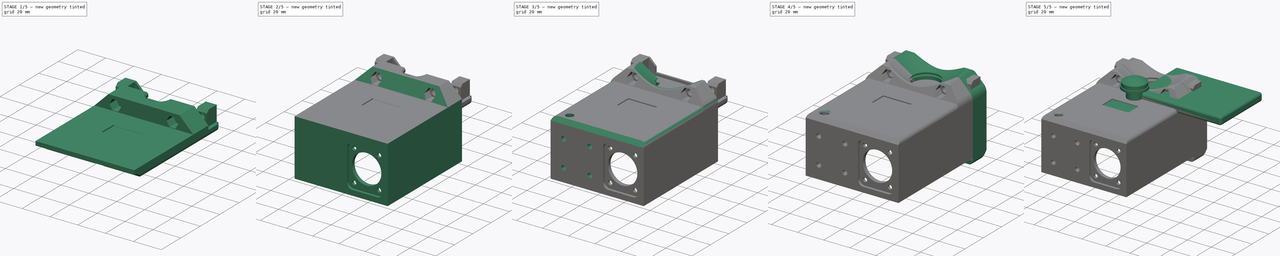
[diagram: build sequence overview — one tinted view per stage of 5, left to right]
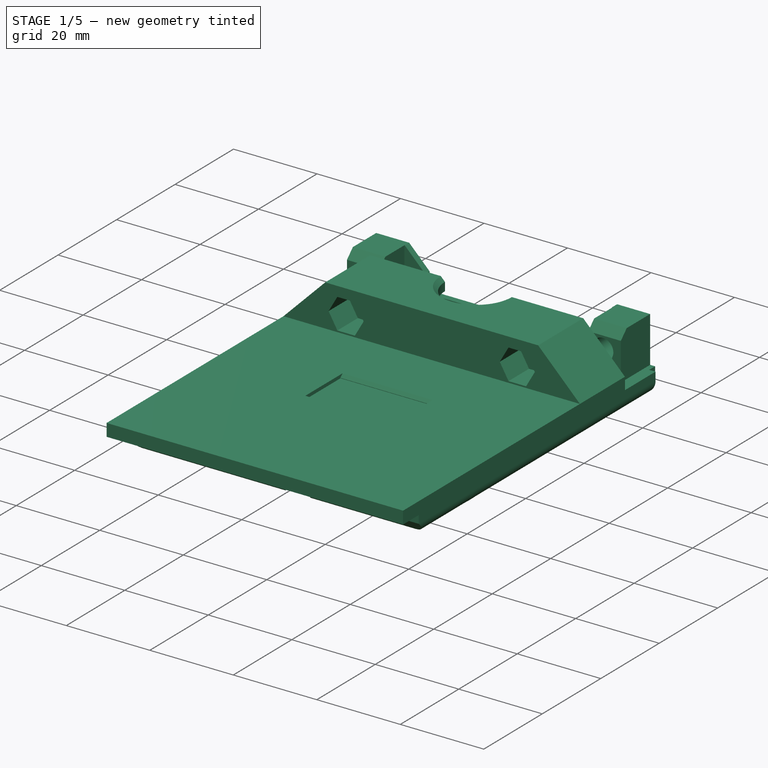
[diagram: stage 1 of 5 — iso view after this stage's code; geometry added in this stage tinted green]
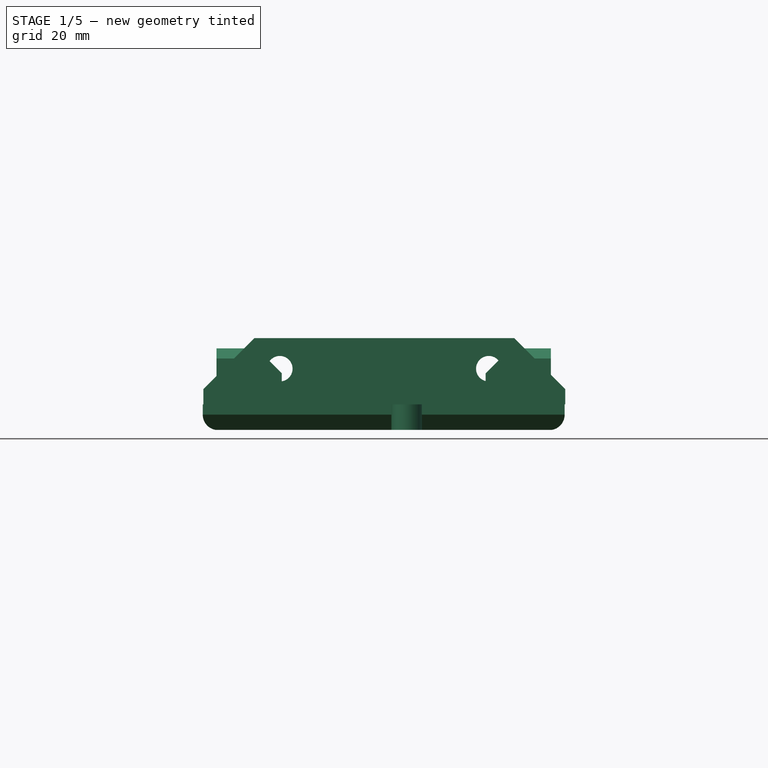
[diagram: stage 1 of 5 — front view after this stage's code; geometry added in this stage tinted green]
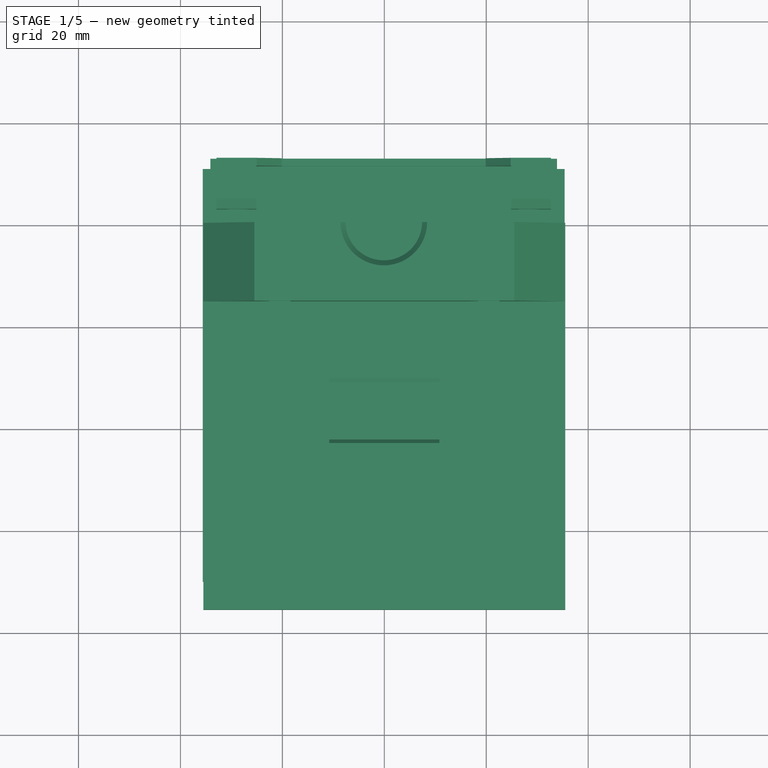
[diagram: stage 1 of 5 — top view after this stage's code; geometry added in this stage tinted green]
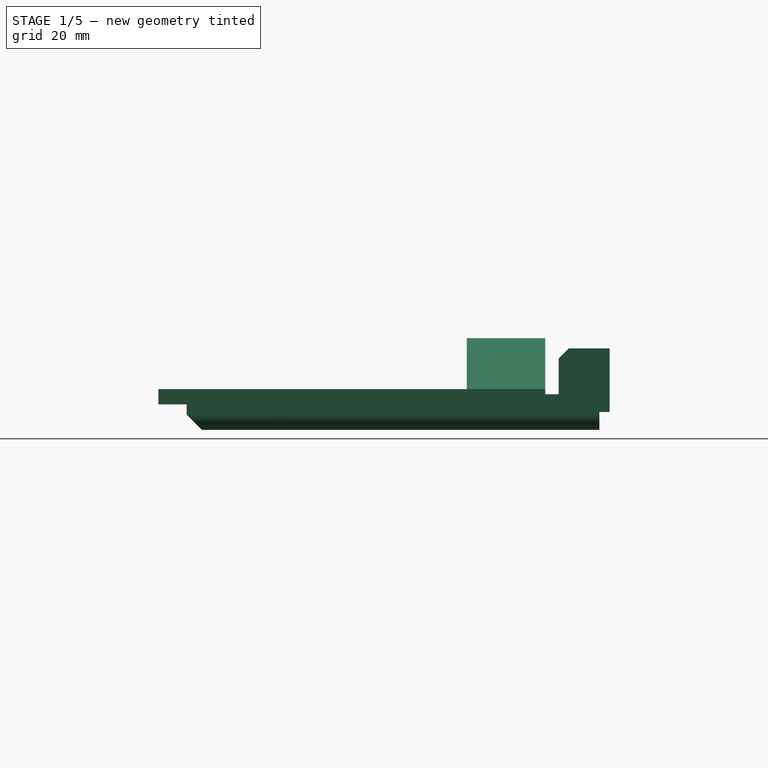
[diagram: stage 1 of 5 — right view after this stage's code; geometry added in this stage tinted green]
FCSTD DOCUMENT  (FreeCAD 0.18R4 (GitTag))
Label: SailCamMK5Casing
License: All rights reserved
LicenseURL: http://en.wikipedia.org/wiki/All_rights_reserved
objects: Part::Feature×107, Sketcher::SketchObject×103, PartDesign::Pocket×88, App::Part×87, PartDesign::Pad×62, PartDesign::Chamfer×29, PartDesign::Fillet×11, PartDesign::Body×8, PartDesign::Groove×6
note: 570 computed .brp shape members not serialized (recipe doc carries the construction recipe); baked Part::Feature solids carry a one-line shape summary decoded from their .brp

FEATURE [Part::Feature] Part__Feature  label="SOLID"
  shape: bbox 3.4 x 3.8 x 10.8 mm, 16 faces (baked)
FEATURE [App::Part] LED_D3_0mm  label="LED_D3.0mm"
  Group = -> [Part__Feature]
  Origin = -> Origin
  Placement = pos=(-15.736,23.38,2.95) rot=(1,0,0;3.14159rad)
FEATURE [Part::Feature] Part__Feature001  label="COMPOUND"
  shape: bbox 3.988 x 9.5 x 10.21 mm, 124 faces, 4 solids (baked)
FEATURE [App::Part] SS12SBP2
  Group = -> [Part__Feature001]
  Origin = -> Origin001
  Placement = pos=(23.808,-11.64,-0.55) rot=(0.57735,0.57735,-0.57735;4.18879rad)
FEATURE [Part::Feature] Part__Feature002  label="COMPOUND001"
  shape: bbox 3 x 2.552 x 1.046 mm, 59 faces, 5 solids (baked)
FEATURE [App::Part] TRAN_SS8050_G_CIP  label="TRAN_SS8050-G_CIP"
  Group = -> [Part__Feature002]
  Origin = -> Origin002
  Placement = pos=(16.268,-13.958,1.65) rot=(0,0,1;1.5708rad)
FEATURE [Part::Feature] Part__Feature003  label="COMPOUND002"
  shape: bbox 3 x 2.552 x 1.046 mm, 59 faces, 5 solids (baked)
FEATURE [App::Part] TRAN_SS8050_G_CIP001  label="TRAN_SS8050-G_CIP001"
  Group = -> [Part__Feature003]
  Origin = -> Origin003
  Placement = pos=(24.396,-13.958,1.65) rot=(0,0,-1;1.5708rad)
FEATURE [Part::Feature] Part__Feature004  label="COMPOUND003"
  shape: bbox 3.05 x 2.644 x 1.122 mm, 59 faces, 5 solids (baked)
FEATURE [App::Part] SM712_TCT_SOT23_SEM  label="SM712-TCT_SOT23_SEM"
  Group = -> [Part__Feature004]
  Origin = -> Origin004
  Placement = pos=(13.22,20.84,1.65) rot=(0,0,1;1.5708rad)
FEATURE [Part::Feature] Part__Feature005  label="COMPOUND004"
  shape: bbox 9.987 x 13.37 x 4.884 mm, 59 faces, 6 solids (baked)
FEATURE [App::Part] D2PAK3_ONS
  Group = -> [Part__Feature005]
  Origin = -> Origin005
  Placement = pos=(-2.528,5.092,-0.05) rot=(-0.707107,0.707107,0;3.14159rad)
FEATURE [Part::Feature] Part__Feature006  label="COMPOUND005"
  shape: bbox 9.987 x 13.37 x 4.884 mm, 59 faces, 6 solids (baked)
FEATURE [App::Part] D2PAK3_ONS001
  Group = -> [Part__Feature006]
  Origin = -> Origin006
  Placement = pos=(-2.528,5.092,1.65) rot=(0,0,1;1.5708rad)
FEATURE [Part::Feature] Part__Feature007  label="COMPOUND006"
  shape: bbox 2.796 x 2.898 x 1.3 mm, 87 faces, 7 solids (baked)
FEATURE [App::Part] XC6220B331MR_G_SOT_25_TOR  label="XC6220B331MR-G_SOT-25_TOR"
  Group = -> [Part__Feature007]
  Origin = -> Origin007
  Placement = pos=(-29.96,19.062,1.65) rot=(0,0,-1;1.5708rad)
FEATURE [Part::Feature] Part__Feature008  label="COMPOUND007"
  shape: bbox 5.9 x 9.4 x 4.5 mm, 133 faces, 3 solids (baked)
FEATURE [App::Part] B2B_PH_K_S_LF__SN___3DModel_STEP_56544  label="B2B-PH-K-S(LF)(SN)--3DModel-STEP-56544"
  Group = -> [Part__Feature008]
  Origin = -> Origin008
  Placement = pos=(17.808,-3.028,-3.05) rot=(-1,0,0;1.5708rad)
FEATURE [Part::Feature] Part__Feature009  label="COMPOUND008"
  shape: bbox 5.9 x 9.4 x 4.5 mm, 133 faces, 3 solids (baked)
FEATURE [App::Part] B2B_PH_K_S_LF__SN___3DModel_STEP_56544001  label="B2B-PH-K-S(LF)(SN)--3DModel-STEP-56545"
  Group = -> [Part__Feature009]
  Origin = -> Origin009
  Placement = pos=(28.722,5.33,-3.05) rot=(-0.57735,0.57735,-0.57735;2.0944rad)
FEATURE [Part::Feature] Part__Feature010  label="COMPOUND009"
  shape: bbox 5.9 x 9.4 x 4.5 mm, 133 faces, 3 solids (baked)
FEATURE [App::Part] B2B_PH_K_S_LF__SN___3DModel_STEP_56544002  label="B2B-PH-K-S(LF)(SN)--3DModel-STEP-56546"
  Group = -> [Part__Feature010]
  Origin = -> Origin010
  Placement = pos=(-21.054,28.722,-3.05) rot=(-1,0,0;1.5708rad)
FEATURE [Part::Feature] Part__Feature011  label="COMPOUND010"
  shape: bbox 9.9 x 9.4 x 4.5 mm, 227 faces, 5 solids (baked)
FEATURE [App::Part] B4B_PH_K_S_LF__SN___3DModel_STEP_56544  label="B4B-PH-K-S(LF)(SN)--3DModel-STEP-56544"
  Group = -> [Part__Feature011]
  Origin = -> Origin011
  Placement = pos=(28.722,21.268,-3.05) rot=(-0.57735,0.57735,-0.57735;2.0944rad)
FEATURE [Part::Feature] Part__Feature012  label="SOLID001"
  shape: bbox 6.128 x 6.515 x 7 mm, 49 faces (baked)
FEATURE [App::Part] CP_Radial_D5_0mm_P2_00mm  label="CP_Radial_D5.0mm_P2.00mm"
  Group = -> [Part__Feature012]
  Origin = -> Origin012
  Placement = pos=(21.094,6.362,-0.05) rot=(-0.707107,0.707107,0;3.14159rad)
FEATURE [Part::Feature] Part__Feature013  label="SOLID002"
  shape: bbox 7.174 x 6 x 7.8 mm, 105 faces (baked)
FEATURE [App::Part] SW_PUSH_6mm
  Group = -> [Part__Feature013]
  Origin = -> Origin013
  Placement = pos=(22.962,28.714,-0.05) rot=(0,1,0;3.14159rad)
FEATURE [Part::Feature] Part__Feature014  label="SOLID003"
  shape: bbox 7.174 x 6 x 7.8 mm, 105 faces (baked)
FEATURE [App::Part] SW_PUSH_6mm001
  Group = -> [Part__Feature014]
  Origin = -> Origin014
  Placement = pos=(22.922,17.698,-0.05) rot=(0,1,0;3.14159rad)
FEATURE [Part::Feature] Part__Feature015  label="COMPOUND011"
  shape: bbox 24.34 x 35.55 x 36.25 mm, 6278 faces, 0 solids (baked)
FEATURE [App::Part] UC_367_B0068___2_  label="UC-367(B0068)_(2)"
  Group = -> [Part__Feature015]
  Origin = -> Origin015
  Placement = pos=(-12.25,-5.6,-12.3) rot=(0,0,1;0rad)
FEATURE [Part::Feature] Part__Feature016  label="COMPOUND012"
  shape: bbox 20.83 x 11.15 x 2.413 mm, 148 faces, 2 solids (baked)
FEATURE [App::Part] SSQ_108_01_F_S  label="SSQ-108-01-F-S"
  Group = -> [Part__Feature016]
  Origin = -> Origin016
  Placement = pos=(0,-3.6,-0.05) rot=(-1,0,0;1.5708rad)
FEATURE [Part::Feature] Part__Feature017  label="COMPOUND013"
  shape: bbox 4 x 4.619 x 20 mm, 46 faces (baked)
FEATURE [App::Part] hex_spacer_standoff_M2_5_SW4_L12
  Group = -> [Part__Feature017]
  Origin = -> Origin017
  Placement = pos=(-10,26.4,-0.05) rot=(1,0,0;3.14159rad)
FEATURE [Part::Feature] Part__Feature018  label="COMPOUND014"
  shape: bbox 4 x 4.619 x 20 mm, 46 faces (baked)
FEATURE [App::Part] hex_spacer_standoff_M2_5_SW4_L12001  label="hex_spacer_standoff_M2_5_SW4_L013"
  Group = -> [Part__Feature018]
  Origin = -> Origin018
  Placement = pos=(10,26.4,-0.05) rot=(1,0,0;3.14159rad)
FEATURE [Part::Feature] Part__Feature019  label="SOLID004"
  shape: bbox 3.919 x 10.13 x 3.919 mm, 96 faces (baked)
FEATURE [App::Part] M2x0_8_Thread  label="M2x0.8_Thread"
  Group = -> [Part__Feature019]
  Origin = -> Origin019
  Placement = pos=(10,26.4,1.95) rot=(1,0,0;1.5708rad)
FEATURE [Part::Feature] Part__Feature020  label="SOLID005"
  shape: bbox 3.919 x 10.13 x 3.919 mm, 96 faces (baked)
FEATURE [App::Part] M2x0_8_Thread001  label="M2x0.8_Thread001"
  Group = -> [Part__Feature020]
  Origin = -> Origin020
  Placement = pos=(-10,26.4,1.95) rot=(1,0,0;1.5708rad)
FEATURE [Part::Feature] Part__Feature021  label="SOLID006"
  shape: bbox 4.588 x 4.588 x 1.769 mm, 29 faces (baked)
FEATURE [App::Part] M2_Nut_v2
  Group = -> [Part__Feature021]
  Origin = -> Origin021
  Placement = pos=(10,26.4,-15.05) rot=(1,0,0;3.14159rad)
FEATURE [Part::Feature] Part__Feature022  label="SOLID007"
  shape: bbox 4.588 x 4.588 x 1.769 mm, 29 faces (baked)
FEATURE [App::Part] M2_Nut_v2001  label="M2_Nut_v003"
  Group = -> [Part__Feature022]
  Origin = -> Origin022
  Placement = pos=(-10,26.4,-15.05) rot=(1,0,0;3.14159rad)
FEATURE [Part::Feature] Part__Feature023  label="COMPOUND015"
  shape: bbox 16 x 2.803 x 24 mm, 1669 faces, 28 solids (baked)
FEATURE [App::Part] AI_THINKER_ESP_12  label="AI-THINKER_ESP-12"
  Group = -> [Part__Feature023]
  Origin = -> Origin023
  Placement = pos=(-8,-8.3,-0.05) rot=(-1,0,0;1.5708rad)
FEATURE [Part::Feature] Part__Feature024  label="COMPOUND016"
  shape: bbox 26.71 x 27.87 x 10.86 mm, 208 faces, 4 solids (baked)
FEATURE [App::Part] OLED_128x64
  Group = -> [Part__Feature024]
  Origin = -> Origin024
  Placement = pos=(34.25,-14,4.65) rot=(0,0,1;0rad)
FEATURE [Part::Feature] Part__Feature025  label="SOLID008"
  shape: bbox 4.588 x 4.588 x 1.769 mm, 29 faces (baked)
FEATURE [App::Part] M2_Nut_v2002  label="M2_Nut_v004"
  Group = -> [Part__Feature025]
  Origin = -> Origin025
  Placement = pos=(-11.5,-7,2.65) rot=(0,0,1;3.14159rad)
FEATURE [Part::Feature] Part__Feature026  label="SOLID009"
  shape: bbox 4.588 x 4.588 x 1.769 mm, 29 faces (baked)
FEATURE [App::Part] M2_Nut_v2003  label="M2_Nut_v005"
  Group = -> [Part__Feature026]
  Origin = -> Origin026
  Placement = pos=(11.5,-7,2.65) rot=(0,0,1;3.14159rad)
FEATURE [Part::Feature] Part__Feature027  label="SOLID010"
  shape: bbox 4.588 x 4.588 x 1.769 mm, 29 faces (baked)
FEATURE [App::Part] M2_Nut_v2004  label="M2_Nut_v006"
  Group = -> [Part__Feature027]
  Origin = -> Origin027
  Placement = pos=(11.5,-30.5,2.65) rot=(0,0,1;3.14159rad)
FEATURE [Part::Feature] Part__Feature028  label="SOLID011"
  shape: bbox 4.588 x 4.588 x 1.769 mm, 29 faces (baked)
FEATURE [App::Part] M2_Nut_v2005  label="M2_Nut_v007"
  Group = -> [Part__Feature028]
  Origin = -> Origin028
  Placement = pos=(-11.5,-30.5,2.65) rot=(0,0,1;3.14159rad)
FEATURE [Part::Feature] Part__Feature029  label="SOLID012"
  shape: bbox 3.919 x 10.13 x 3.919 mm, 96 faces (baked)
FEATURE [App::Part] M2x0_8_Thread002  label="M2x0.8_Thread002"
  Group = -> [Part__Feature029]
  Origin = -> Origin029
  Placement = pos=(-11.5,-7,4.65) rot=(0,0.707107,0.707107;3.14159rad)
FEATURE [Part::Feature] Part__Feature030  label="SOLID013"
  shape: bbox 3.919 x 10.13 x 3.919 mm, 96 faces (baked)
FEATURE [App::Part] M2x0_8_Thread003  label="M2x0.8_Thread003"
  Group = -> [Part__Feature030]
  Origin = -> Origin030
  Placement = pos=(11.5,-7,4.65) rot=(0,0.707107,0.707107;3.14159rad)
FEATURE [Part::Feature] Part__Feature031  label="SOLID014"
  shape: bbox 3.919 x 10.13 x 3.919 mm, 96 faces (baked)
FEATURE [App::Part] M2x0_8_Thread004  label="M2x0.8_Thread004"
  Group = -> [Part__Feature031]
  Origin = -> Origin031
  Placement = pos=(-11.5,-30.5,4.65) rot=(0,0.707107,0.707107;3.14159rad)
FEATURE [Part::Feature] Part__Feature032  label="SOLID015"
  shape: bbox 3.919 x 10.13 x 3.919 mm, 96 faces (baked)
FEATURE [App::Part] M2x0_8_Thread005  label="M2x0.8_Thread005"
  Group = -> [Part__Feature032]
  Origin = -> Origin032
  Placement = pos=(11.5,-30.5,4.65) rot=(0,0.707107,0.707107;3.14159rad)
FEATURE [Part::Feature] Part__Feature033  label="SOLID016"
  shape: bbox 4.588 x 4.588 x 1.769 mm, 29 faces (baked)
FEATURE [App::Part] M2_Nut_v2006  label="M2_Nut_v008"
  Group = -> [Part__Feature033]
  Origin = -> Origin033
  Placement = pos=(-11.5,-7,-0.85) rot=(0,0,1;3.14159rad)
FEATURE [Part::Feature] Part__Feature034  label="SOLID017"
  shape: bbox 4.588 x 4.588 x 1.769 mm, 29 faces (baked)
FEATURE [App::Part] M2_Nut_v2007  label="M2_Nut_v009"
  Group = -> [Part__Feature034]
  Origin = -> Origin034
  Placement = pos=(11.5,-7,-0.85) rot=(0,0,1;3.14159rad)
FEATURE [Part::Feature] Part__Feature035  label="SOLID018"
  shape: bbox 4.588 x 4.588 x 1.769 mm, 29 faces (baked)
FEATURE [App::Part] M2_Nut_v2008  label="M2_Nut_v010"
  Group = -> [Part__Feature035]
  Origin = -> Origin035
  Placement = pos=(11.5,-30.5,-0.85) rot=(0,0,1;3.14159rad)
FEATURE [Part::Feature] Part__Feature036  label="SOLID019"
  shape: bbox 4.588 x 4.588 x 1.769 mm, 29 faces (baked)
FEATURE [App::Part] M2_Nut_v2009  label="M2_Nut_v011"
  Group = -> [Part__Feature036]
  Origin = -> Origin036
  Placement = pos=(-11.5,-30.5,-0.85) rot=(0,0,1;3.14159rad)
FEATURE [Part::Feature] Part__Feature037  label="SOLID020"
  shape: bbox 13.76 x 3.897 x 6.748 mm, 17 faces (baked)
FEATURE [App::Part] R_Axial_DIN0411_L9_9mm_D3_6mm_P12_70mm_Horizontal  label="R_Axial_DIN0411_L9.9mm_D3.6mm_P12.70mm_Horizontal"
  Group = -> [Part__Feature037]
  Origin = -> Origin037
  Placement = pos=(-10.656,0.266,1.65) rot=(0,0,1;1.5708rad)
FEATURE [Part::Feature] Part__Feature038  label="COMPOUND017"
  shape: bbox 11.35 x 16.2 x 4.65 mm, 23 faces, 3 solids (baked)
FEATURE [App::Part] ECS_120_20_4X  label="ECS-120-20-4X"
  Group = -> [Part__Feature038]
  Origin = -> Origin038
  Placement = pos=(26.682,-2.528,1.65) rot=(1,0,0;1.5708rad)
FEATURE [Part::Feature] Part__Feature039  label="SOLID021"
  shape: bbox 8 x 4 x 2.66 mm, 126 faces (baked)
FEATURE [App::Part] ABS25
  Group = -> [Part__Feature039]
  Origin = -> Origin039
  Placement = pos=(-27.964,8.932,1.65) rot=(0,0,1;1.5708rad)
FEATURE [Part::Feature] Part__Feature040  label="COMPOUND018"
  shape: bbox 6.2 x 9.908 x 1.757 mm, 233 faces, 18 solids (baked)
FEATURE [App::Part] MC74HC365ADG_ND_SOIC_16_ONS  label="MC74HC365ADG-ND_SOIC-16_ONS"
  Group = -> [Part__Feature040]
  Origin = -> Origin040
  Placement = pos=(-20.689,-16.244,1.65) rot=(0,0,-1;1.5708rad)
FEATURE [Part::Feature] Part__Feature041  label="SOLID022"
  shape: bbox 6 x 9.9 x 1.75 mm, 276 faces (baked)
FEATURE [App::Part] SOIC_16_3_9x9_9mm_P1_27mm  label="SOIC-16_3.9x9.9mm_P1.27mm"
  Group = -> [Part__Feature041]
  Origin = -> Origin041
  Placement = pos=(23.888,-27.166,1.65) rot=(0,0,1;0rad)
FEATURE [Part::Feature] Part__Feature042  label="COMPOUND019"
  shape: bbox 6.199 x 5.005 x 1.756 mm, 121 faces, 10 solids (baked)
FEATURE [App::Part] _1_0041B_8_MXM  label="21-0041B_8_MXM"
  Group = -> [Part__Feature042]
  Origin = -> Origin042
  Placement = pos=(10.68,11.95,1.65) rot=(0,0,1;0rad)
FEATURE [Part::Feature] Part__Feature043  label="COMPOUND020"
  shape: bbox 2.9 x 1 x 2.8 mm, 80 faces, 6 solids (baked)
FEATURE [App::Part] LTC4054ES5_4_2_TRMPBF  label="LTC4054ES5-4.2_TRMPBF"
  Group = -> [Part__Feature043]
  Origin = -> Origin043
  Placement = pos=(-24.118,22.11,2.15) rot=(0,0.707107,0.707107;3.14159rad)
FEATURE [Part::Feature] Part__Feature044  label="COMPOUND021"
  shape: bbox 6.199 x 5.005 x 1.756 mm, 121 faces, 10 solids (baked)
FEATURE [App::Part] _1_0041B_8_MXM001  label="21-0041B_8_MXM001"
  Group = -> [Part__Feature044]
  Origin = -> Origin044
  Placement = pos=(-29.264,0.332,1.65) rot=(0,0,-1;1.5708rad)
FEATURE [Part::Feature] Part__Feature045  label="COMPOUND022"
  shape: bbox 3 x 3 x 1.452 mm, 121 faces, 10 solids (baked)
FEATURE [App::Part] RJ_8_ADI  label="RJ-8_ADI"
  Group = -> [Part__Feature045]
  Origin = -> Origin045
  Placement = pos=(-15.736,12.966,1.65) rot=(0,0,-1;1.5708rad)
FEATURE [Part::Feature] Part__Feature046  label="SOLID023"
  shape: bbox 2 x 1.2 x 0.45 mm, 26 faces (baked)
FEATURE [App::Part] R_0805_2012Metric
  Group = -> [Part__Feature046]
  Origin = -> Origin046
  Placement = pos=(14.236,3.568,-0.05) rot=(0.707107,0.707107,0;3.14159rad)
FEATURE [Part::Feature] Part__Feature047  label="SOLID024"
  shape: bbox 2 x 1.2 x 0.45 mm, 26 faces (baked)
FEATURE [App::Part] R_0805_2012Metric001
  Group = -> [Part__Feature047]
  Origin = -> Origin047
  Placement = pos=(20.332,-15.228,1.65) rot=(0,0,1;3.14159rad)
FEATURE [Part::Feature] Part__Feature048  label="SOLID025"
  shape: bbox 2 x 1.2 x 0.45 mm, 26 faces (baked)
FEATURE [App::Part] R_0805_2012Metric002
  Group = -> [Part__Feature048]
  Origin = -> Origin048
  Placement = pos=(20.332,-12.688,1.65) rot=(0,0,1;0rad)
FEATURE [Part::Feature] Part__Feature049  label="SOLID026"
  shape: bbox 2 x 1.2 x 0.45 mm, 26 faces (baked)
FEATURE [App::Part] R_0805_2012Metric003
  Group = -> [Part__Feature049]
  Origin = -> Origin049
  Placement = pos=(-16.244,-3.29,1.65) rot=(0,0,1;3.14159rad)
FEATURE [Part::Feature] Part__Feature050  label="SOLID027"
  shape: bbox 2 x 1.2 x 0.45 mm, 26 faces (baked)
FEATURE [App::Part] R_0805_2012Metric004
  Group = -> [Part__Feature050]
  Origin = -> Origin050
  Placement = pos=(12.204,-24.118,-0.05) rot=(0,1,0;3.14159rad)
FEATURE [Part::Feature] Part__Feature051  label="SOLID028"
  shape: bbox 2 x 1.2 x 0.45 mm, 26 faces (baked)
FEATURE [App::Part] R_0805_2012Metric005
  Group = -> [Part__Feature051]
  Origin = -> Origin051
  Placement = pos=(12.204,-21.578,-0.05) rot=(0,1,0;3.14159rad)
FEATURE [Part::Feature] Part__Feature052  label="SOLID029"
  shape: bbox 2 x 1.2 x 0.45 mm, 26 faces (baked)
FEATURE [App::Part] R_0805_2012Metric006
  Group = -> [Part__Feature052]
  Origin = -> Origin052
  Placement = pos=(-14.466,-22.848,-0.05) rot=(-0.707107,0.707107,0;3.14159rad)
FEATURE [Part::Feature] Part__Feature053  label="SOLID030"
  shape: bbox 2 x 1.2 x 0.45 mm, 26 faces (baked)
FEATURE [App::Part] R_0805_2012Metric007
  Group = -> [Part__Feature053]
  Origin = -> Origin053
  Placement = pos=(-11.418,-18.53,-0.05) rot=(-0.707107,0.707107,0;3.14159rad)
FEATURE [Part::Feature] Part__Feature054  label="SOLID031"
  shape: bbox 2 x 1.2 x 0.45 mm, 26 faces (baked)
FEATURE [App::Part] R_0805_2012Metric008
  Group = -> [Part__Feature054]
  Origin = -> Origin054
  Placement = pos=(11.442,-12.688,-0.05) rot=(-0.707107,0.707107,0;3.14159rad)
FEATURE [Part::Feature] Part__Feature055  label="SOLID032"
  shape: bbox 2 x 1.2 x 0.45 mm, 26 faces (baked)
FEATURE [App::Part] R_0805_2012Metric009
  Group = -> [Part__Feature055]
  Origin = -> Origin055
  Placement = pos=(11.442,-17.006,-0.05) rot=(0.707107,0.707107,0;3.14159rad)
FEATURE [Part::Feature] Part__Feature056  label="SOLID033"
  shape: bbox 2 x 1.2 x 0.45 mm, 26 faces (baked)
FEATURE [App::Part] R_0805_2012Metric010
  Group = -> [Part__Feature056]
  Origin = -> Origin056
  Placement = pos=(13.22,24.142,1.65) rot=(0,0,1;0rad)
FEATURE [Part::Feature] Part__Feature057  label="SOLID034"
  shape: bbox 2 x 1.2 x 0.45 mm, 26 faces (baked)
FEATURE [App::Part] R_0805_2012Metric011
  Group = -> [Part__Feature057]
  Origin = -> Origin057
  Placement = pos=(19.316,22.11,1.65) rot=(0,0,1;3.14159rad)
FEATURE [Part::Feature] Part__Feature058  label="SOLID035"
  shape: bbox 2 x 1.2 x 0.45 mm, 26 faces (baked)
FEATURE [App::Part] R_0805_2012Metric012
  Group = -> [Part__Feature058]
  Origin = -> Origin058
  Placement = pos=(13.22,17.538,1.65) rot=(0,0,1;0rad)
FEATURE [Part::Feature] Part__Feature059  label="SOLID036"
  shape: bbox 2 x 1.2 x 0.45 mm, 26 faces (baked)
FEATURE [App::Part] R_0805_2012Metric013
  Group = -> [Part__Feature059]
  Origin = -> Origin059
  Placement = pos=(19.316,19.57,1.65) rot=(0,0,1;3.14159rad)
FEATURE [Part::Feature] Part__Feature060  label="SOLID037"
  shape: bbox 2 x 1.2 x 0.45 mm, 26 faces (baked)
FEATURE [App::Part] R_0805_2012Metric014
  Group = -> [Part__Feature060]
  Origin = -> Origin060
  Placement = pos=(19.316,15.76,1.65) rot=(0,0,1;3.14159rad)
FEATURE [Part::Feature] Part__Feature061  label="SOLID038"
  shape: bbox 2 x 1.2 x 0.45 mm, 26 faces (baked)
FEATURE [App::Part] R_0805_2012Metric015
  Group = -> [Part__Feature061]
  Origin = -> Origin061
  Placement = pos=(11.442,7.378,1.65) rot=(0,0,1;3.14159rad)
FEATURE [Part::Feature] Part__Feature062  label="SOLID039"
  shape: bbox 2 x 1.2 x 0.45 mm, 26 faces (baked)
FEATURE [App::Part] R_0805_2012Metric016
  Group = -> [Part__Feature062]
  Origin = -> Origin062
  Placement = pos=(-19.8,20.84,1.65) rot=(0,0,1;3.14159rad)
FEATURE [Part::Feature] Part__Feature063  label="SOLID040"
  shape: bbox 2 x 1.2 x 0.45 mm, 26 faces (baked)
FEATURE [App::Part] R_0805_2012Metric017
  Group = -> [Part__Feature063]
  Origin = -> Origin063
  Placement = pos=(-19.8,23.38,1.65) rot=(0,0,1;0rad)
FEATURE [Part::Feature] Part__Feature064  label="SOLID041"
  shape: bbox 2 x 1.2 x 0.45 mm, 26 faces (baked)
FEATURE [App::Part] R_0805_2012Metric018
  Group = -> [Part__Feature064]
  Origin = -> Origin064
  Placement = pos=(-22.34,2.806,1.65) rot=(0,0,1;3.14159rad)
FEATURE [Part::Feature] Part__Feature065  label="SOLID042"
  shape: bbox 2 x 1.2 x 0.45 mm, 26 faces (baked)
FEATURE [App::Part] R_0805_2012Metric019
  Group = -> [Part__Feature065]
  Origin = -> Origin065
  Placement = pos=(-22.34,-0.496,1.65) rot=(0,0,1;3.14159rad)
FEATURE [Part::Feature] Part__Feature066  label="SOLID043"
  shape: bbox 2 x 1.2 x 0.45 mm, 26 faces (baked)
FEATURE [App::Part] R_0805_2012Metric020
  Group = -> [Part__Feature066]
  Origin = -> Origin066
  Placement = pos=(-22.34,-4.052,1.65) rot=(0,0,1;3.14159rad)
FEATURE [Part::Feature] Part__Feature067  label="SOLID044"
  shape: bbox 2 x 1.2 x 0.45 mm, 26 faces (baked)
FEATURE [App::Part] R_0805_2012Metric021
  Group = -> [Part__Feature067]
  Origin = -> Origin067
  Placement = pos=(-15.736,9.156,1.65) rot=(0,0,1;3.14159rad)
FEATURE [Part::Feature] Part__Feature068  label="SOLID045"
  shape: bbox 2 x 1.2 x 0.45 mm, 26 faces (baked)
FEATURE [App::Part] R_0805_2012Metric022
  Group = -> [Part__Feature068]
  Origin = -> Origin068
  Placement = pos=(-20.308,11.696,1.65) rot=(0,0,1;0rad)
FEATURE [Part::Feature] Part__Feature069  label="SOLID046"
  shape: bbox 2 x 1.2 x 0.45 mm, 26 faces (baked)
FEATURE [App::Part] R_0805_2012Metric023
  Group = -> [Part__Feature069]
  Origin = -> Origin069
  Placement = pos=(-17.768,16.522,1.65) rot=(0,0,1;0rad)
FEATURE [Part::Feature] Part__Feature070  label="SOLID047"
  shape: bbox 2 x 1.2 x 0.45 mm, 26 faces (baked)
FEATURE [App::Part] R_0805_2012Metric024
  Group = -> [Part__Feature070]
  Origin = -> Origin070
  Placement = pos=(-12.942,16.522,1.65) rot=(0,0,1;3.14159rad)
FEATURE [Part::Feature] Part__Feature071  label="COMPOUND023"
  shape: bbox 13.85 x 17.55 x 1.83 mm, 1119 faces, 2 solids (baked)
FEATURE [App::Part] dm3bt_dsf_pejs  label="dm3bt-dsf-pejs"
  Group = -> [Part__Feature071]
  Origin = -> Origin071
  Placement = pos=(168.39,-187.105,-1.7) rot=(0,1,0;3.14159rad)
FEATURE [Part::Feature] Part__Feature072  label="COMPOUND024"
  shape: bbox 12.82 x 13.84 x 16 mm, 444 faces, 12 solids (baked)
FEATURE [App::Part] _1729_1011BLF  label="61729-1011BLF"
  Group = -> [Part__Feature072]
  Origin = -> Origin072
  Placement = pos=(23.87,-32.5,-5.8) rot=(0,0.707107,-0.707107;3.14159rad)
FEATURE [Part::Feature] Part__Feature073  label="SOLID048"
  shape: bbox 2 x 1.25 x 1.25 mm, 28 faces (baked)
FEATURE [App::Part] C_0805_2012Metric
  Group = -> [Part__Feature073]
  Origin = -> Origin073
  Placement = pos=(-16.752,-21.832,1.65) rot=(0,0,1;3.14159rad)
FEATURE [Part::Feature] Part__Feature074  label="SOLID049"
  shape: bbox 2 x 1.25 x 1.25 mm, 28 faces (baked)
FEATURE [App::Part] C_0805_2012Metric001
  Group = -> [Part__Feature074]
  Origin = -> Origin074
  Placement = pos=(-11.418,-10.91,-0.05) rot=(-0.707107,0.707107,0;3.14159rad)
FEATURE [Part::Feature] Part__Feature075  label="SOLID050"
  shape: bbox 2 x 1.25 x 1.25 mm, 28 faces (baked)
FEATURE [App::Part] C_0805_2012Metric002
  Group = -> [Part__Feature075]
  Origin = -> Origin075
  Placement = pos=(17.792,-27.674,1.65) rot=(0,0,-1;1.5708rad)
FEATURE [Part::Feature] Part__Feature076  label="SOLID051"
  shape: bbox 2 x 1.25 x 1.25 mm, 28 faces (baked)
FEATURE [App::Part] C_0805_2012Metric003
  Group = -> [Part__Feature076]
  Origin = -> Origin076
  Placement = pos=(-11.418,-22.848,-0.05) rot=(0.707107,0.707107,0;3.14159rad)
FEATURE [Part::Feature] Part__Feature077  label="SOLID052"
  shape: bbox 2 x 1.25 x 1.25 mm, 28 faces (baked)
FEATURE [App::Part] C_0805_2012Metric004
  Group = -> [Part__Feature077]
  Origin = -> Origin077
  Placement = pos=(16.522,-18.276,1.65) rot=(0,0,-1;1.5708rad)
FEATURE [Part::Feature] Part__Feature078  label="SOLID053"
  shape: bbox 2 x 1.25 x 1.25 mm, 28 faces (baked)
FEATURE [App::Part] C_0805_2012Metric005
  Group = -> [Part__Feature078]
  Origin = -> Origin078
  Placement = pos=(28.714,1.282,1.65) rot=(0,0,1;3.14159rad)
FEATURE [Part::Feature] Part__Feature079  label="SOLID054"
  shape: bbox 2 x 1.25 x 1.25 mm, 28 faces (baked)
FEATURE [App::Part] C_0805_2012Metric006
  Group = -> [Part__Feature079]
  Origin = -> Origin079
  Placement = pos=(24.65,1.282,1.65) rot=(0,0,1;0rad)
FEATURE [Part::Feature] Part__Feature080  label="SOLID055"
  shape: bbox 2 x 1.25 x 1.25 mm, 28 faces (baked)
FEATURE [App::Part] C_0805_2012Metric007
  Group = -> [Part__Feature080]
  Origin = -> Origin080
  Placement = pos=(-27.928,15.252,1.65) rot=(0,0,1;0rad)
FEATURE [Part::Feature] Part__Feature081  label="SOLID056"
  shape: bbox 2 x 1.25 x 1.25 mm, 28 faces (baked)
FEATURE [App::Part] C_0805_2012Metric008
  Group = -> [Part__Feature081]
  Origin = -> Origin081
  Placement = pos=(-29.452,22.872,1.65) rot=(0,0,1;0rad)
FEATURE [Part::Feature] Part__Feature082  label="SOLID057"
  shape: bbox 2 x 1.25 x 1.25 mm, 28 faces (baked)
FEATURE [App::Part] C_0805_2012Metric009
  Group = -> [Part__Feature082]
  Origin = -> Origin082
  Placement = pos=(-24.626,18.3,1.65) rot=(0,0,1;0rad)
FEATURE [Part::Feature] Part__Feature083  label="SOLID058"
  shape: bbox 2 x 1.25 x 1.25 mm, 28 faces (baked)
FEATURE [App::Part] C_0805_2012Metric010
  Group = -> [Part__Feature083]
  Origin = -> Origin083
  Placement = pos=(10.68,3.568,1.65) rot=(0,0,-1;1.5708rad)
FEATURE [Part::Feature] Part__Feature084  label="COMPOUND025"
  shape: bbox 31.86 x 5.201 x 16 mm, 242 faces, 3 solids (baked)
FEATURE [App::Part] BU2032SM_BT_GTR  label="BU2032SM-BT-GTR"
  Group = -> [Part__Feature084]
  Origin = -> Origin084
  Placement = pos=(-20.6,6.5,-0.05) rot=(0.57735,0.57735,-0.57735;4.18879rad)
FEATURE [Part::Feature] Part__Feature085  label="SOLID059"
  shape: bbox 21.65 x 3.2 x 21.65 mm, 848 faces (baked)
FEATURE [App::Part] _032_Battery  label="2032_Battery"
  Group = -> [Part__Feature085]
  Origin = -> Origin085
  Placement = pos=(-20.6,6.5,-1.55) rot=(0.57735,0.57735,-0.57735;4.18879rad)
FEATURE [Part::Feature] Part__Feature086  label="COMPOUND026"
  shape: bbox 65 x 65 x 1.6 mm, 64 faces (baked)
FEATURE [App::Part] Open_CASCADE_STEP_translator_6_9_1  label="Open CASCADE STEP translator 6.9 1"
  Group = -> [LED_D3_0mm,SS12SBP2,TRAN_SS8050_G_CIP,TRAN_SS8050_G_CIP001,SM712_TCT_SOT23_SEM,D2PAK3_ONS,D2PAK3_ONS001,XC6220B331MR_G_SOT_25_TOR,B2B_PH_K_S_LF__SN___3DModel_STEP_56544,B2B_PH_K_S_LF__SN___3DModel_STEP_56544001,B2B_PH_K_S_LF__SN___3DModel_STEP_56544002,B4B_PH_K_S_LF__SN___3DModel_STEP_56544,CP_Radial_D5_0mm_P2_00mm,SW_PUSH_6mm,SW_PUSH_6mm001,UC_367_B0068___2_,SSQ_108_01_F_S,+70 more]
  Origin = -> Origin086
  Placement = pos=(0,0,-0.8) rot=(0,0,1;0rad)
FEATURE [Sketcher::SketchObject] Sketch
  MapMode = 5
  Support = -> [XY_Plane087]
  sketch-geometry (4):
    g0: LineSegment StartX=-35.5 StartY=35.5 StartZ=0 EndX=35.5 EndY=35.5 EndZ=0
    g1: LineSegment StartX=35.5 StartY=35.5 StartZ=0 EndX=35.5 EndY=-35.5 EndZ=0
    g2: LineSegment StartX=35.5 StartY=-35.5 StartZ=0 EndX=-35.5 EndY=-35.5 EndZ=0
    g3: LineSegment StartX=-35.5 StartY=-35.5 StartZ=0 EndX=-35.5 EndY=35.5 EndZ=0
  constraints (12):
    c: Coincident(g0,g1)
    c: Coincident(g1,g2)
    c: Coincident(g2,g3)
    c: Coincident(g3,g0)
    c: Horizontal(g0)
    c: Horizontal(g2)
    c: Vertical(g1)
    c: Vertical(g3)
    c: Distance(g0) = 71
    c: Distance(g1) = 71
    c: Distance(g1,g-1) = 35.5
    c: Distance(g1,g-2) = 35.5
FEATURE [PartDesign::Pad] Pad
  Length = 3
  Length2 = 100
  Profile = -> Sketch
  Type = 0
FEATURE [Sketcher::SketchObject] Sketch001
  MapMode = 5
  Placement = pos=(0,0,3) rot=(0,0,1;0rad)
  Support = -> [Pad]
  sketch-geometry (4):
    g0: LineSegment StartX=-10.8 StartY=-10.8 StartZ=0 EndX=10.8 EndY=-10.8 EndZ=0
    g1: LineSegment StartX=10.8 StartY=-10.8 StartZ=0 EndX=10.8 EndY=-22.1 EndZ=0
    g2: LineSegment StartX=10.8 StartY=-22.1 StartZ=0 EndX=-10.8 EndY=-22.1 EndZ=0
    g3: LineSegment StartX=-10.8 StartY=-22.1 StartZ=0 EndX=-10.8 EndY=-10.8 EndZ=0
  constraints (12):
    c: Coincident(g0,g1)
    c: Coincident(g1,g2)
    c: Coincident(g2,g3)
    c: Coincident(g3,g0)
    c: Horizontal(g0)
    c: Horizontal(g2)
    c: Vertical(g1)
    c: Vertical(g3)
    c: Distance(g1) = 11.3
    c: Distance(g0) = 21.6
    c: Distance(g0,g-2) = 10.8
    c: Distance(g0,g-1) = 10.8
FEATURE [PartDesign::Pocket] Pocket
  BaseFeature = -> Pad
  Length = 5
  Length2 = 100
  Profile = -> Sketch001
  Type = 0
FEATURE [Sketcher::SketchObject] Sketch002
  ExternalGeometry = -> [Pocket]
  MapMode = 5
  Placement = pos=(0,0,3) rot=(0,0,1;0rad)
  Support = -> [Pocket]
  sketch-geometry (1):
    g0: Circle CenterX=-0.1 CenterY=20.4 CenterZ=0 NormalX=0 NormalY=0 NormalZ=1 AngleXU=0 Radius=7.25
  constraints (3):
    c: Diameter(g0) = 14.5
    c: Distance(g0,g-1) = 20.4
    c: Distance(g0,g-3) = 35.6
FEATURE [PartDesign::Pocket] Pocket001
  BaseFeature = -> Pocket
  Length = 5
  Length2 = 100
  Profile = -> Sketch002
  Type = 0
FEATURE [Sketcher::SketchObject] Sketch003
  ExternalGeometry = -> [Pocket001]
  MapMode = 5
  Placement = pos=(0,0,0) rot=(1,0,0;3.14159rad)
  Support = -> [Pocket001]
  sketch-geometry (4):
    g0: LineSegment StartX=-15 StartY=26.45 StartZ=0 EndX=15 EndY=26.45 EndZ=0
    g1: LineSegment StartX=15 StartY=26.45 StartZ=0 EndX=15 EndY=6.45 EndZ=0
    g2: LineSegment StartX=15 StartY=6.45 StartZ=0 EndX=-15 EndY=6.45 EndZ=0
    g3: LineSegment StartX=-15 StartY=6.45 StartZ=0 EndX=-15 EndY=26.45 EndZ=0
  constraints (14):
    c: Coincident(g0,g1)
    c: Coincident(g1,g2)
    c: Coincident(g2,g3)
    c: Coincident(g3,g0)
    c: Horizontal(g0)
    c: Horizontal(g2)
    c: Vertical(g1)
    c: Vertical(g3)
    c: Distance(g-3) = 21.6
    c: Distance(g-4) = 11.3
    c: Distance(g0) = 30
    c: Distance(g1) = 20
    c: Distance(g1,g-2) = 15
    c: Distance(g0,g-3) = 4.35
FEATURE [PartDesign::Pocket] Pocket002
  BaseFeature = -> Pocket001
  Length = 2.2
  Length2 = 100
  Profile = -> Sketch003
  Type = 0
FEATURE [PartDesign::Chamfer] Chamfer
  Base = -> Pocket002 [Edge21,Edge18]
  BaseFeature = -> Pocket002
  Size = 0.7
FEATURE [PartDesign::Body] Body001  label="Plexiglass"
  Group = -> [Sketch004,Pad001]
  Origin = -> Origin088
  Placement = pos=(0,0,6) rot=(0,0,1;0rad)
  Tip = -> Pad001
FEATURE [Sketcher::SketchObject] Sketch005
  ExternalGeometry = -> [Chamfer]
  MapMode = 5
  Placement = pos=(0,0,3) rot=(0,0,1;0rad)
  Support = -> [Chamfer]
  sketch-geometry (4):
    g0: LineSegment StartX=-35.5 StartY=35.5 StartZ=0 EndX=35.5 EndY=35.5 EndZ=0
    g1: LineSegment StartX=35.5 StartY=35.5 StartZ=0 EndX=35.5 EndY=20.5 EndZ=0
    g2: LineSegment StartX=35.5 StartY=20.5 StartZ=0 EndX=-35.5 EndY=20.5 EndZ=0
    g3: LineSegment StartX=-35.5 StartY=20.5 StartZ=0 EndX=-35.5 EndY=35.5 EndZ=0
  constraints (11):
    c: Coincident(g0,g1)
    c: Coincident(g1,g2)
    c: Coincident(g2,g3)
    c: Coincident(g3,g0)
    c: Horizontal(g0)
    c: Horizontal(g2)
    c: Vertical(g1)
    c: Vertical(g3)
    c: Distance(g0) = 71
    c: Coincident(g0,g-4)
    c: Distance(g1) = 15
FEATURE [PartDesign::Pocket] Pocket003
  BaseFeature = -> Chamfer
  Length = 5
  Length2 = 100
  Profile = -> Sketch005
  Type = 0
FEATURE [PartDesign::Body] Body003  label="Battery"
  Group = -> [Sketch010,Pad005,Fillet]
  Origin = -> Origin090
  Placement = pos=(-25,21.01,-36) rot=(0,0,-1;1.5708rad)
  Tip = -> Fillet
FEATURE [Part::Feature] Part__Feature087  label="PowerConnector"
  Placement = pos=(4.8,-62.5,1.6) rot=(-1,0,0;1.5708rad)
  shape: bbox 27.16 x 29 x 32.53 mm, 106 faces (baked)
FEATURE [Part::Feature] Part__Feature088  label="RubberGasket_20mm"
  Placement = pos=(-0.1,20.5,11) rot=(0,0,1;0rad)
  shape: bbox 21.65 x 21.65 x 2.5 mm, 8 faces (baked)
FEATURE [Sketcher::SketchObject] Sketch011
  ExternalGeometry = -> [Pocket003]
  MapMode = 5
  Placement = pos=(0,0,3) rot=(0,0,1;0rad)
  Support = -> [Pocket003]
  sketch-geometry (5):
    g0: Circle CenterX=-0.1 CenterY=20.4 CenterZ=0 NormalX=0 NormalY=0 NormalZ=1 AngleXU=0 Radius=10.25
    g1: LineSegment StartX=-35.5 StartY=5 StartZ=0 EndX=35.5 EndY=5 EndZ=0
    g2: LineSegment StartX=35.5 StartY=5 StartZ=0 EndX=35.5 EndY=32 EndZ=0
    g3: LineSegment StartX=35.5 StartY=32 StartZ=0 EndX=-35.5 EndY=32 EndZ=0
    g4: LineSegment StartX=-35.5 StartY=32 StartZ=0 EndX=-35.5 EndY=5 EndZ=0
  constraints (14):
    c: Coincident(g0,g-3)
    c: Diameter(g0) = 20.5
    c: Coincident(g1,g2)
    c: Coincident(g2,g3)
    c: Coincident(g3,g4)
    c: Coincident(g4,g1)
    c: Horizontal(g1)
    c: Horizontal(g3)
    c: Vertical(g2)
    c: Vertical(g4)
    c: Distance(g1) = 71
    c: Distance(g1,g-2) = 35.5
    c: Distance(g1,g-1) = 5
    c: Distance(g2) = 27
FEATURE [PartDesign::Pad] Pad006
  BaseFeature = -> Pocket003
  Length = 10
  Length2 = 100
  Profile = -> Sketch011
  Type = 0
FEATURE [Sketcher::SketchObject] Sketch012
  ExternalGeometry = -> [Pad006]
  MapMode = 5
  Placement = pos=(0,0,13) rot=(0,0,1;0rad)
  Support = -> [Pad006]
  sketch-geometry (2):
    g0: Circle CenterX=-0.1 CenterY=20.4 CenterZ=0 NormalX=0 NormalY=0 NormalZ=1 AngleXU=0 Radius=7.5
    g1: Circle CenterX=-0.1 CenterY=20.4 CenterZ=0 NormalX=0 NormalY=0 NormalZ=1 AngleXU=0 Radius=12.5
  constraints (4):
    c: Coincident(g1,g-3)
    c: Coincident(g0,g1)
    c: Diameter(g0) = 15
    c: Diameter(g1) = 25
FEATURE [PartDesign::Pad] Pad007
  BaseFeature = -> Pad006
  Length = 3
  Length2 = 100
  Profile = -> Sketch012
  Refine = true
  Reversed = true
  Type = 0
FEATURE [PartDesign::Chamfer] Chamfer001
  Base = -> Pad007 [Edge76]
  BaseFeature = -> Pad007
  Size = 1
FEATURE [Sketcher::SketchObject] Sketch013
  ExternalGeometry = -> [Chamfer001]
  MapMode = 5
  Placement = pos=(0,0,13) rot=(0,0,1;0rad)
  Support = -> [Chamfer001]
  sketch-geometry (4):
    g0: LineSegment StartX=-37.9702 StartY=20.4 StartZ=0 EndX=39.1578 EndY=20.4 EndZ=0
    g1: LineSegment StartX=39.1578 StartY=20.4 StartZ=0 EndX=39.1578 EndY=37.1063 EndZ=0
    g2: LineSegment StartX=39.1578 StartY=37.1063 StartZ=0 EndX=-37.9702 EndY=37.1063 EndZ=0
    g3: LineSegment StartX=-37.9702 StartY=37.1063 StartZ=0 EndX=-37.9702 EndY=20.4 EndZ=0
  constraints (9):
    c: Coincident(g0,g1)
    c: Coincident(g1,g2)
    c: Coincident(g2,g3)
    c: Coincident(g3,g0)
    c: Horizontal(g0)
    c: Horizontal(g2)
    c: Vertical(g1)
    c: Vertical(g3)
    c: Distance(g0,g-4) = 15.4
FEATURE [PartDesign::Pocket] Pocket005
  BaseFeature = -> Chamfer001
  Length = 19
  Length2 = 100
  Profile = -> Sketch013
  Type = 0
FEATURE [Sketcher::SketchObject] Sketch019
  ExternalGeometry = -> [Pocket005]
  MapMode = 5
  Placement = pos=(0,5,0) rot=(1,0,0;1.5708rad)
  Support = -> [Pocket005]
  sketch-geometry (2):
    g0: Circle CenterX=-20.5 CenterY=7 CenterZ=0 NormalX=0 NormalY=0 NormalZ=1 AngleXU=0 Radius=2.5
    g1: Circle CenterX=20.5 CenterY=7 CenterZ=0 NormalX=0 NormalY=0 NormalZ=1 AngleXU=0 Radius=2.5
  constraints (6):
    c: Distance(g1,g-3) = 6
    c: Distance(g0,g-3) = 6
    c: Distance(g0,g-5) = 15
    c: Distance(g1,g-4) = 15
    c: Diameter(g1) = 5
    c: Diameter(g0) = 5
FEATURE [PartDesign::Pocket] Pocket009
  BaseFeature = -> Pocket005
  Length = 17
  Length2 = 100
  Profile = -> Sketch019
  Type = 0
FEATURE [Sketcher::SketchObject] Sketch020
  ExternalGeometry = -> [Pocket009]
  MapMode = 5
  Placement = pos=(0,5,0) rot=(1,0,0;1.5708rad)
  Support = -> [Pocket009]
  sketch-geometry (14):
    g0: LineSegment StartX=22.5953 StartY=10.64 StartZ=0 EndX=18.3953 EndY=10.6346 EndZ=0
    g1: LineSegment StartX=18.3953 StartY=10.6346 StartZ=0 EndX=16.3 EndY=6.99461 EndZ=0
    g2: LineSegment StartX=16.3 StartY=6.99461 StartZ=0 EndX=18.4047 EndY=3.36 EndZ=0
    g3: LineSegment StartX=18.4047 StartY=3.36 StartZ=0 EndX=22.6047 EndY=3.36539 EndZ=0
    g4: LineSegment StartX=22.6047 StartY=3.36539 StartZ=0 EndX=24.7 EndY=7.00539 EndZ=0
    g5: LineSegment StartX=24.7 StartY=7.00539 StartZ=0 EndX=22.5953 EndY=10.64 EndZ=0
    g6: Circle [constr] CenterX=20.5 CenterY=7 CenterZ=0 NormalX=0 NormalY=0 NormalZ=1 AngleXU=0 Radius=4.2
    g7: LineSegment StartX=-16.3 StartY=7.00539 StartZ=0 EndX=-18.4047 EndY=10.64 EndZ=0
    g8: LineSegment StartX=-18.4047 StartY=10.64 StartZ=0 EndX=-22.6047 EndY=10.6346 EndZ=0
    g9: LineSegment StartX=-22.6047 StartY=10.6346 StartZ=0 EndX=-24.7 EndY=6.99461 EndZ=0
    g10: LineSegment StartX=-24.7 StartY=6.99461 StartZ=0 EndX=-22.5953 EndY=3.36 EndZ=0
    g11: LineSegment StartX=-22.5953 StartY=3.36 StartZ=0 EndX=-18.3953 EndY=3.36539 EndZ=0
    g12: LineSegment StartX=-18.3953 StartY=3.36539 StartZ=0 EndX=-16.3 EndY=7.00539 EndZ=0
    g13: Circle [constr] CenterX=-20.5 CenterY=7 CenterZ=0 NormalX=0 NormalY=0 NormalZ=1 AngleXU=0 Radius=4.2
  constraints (32):
    c: Coincident(g0,g1)
    c: Coincident(g1,g2)
    c: Coincident(g2,g3)
    c: Coincident(g3,g4)
    c: Coincident(g4,g5)
    c: Coincident(g5,g0)
    c: Equal(g0, g1-g5) x5
    c: PointOnObject(g0,g6)
    c: PointOnObject(g1,g6)
    c: PointOnObject(g2,g6)
    c: PointOnObject(g3,g6)
    c: PointOnObject(g4,g6)
    c: PointOnObject(g5,g6)
    c: Coincident(g6,g-3)
    c: Distance(g0) = 4.2
    c: Distance(g0,g-5) = 2.36
    c: Coincident(g7,g8)
    c: Coincident(g8,g9)
    c: Coincident(g9,g10)
    c: Coincident(g10,g11)
    c: Coincident(g11,g12)
    c: Coincident(g12,g7)
    c: Equal(g7, g8-g12) x5
    c: PointOnObject(g7,g13)
    c: PointOnObject(g8,g13)
    c: PointOnObject(g9,g13)
    c: PointOnObject(g10,g13)
    c: PointOnObject(g11,g13)
    c: PointOnObject(g12,g13)
    c: Coincident(g13,g-4)
    c: Distance(g8) = 4.2
    c: Distance(g7,g-5) = 2.36
FEATURE [PartDesign::Pocket] Pocket010
  BaseFeature = -> Pocket009
  Length = 6
  Length2 = 100
  Profile = -> Sketch020
  Type = 0
FEATURE [PartDesign::Chamfer] Chamfer004
  Base = -> Pocket010 [Edge25,Edge27]
  BaseFeature = -> Pocket010
  Size = 10
FEATURE [Part::Feature] Part__Feature090  label="M4_24mm"
  Placement = pos=(-20.5,8.6,13) rot=(-1,0,0;1.5708rad)
  shape: bbox 7.577 x 26.5 x 7.577 mm, 28 faces (baked)
FEATURE [Part::Feature] Part__Feature091  label="M4_24mm001"
  Placement = pos=(20.5,8.6,13) rot=(-1,0,0;1.5708rad)
  shape: bbox 7.577 x 26.5 x 7.577 mm, 28 faces (baked)
FEATURE [PartDesign::Pocket] Pocket011
  BaseFeature = -> Chamfer004
  Length = 1
  Length2 = 100
  Profile = -> Chamfer004 [Face42]
  Type = 0
FEATURE [PartDesign::Pocket] Pocket012
  BaseFeature = -> Pocket011
  Length = 1
  Length2 = 100
  Profile = -> Pocket011 [Face23]
  Refine = true
  Type = 0
FEATURE [Part::Feature] Part__Feature092  label="M4_Nut"
  Placement = pos=(20.5,11.9,13) rot=(1,0,0;1.5708rad)
  shape: bbox 8 x 3 x 6.943 mm, 21 faces (baked)
FEATURE [Part::Feature] Part__Feature093  label="M4_Nut001"
  Placement = pos=(-20.5,12,13) rot=(1,0,0;1.5708rad)
  shape: bbox 8 x 3 x 6.943 mm, 21 faces (baked)
FEATURE [PartDesign::Pad] Pad010
  BaseFeature = -> Pocket012
  Length = 20
  Length2 = 100
  Profile = -> Pocket012 [Face17]
  Refine = true
  Type = 0
FEATURE [PartDesign::Body] Body  label="Bottom"
  Group = -> [Sketch,Pad,Sketch001,Pocket,Sketch002,Pocket001,Sketch003,Pocket002,Chamfer,Sketch005,Pocket003,Sketch011,Pad006,Sketch012,Pad007,Chamfer001,Sketch013,Pocket005,Sketch019,Pocket009,Sketch020,Pocket010,Chamfer004,Pocket011,Pocket012,Pad010,Sketch021,Pad011,Sketch022,Pad012,Sketch023,Pocket013,Sketch024,Pocket014,Fillet001,Sketch025,Pocket015,Sketch026,Pocket016,Pad013,Sketch027,Pocket017,Sketch030,+101 more]
  Origin = -> Origin087
  Placement = pos=(0,0.15,6) rot=(0,0,1;0rad)
  Tip = -> Chamfer025
FEATURE [Sketcher::SketchObject] Sketch094
  MapMode = 5
  Support = -> [XY_Plane094]
  sketch-geometry (4):
    g0: LineSegment StartX=-35.6212 StartY=31.0333 StartZ=0 EndX=35.3788 EndY=31.0333 EndZ=0
    g1: LineSegment StartX=35.3788 StartY=31.0333 StartZ=0 EndX=35.3788 EndY=-49.9667 EndZ=0
    g2: LineSegment StartX=35.3788 StartY=-49.9667 StartZ=0 EndX=-35.6212 EndY=-49.9667 EndZ=0
    g3: LineSegment StartX=-35.6212 StartY=-49.9667 StartZ=0 EndX=-35.6212 EndY=31.0333 EndZ=0
  constraints (10):
    c: Coincident(g0,g1)
    c: Coincident(g1,g2)
    c: Coincident(g2,g3)
    c: Coincident(g3,g0)
    c: Horizontal(g0)
    c: Horizontal(g2)
    c: Vertical(g1)
    c: Vertical(g3)
    c: Distance(g0) = 71
    c: Distance(g1) = 81
FEATURE [PartDesign::Pad] Pad055
  Length = 5
  Length2 = 100
  Profile = -> Sketch094
  Reversed = true
  Type = 0
FEATURE [Sketcher::SketchObject] Sketch096
  ExternalGeometry = -> [Pad055]
  MapMode = 5
  Placement = pos=(0,31.0333,0) rot=(0,0.707107,0.707107;3.14159rad)
  Support = -> [Pad055]
  sketch-geometry (4):
    g0: LineSegment StartX=-33.8788 StartY=2e-16 StartZ=0 EndX=34.1212 EndY=2e-16 EndZ=0
    g1: LineSegment StartX=34.1212 StartY=2e-16 StartZ=0 EndX=34.1212 EndY=-1.5 EndZ=0
    g2: LineSegment StartX=34.1212 StartY=-1.5 StartZ=0 EndX=-33.8788 EndY=-1.5 EndZ=0
    g3: LineSegment StartX=-33.8788 StartY=-1.5 StartZ=0 EndX=-33.8788 EndY=2e-16 EndZ=0
  constraints (14):
    c: Coincident(g0,g1)
    c: Coincident(g1,g2)
    c: Coincident(g2,g3)
    c: Coincident(g3,g0)
    c: Horizontal(g0)
    c: Horizontal(g2)
    c: Vertical(g1)
    c: Vertical(g3)
    c: Distance(g1) = 1.5
    c: Distance(g0) = 68
    c: Distance(g-3) = 71
    c: Distance(g-4) = 5
    c: Distance(g0,g-4) = 1.5
    c: Distance(g0,g-3) = 5
FEATURE [PartDesign::Pad] Pad053
  BaseFeature = -> Pad055
  Length = 2
  Length2 = 100
  Profile = -> Sketch096
  Refine = true
  Type = 0
FEATURE [Sketcher::SketchObject] Sketch097
  ExternalGeometry = -> [Pad053]
  MapMode = 5
  Support = -> [Pad053]
  sketch-geometry (4):
    g0: LineSegment StartX=-32.4212 StartY=33.0333 StartZ=0 EndX=32.1788 EndY=33.0333 EndZ=0
    g1: LineSegment StartX=32.1788 StartY=33.0333 StartZ=0 EndX=32.1788 EndY=-44.5667 EndZ=0
    g2: LineSegment StartX=32.1788 StartY=-44.5667 StartZ=0 EndX=-32.4212 EndY=-44.5667 EndZ=0
    g3: LineSegment StartX=-32.4212 StartY=-44.5667 StartZ=0 EndX=-32.4212 EndY=33.0333 EndZ=0
  constraints (12):
    c: Coincident(g0,g1)
    c: Coincident(g1,g2)
    c: Coincident(g2,g3)
    c: Coincident(g3,g0)
    c: Horizontal(g0)
    c: Horizontal(g2)
    c: Vertical(g1)
    c: Vertical(g3)
    c: Distance(g0,g-4) = 3.2
    c: Distance(g0,g-5) = 3.2
    c: Distance(g1,g-3) = 5.4
    c: Distance(g3) = 77.6
FEATURE [PartDesign::Pad] Pad054
  BaseFeature = -> Pad053
  Length = 2
  Length2 = 100
  Profile = -> Sketch097
  Refine = true
  Type = 0
FEATURE [Sketcher::SketchObject] Sketch098
  ExternalGeometry = -> [Pad054]
  MapMode = 5
  Placement = pos=(0,0,2) rot=(0,0,1;0rad)
  Support = -> [Pad054]
  sketch-geometry (4):
    g0: LineSegment StartX=-25.1212 StartY=29.5333 StartZ=0 EndX=24.8788 EndY=29.5333 EndZ=0
    g1: LineSegment StartX=24.8788 StartY=29.5333 StartZ=0 EndX=24.8788 EndY=-42.4667 EndZ=0
    g2: LineSegment StartX=24.8788 StartY=-42.4667 StartZ=0 EndX=-25.1212 EndY=-42.4667 EndZ=0
    g3: LineSegment StartX=-25.1212 StartY=-42.4667 StartZ=0 EndX=-25.1212 EndY=29.5333 EndZ=0
  constraints (13):
    c: Coincident(g0,g1)
    c: Coincident(g1,g2)
    c: Coincident(g2,g3)
    c: Coincident(g3,g0)
    c: Horizontal(g0)
    c: Horizontal(g2)
    c: Vertical(g1)
    c: Vertical(g3)
    c: Distance(g1) = 72
    c: Distance(g2) = 50
    c: Distance(g-4) = 71
    c: Distance(g1,g-3) = 10.5
    c: Distance(g1,g-4) = 7.5
FEATURE [PartDesign::Pocket] Pocket086
  BaseFeature = -> Pad054
  Length = 4
  Length2 = 100
  Profile = -> Sketch098
  Type = 0
FEATURE [Sketcher::SketchObject] Sketch095
  ExternalGeometry = -> [Pocket086]
  MapMode = 5
  Placement = pos=(0,0,2) rot=(0,0,1;0rad)
  Support = -> [Pocket086]
  sketch-geometry (8):
    g0: LineSegment StartX=24.8788 StartY=33.0333 StartZ=0 EndX=32.1788 EndY=33.0333 EndZ=0
    g1: LineSegment StartX=32.1788 StartY=33.0333 StartZ=0 EndX=32.1788 EndY=23.0333 EndZ=0
    g2: LineSegment StartX=32.1788 StartY=23.0333 StartZ=0 EndX=24.8788 EndY=23.0333 EndZ=0
    g3: LineSegment StartX=24.8788 StartY=23.0333 StartZ=0 EndX=24.8788 EndY=33.0333 EndZ=0
    g4: LineSegment StartX=-32.4212 StartY=33.0333 StartZ=0 EndX=-25.1212 EndY=33.0333 EndZ=0
    g5: LineSegment StartX=-25.1212 StartY=33.0333 StartZ=0 EndX=-25.1212 EndY=23.0333 EndZ=0
    g6: LineSegment StartX=-25.1212 StartY=23.0333 StartZ=0 EndX=-32.4212 EndY=23.0333 EndZ=0
    g7: LineSegment StartX=-32.4212 StartY=23.0333 StartZ=0 EndX=-32.4212 EndY=33.0333 EndZ=0
  constraints (23):
    c: Coincident(g0,g1)
    c: Coincident(g1,g2)
    c: Coincident(g2,g3)
    c: Coincident(g3,g0)
    c: Horizontal(g0)
    c: Horizontal(g2)
    c: Vertical(g1)
    c: Vertical(g3)
    c: Coincident(g4,g5)
    c: Coincident(g5,g6)
    c: Coincident(g6,g7)
    c: Coincident(g7,g4)
    c: Horizontal(g4)
    c: Horizontal(g6)
    c: Vertical(g5)
    c: Vertical(g7)
    c: Distance(g0) = 7.3
    c: Distance(g1) = 10
    c: Coincident(g0,g-4)
    c: Distance(g4) = 7.3
    c: Distance(g-7) = 77.6
    c: Distance(g5) = 10
    c: Coincident(g4,g-7)
FEATURE [PartDesign::Pad] Pad057
  BaseFeature = -> Pocket086
  Length = 9
  Length2 = 100
  Profile = -> Sketch095
  Refine = true
  Type = 0
FEATURE [Sketcher::SketchObject] Sketch099
  ExternalGeometry = -> [Pad057]
  MapMode = 5
  Placement = pos=(0,0,2) rot=(0,0,1;0rad)
  Support = -> [Pad057]
  sketch-geometry (8):
    g0: LineSegment StartX=-25.1212 StartY=33.0333 StartZ=0 EndX=-20.1212 EndY=33.0333 EndZ=0
    g1: LineSegment StartX=-20.1212 StartY=33.0333 StartZ=0 EndX=-20.1212 EndY=29.5333 EndZ=0
    g2: LineSegment StartX=-20.1212 StartY=29.5333 StartZ=0 EndX=-25.1212 EndY=29.5333 EndZ=0
    g3: LineSegment StartX=-25.1212 StartY=29.5333 StartZ=0 EndX=-25.1212 EndY=33.0333 EndZ=0
    g4: LineSegment StartX=19.8788 StartY=33.0333 StartZ=0 EndX=24.8788 EndY=33.0333 EndZ=0
    g5: LineSegment StartX=24.8788 StartY=33.0333 StartZ=0 EndX=24.8788 EndY=29.5333 EndZ=0
    g6: LineSegment StartX=24.8788 StartY=29.5333 StartZ=0 EndX=19.8788 EndY=29.5333 EndZ=0
    g7: LineSegment StartX=19.8788 StartY=29.5333 StartZ=0 EndX=19.8788 EndY=33.0333 EndZ=0
  constraints (22):
    c: Coincident(g0,g1)
    c: Coincident(g1,g2)
    c: Coincident(g2,g3)
    c: Coincident(g3,g0)
    c: Horizontal(g0)
    c: Horizontal(g2)
    c: Vertical(g1)
    c: Vertical(g3)
    c: Coincident(g4,g5)
    c: Coincident(g5,g6)
    c: Coincident(g6,g7)
    c: Coincident(g7,g4)
    c: Horizontal(g4)
    c: Horizontal(g6)
    c: Vertical(g5)
    c: Vertical(g7)
    c: Distance(g1) = 3.5
    c: Distance(g7) = 3.5
    c: Coincident(g4,g-6)
    c: Coincident(g0,g-5)
    c: Distance(g4) = 5
    c: Distance(g0) = 5
FEATURE [PartDesign::Pad] Pad056
  BaseFeature = -> Pad057
  Length = 9
  Length2 = 100
  Profile = -> Sketch099
  Refine = true
  Type = 0
FEATURE [PartDesign::Chamfer] Chamfer028
  Base = -> Pad056 [Edge68,Edge70]
  BaseFeature = -> Pad056
  Size = 4.9
FEATURE [Sketcher::SketchObject] Sketch100
  ExternalGeometry = -> [Chamfer028]
  MapMode = 5
  Placement = pos=(0,33.0333,1.62e-14) rot=(0,0.707107,0.707107;3.14159rad)
  Support = -> [Chamfer028]
  sketch-geometry (2):
    g0: Circle CenterX=-28.3788 CenterY=6 CenterZ=0 NormalX=0 NormalY=0 NormalZ=1 AngleXU=0 Radius=2.5
    g1: Circle CenterX=28.6212 CenterY=6 CenterZ=0 NormalX=0 NormalY=0 NormalZ=1 AngleXU=0 Radius=2.5
  constraints (6):
    c: Diameter(g1) = 5
    c: Diameter(g0) = 5
    c: Distance(g1,g-3) = 3.8
    c: Distance(g1,g-1) = 6
    c: Distance(g0,g-1) = 6
    c: Distance(g0,g-5) = 3.8
FEATURE [PartDesign::Pocket] Pocket087
  BaseFeature = -> Chamfer028
  Length = 10
  Length2 = 100
  Profile = -> Sketch100
  Type = 0
FEATURE [Sketcher::SketchObject] Sketch102
  ExternalGeometry = -> [Pocket087]
  MapMode = 5
  Placement = pos=(0,0,-5) rot=(1,0,0;3.14159rad)
  Support = -> [Pocket087]
  sketch-geometry (2):
    g0: Circle CenterX=-28.6212 CenterY=30.9667 CenterZ=0 NormalX=0 NormalY=0 NormalZ=1 AngleXU=0 Radius=2.5
    g1: Circle CenterX=28.3788 CenterY=30.9667 CenterZ=0 NormalX=0 NormalY=0 NormalZ=1 AngleXU=0 Radius=2.5
  constraints (6):
    c: Diameter(g1) = 5
    c: Diameter(g0) = 5
    c: Distance(g0,g-3) = 7
    c: Distance(g1,g-5) = 7
    c: Distance(g0,g-4) = 19
    c: Distance(g1,g-4) = 19
FEATURE [PartDesign::Pocket] Pocket091
  BaseFeature = -> Pocket087
  Length = 10
  Length2 = 100
  Profile = -> Sketch102
  Type = 0
FEATURE [Sketcher::SketchObject] Sketch101
  ExternalGeometry = -> [Pocket091]
  MapMode = 5
  Placement = pos=(0,0,-5) rot=(1,0,0;3.14159rad)
  Support = -> [Pocket091]
  sketch-geometry (2):
    g0: Circle CenterX=-28.6212 CenterY=30.9667 CenterZ=0 NormalX=0 NormalY=0 NormalZ=1 AngleXU=0 Radius=4.5
    g1: Circle CenterX=28.3788 CenterY=30.9667 CenterZ=0 NormalX=0 NormalY=0 NormalZ=1 AngleXU=0 Radius=4.5
  constraints (4):
    c: Coincident(g1,g-4)
    c: Coincident(g-3,g0)
    c: Diameter(g0) = 9
    c: Diameter(g1) = 9
FEATURE [PartDesign::Pocket] Pocket088
  BaseFeature = -> Pocket091
  Length = 3
  Length2 = 100
  Profile = -> Sketch101
  Type = 0
FEATURE [PartDesign::Pocket] Pocket089
  BaseFeature = -> Pocket088
  Length = 2
  Length2 = 100
  Profile = -> Pocket088 [Face29]
  Type = 0
FEATURE [PartDesign::Pad] Pad059
  BaseFeature = -> Pocket089
  Length = 2
  Length2 = 100
  Profile = -> Pocket089 [Face16]
  Type = 0
FEATURE [PartDesign::Pocket] Pocket092
  BaseFeature = -> Pad059
  Length = 2
  Length2 = 100
  Profile = -> Pad059 [Face1]
  Refine = true
  Type = 0
FEATURE [PartDesign::Chamfer] Chamfer027
  Base = -> Pocket092 [Edge72]
  BaseFeature = -> Pocket092
  Size = 3
FEATURE [PartDesign::Chamfer] Chamfer026
  Base = -> Chamfer027 [Edge96,Edge103]
  BaseFeature = -> Chamfer027
  Size = 2
FEATURE [Sketcher::SketchObject] Sketch103
  ExternalGeometry = -> [Chamfer026]
  MapMode = 5
  Placement = pos=(0,0,-2) rot=(0,0,1;0rad)
  Support = -> [Chamfer026]
  sketch-geometry (4):
    g0: LineSegment StartX=-25.1212 StartY=-40.4667 StartZ=0 EndX=24.8788 EndY=-40.4667 EndZ=0
    g1: LineSegment StartX=24.8788 StartY=-40.4667 StartZ=0 EndX=24.8788 EndY=31.5333 EndZ=0
    g2: LineSegment StartX=24.8788 StartY=31.5333 StartZ=0 EndX=-25.1212 EndY=31.5333 EndZ=0
    g3: LineSegment StartX=-25.1212 StartY=31.5333 StartZ=0 EndX=-25.1212 EndY=-40.4667 EndZ=0
  constraints (12):
    c: Coincident(g0,g1)
    c: Coincident(g1,g2)
    c: Coincident(g2,g3)
    c: Coincident(g3,g0)
    c: Horizontal(g0)
    c: Horizontal(g2)
    c: Vertical(g1)
    c: Vertical(g3)
    c: Coincident(g-4,g0)
    c: Distance(g-3) = 50
    c: Distance(g0) = 50
    c: Distance(g2,g0) = 72
FEATURE [PartDesign::Pad] Pad058
  BaseFeature = -> Chamfer026
  Length = 2
  Length2 = 100
  Profile = -> Sketch103
  Refine = true
  Type = 0
FEATURE [PartDesign::Pocket] Pocket090
  BaseFeature = -> Pad058
  Length = 0.5
  Length2 = 100
  Profile = -> Pad058 [Face37]
  Refine = true
  Type = 0
FEATURE [PartDesign::Pad] Pad061
  BaseFeature = -> Pocket090
  Length = 0.5
  Length2 = 100
  Profile = -> Pocket090 [Face9]
  Type = 0
FEATURE [PartDesign::Pad] Pad060
  BaseFeature = -> Pad061
  Length = 0.5
  Length2 = 100
  Profile = -> Pad061 [Face19]
  Refine = true
  Type = 0
FEATURE [Sketcher::SketchObject] Sketch104
  ExternalGeometry = -> [Pad060]
  MapMode = 5
  Placement = pos=(0,0,-5) rot=(1,0,0;3.14159rad)
  Support = -> [Pad060]
  sketch-geometry (2):
    g0: ArcOfCircle CenterX=-0.121221 CenterY=33.9998 CenterZ=0 NormalX=0 NormalY=0 NormalZ=1 AngleXU=0 Radius=5 StartAngle=3.14155 EndAngle=6.28323
    g1: LineSegment StartX=-5.12122 StartY=34 StartZ=0 EndX=4.87878 EndY=34 EndZ=0
  constraints (8):
    c: Distance(g-4) = 71
    c: Distance(g0,g-3) = 35.5
    c: Distance(g0,g-1) = 34
    c: Coincident(g1,g0)
    c: Coincident(g1,g0)
    c: Distance(g0,g-1) = 34
    c: Distance(g0,g-1) = 34
    c: Diameter(g0) = 10
FEATURE [PartDesign::Pocket] Pocket093
  BaseFeature = -> Pad060
  Length = 1
  Length2 = 100
  Profile = -> Sketch104
  Type = 0
FEATURE [PartDesign::Chamfer] Chamfer029
  Base = -> Pocket093 [Edge110]
  BaseFeature = -> Pocket093
  Size = 0.999
FEATURE [PartDesign::Fillet] Fillet010
  Base = -> Chamfer029 [Edge5,Edge8]
  BaseFeature = -> Chamfer029
  Radius = 3
FEATURE [Sketcher::SketchObject] Sketch105
  ExternalGeometry = -> [Fillet010]
  MapMode = 5
  Placement = pos=(0,0,-5) rot=(1,0,0;3.14159rad)
  Support = -> [Fillet010]
  sketch-geometry (4):
    g0: LineSegment StartX=1.37878 StartY=37.9667 StartZ=0 EndX=1.37878 EndY=49.9667 EndZ=0
    g1: LineSegment StartX=1.37878 StartY=49.9667 StartZ=0 EndX=7.37878 EndY=49.9667 EndZ=0
    g2: LineSegment StartX=7.37878 StartY=49.9667 StartZ=0 EndX=7.37878 EndY=37.9667 EndZ=0
    g3: ArcOfCircle CenterX=4.37878 CenterY=37.9667 CenterZ=0 NormalX=0 NormalY=0 NormalZ=1 AngleXU=0 Radius=3 StartAngle=3.14159 EndAngle=6.28319
  constraints (13):
    c: Coincident(g0,g1)
    c: Coincident(g1,g2)
    c: Coincident(g3,g2)
    c: Coincident(g3,g0)
    c: Perpendicular(g2,g1)
    c: Perpendicular(g-3,g0)
    c: PointOnObject(g1,g-3)
    c: PointOnObject(g0,g-3)
    c: Distance(g1) = 6
    c: Distance(g0,g2) = 6
    c: Distance(g1,g-4) = 28
    c: Distance(g0) = 12
    c: Distance(g3,g-3) = 12
FEATURE [PartDesign::Pocket] Pocket094
  BaseFeature = -> Fillet010
  Length = 50
  Length2 = 100
  Profile = -> Sketch105
  Type = 0
FEATURE [PartDesign::Body] Body007  label="Back - Cutout"
  Group = -> [Sketch094,Pad055,Sketch096,Pad053,Sketch097,Pad054,Sketch098,Pocket086,Sketch095,Pad057,Sketch099,Pad056,Chamfer028,Sketch100,Pocket087,Sketch102,Pocket091,Sketch101,Pocket088,Pocket089,Pad059,Pocket092,Chamfer027,Chamfer026,Sketch103,Pad058,Pocket090,Pad061,Pad060,Sketch104,Pocket093,Chamfer029,Fillet010,Sketch105,Pocket094]
  Origin = -> Origin094
  Placement = pos=(0.1,-10.49,-34) rot=(0,0,1;0rad)
  Tip = -> Pocket094
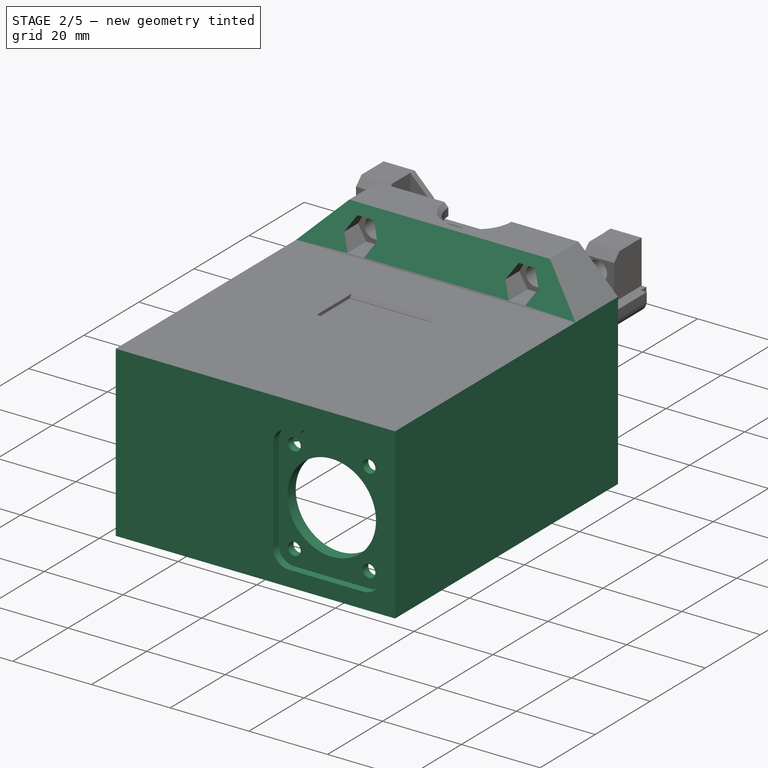
[diagram: stage 2 of 5 — iso view after this stage's code; geometry added in this stage tinted green]
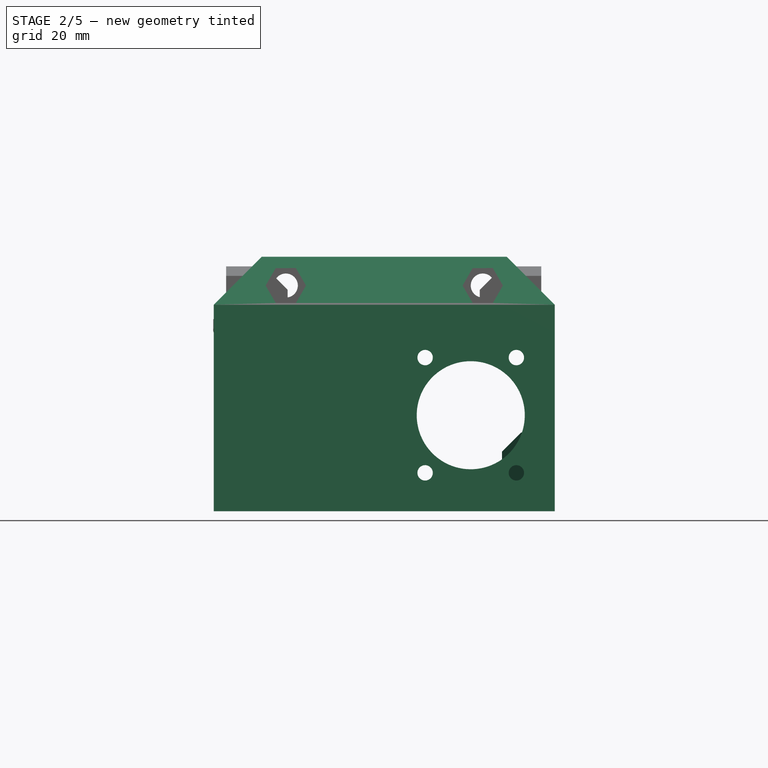
[diagram: stage 2 of 5 — front view after this stage's code; geometry added in this stage tinted green]
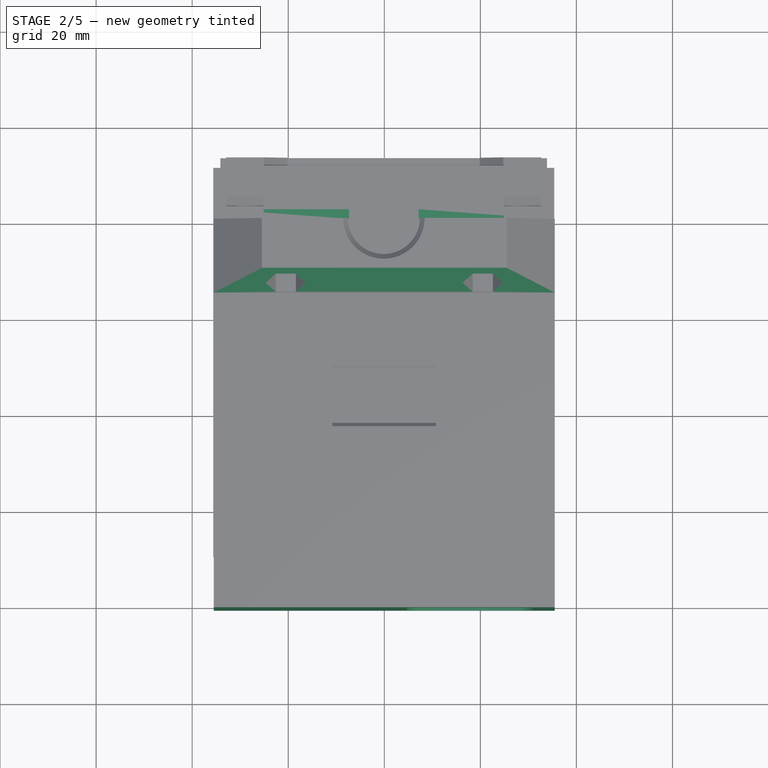
[diagram: stage 2 of 5 — top view after this stage's code; geometry added in this stage tinted green]
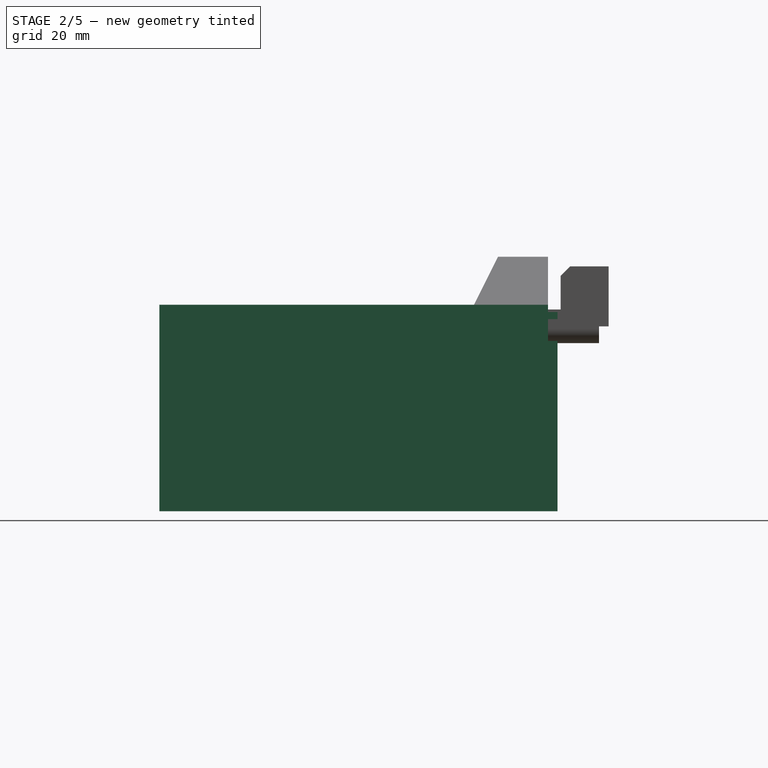
[diagram: stage 2 of 5 — right view after this stage's code; geometry added in this stage tinted green]
FEATURE [Sketcher::SketchObject] Sketch021
  ExternalGeometry = -> [Pad010]
  MapMode = 5
  Placement = pos=(0,0,0) rot=(1,0,0;3.14159rad)
  Support = -> [Pad010]
  sketch-geometry (8):
    g0: LineSegment StartX=-35.5 StartY=55.5 StartZ=0 EndX=-32.5 EndY=55.5 EndZ=0
    g1: LineSegment StartX=-32.5 StartY=55.5 StartZ=0 EndX=-32.5 EndY=-20.5 EndZ=0
    g2: LineSegment StartX=-32.5 StartY=-20.5 StartZ=0 EndX=-35.5 EndY=-20.5 EndZ=0
    g3: LineSegment StartX=-35.5 StartY=-20.5 StartZ=0 EndX=-35.5 EndY=55.5 EndZ=0
    g4: LineSegment StartX=35.5 StartY=55.5 StartZ=0 EndX=32.5 EndY=55.5 EndZ=0
    g5: LineSegment StartX=32.5 StartY=55.5 StartZ=0 EndX=32.5 EndY=-20.5 EndZ=0
    g6: LineSegment StartX=32.5 StartY=-20.5 StartZ=0 EndX=35.5 EndY=-20.5 EndZ=0
    g7: LineSegment StartX=35.5 StartY=-20.5 StartZ=0 EndX=35.5 EndY=55.5 EndZ=0
  constraints (22):
    c: Coincident(g0,g1)
    c: Coincident(g1,g2)
    c: Coincident(g2,g3)
    c: Coincident(g3,g0)
    c: Horizontal(g0)
    c: Horizontal(g2)
    c: Vertical(g1)
    c: Vertical(g3)
    c: Coincident(g0,g-5)
    c: Coincident(g4,g5)
    c: Coincident(g5,g6)
    c: Coincident(g6,g7)
    c: Coincident(g7,g4)
    c: Horizontal(g4)
    c: Horizontal(g6)
    c: Vertical(g5)
    c: Vertical(g7)
    c: Coincident(g4,g-6)
    c: Distance(g6) = 3
    c: Distance(g2) = 3
    c: Distance(g1) = 76
    c: Distance(g7) = 76
FEATURE [PartDesign::Pad] Pad011
  BaseFeature = -> Pad010
  Length = 40
  Length2 = 100
  Profile = -> Sketch021
  Refine = true
  Type = 0
FEATURE [Sketcher::SketchObject] Sketch022
  ExternalGeometry = -> [Pad011]
  MapMode = 5
  Placement = pos=(-3.3e-15,-55.5,3.3e-15) rot=(1,0,0;1.5708rad)
  Support = -> [Pad011]
  sketch-geometry (4):
    g0: LineSegment StartX=-35.5 StartY=3 StartZ=0 EndX=35.5 EndY=3 EndZ=0
    g1: LineSegment StartX=35.5 StartY=3 StartZ=0 EndX=35.5 EndY=-40 EndZ=0
    g2: LineSegment StartX=35.5 StartY=-40 StartZ=0 EndX=-35.5 EndY=-40 EndZ=0
    g3: LineSegment StartX=-35.5 StartY=-40 StartZ=0 EndX=-35.5 EndY=3 EndZ=0
  constraints (11):
    c: Coincident(g0,g1)
    c: Coincident(g1,g2)
    c: Coincident(g2,g3)
    c: Coincident(g3,g0)
    c: Horizontal(g0)
    c: Horizontal(g2)
    c: Vertical(g1)
    c: Vertical(g3)
    c: Coincident(g0,g-4)
    c: Distance(g0) = 71
    c: Distance(g1) = 43
FEATURE [PartDesign::Pad] Pad012
  BaseFeature = -> Pad011
  Length = 5
  Length2 = 100
  Profile = -> Sketch022
  Refine = true
  Type = 0
FEATURE [Sketcher::SketchObject] Sketch023
  MapMode = 5
  Placement = pos=(-3e-15,-60.5,1.51e-14) rot=(1,0,0;1.5708rad)
  Support = -> [Pad012]
  sketch-geometry (1):
    g0: Circle CenterX=18 CenterY=-20 CenterZ=0 NormalX=0 NormalY=0 NormalZ=1 AngleXU=0 Radius=11.25
  constraints (3):
    c: Diameter(g0) = 22.5
    c: Distance(g0,g-1) = 20
    c: Distance(g0,g-2) = 18
FEATURE [PartDesign::Pocket] Pocket013
  BaseFeature = -> Pad012
  Length = 5
  Length2 = 100
  Profile = -> Sketch023
  Type = 0
FEATURE [Sketcher::SketchObject] Sketch024
  ExternalGeometry = -> [Pocket013]
  MapMode = 5
  Placement = pos=(-3e-15,-60.5,1.51e-14) rot=(1,0,0;1.5708rad)
  Support = -> [Pocket013]
  sketch-geometry (4):
    g0: LineSegment StartX=4.5 StartY=-4 StartZ=0 EndX=31.5 EndY=-4 EndZ=0
    g1: LineSegment StartX=31.5 StartY=-4 StartZ=0 EndX=31.5 EndY=-36 EndZ=0
    g2: LineSegment StartX=31.5 StartY=-36 StartZ=0 EndX=4.5 EndY=-36 EndZ=0
    g3: LineSegment StartX=4.5 StartY=-36 StartZ=0 EndX=4.5 EndY=-4 EndZ=0
  constraints (12):
    c: Coincident(g0,g1)
    c: Coincident(g1,g2)
    c: Coincident(g2,g3)
    c: Coincident(g3,g0)
    c: Horizontal(g0)
    c: Horizontal(g2)
    c: Vertical(g1)
    c: Vertical(g3)
    c: Distance(g0) = 27
    c: Distance(g1) = 32
    c: Distance(g-3,g0) = 16
    c: Distance(g-3,g1) = 13.5
FEATURE [PartDesign::Pocket] Pocket014
  BaseFeature = -> Pocket013
  Length = 3
  Length2 = 100
  Profile = -> Sketch024
  Type = 0
FEATURE [PartDesign::Fillet] Fillet001
  Base = -> Pocket014 [Edge146,Edge144,Edge142,Edge141]
  BaseFeature = -> Pocket014
  Radius = 4
FEATURE [Sketcher::SketchObject] Sketch025
  ExternalGeometry = -> [Fillet001]
  MapMode = 5
  Placement = pos=(-3e-15,-60.5,1.51e-14) rot=(1,0,0;1.5708rad)
  Support = -> [Fillet001]
  sketch-geometry (4):
    g0: ArcOfCircle CenterX=12.5 CenterY=-4 CenterZ=0 NormalX=0 NormalY=0 NormalZ=1 AngleXU=0 Radius=1 StartAngle=1.5708 EndAngle=4.71239
    g1: ArcOfCircle CenterX=23.5 CenterY=-4 CenterZ=0 NormalX=0 NormalY=0 NormalZ=1 AngleXU=0 Radius=1 StartAngle=4.71239 EndAngle=7.85398
    g2: LineSegment StartX=12.5 StartY=-5 StartZ=0 EndX=23.5 EndY=-5 EndZ=0
    g3: LineSegment StartX=12.5 StartY=-3 StartZ=0 EndX=23.5 EndY=-3 EndZ=0
  constraints (10):
    c: Tangent(g0,g3) = 1.5708
    c: Tangent(g0,g2) = -1.5708
    c: Tangent(g2,g1) = -1.5708
    c: Tangent(g3,g1) = 1.5708
    c: Horizontal(g2)
    c: Equal(g0,g1)
    c: Distance(g1,g1) = 1
    c: Distance(g0,g1) = 11
    c: Distance(g1,g-3) = 1
    c: Distance(g1,g-4) = 8
FEATURE [PartDesign::Pocket] Pocket015
  BaseFeature = -> Fillet001
  Length = 3
  Length2 = 100
  Profile = -> Sketch025
  Refine = true
  Type = 0
FEATURE [Sketcher::SketchObject] Sketch026
  ExternalGeometry = -> [Pocket015]
  MapMode = 5
  Placement = pos=(0,-57.5,1.44e-14) rot=(1,0,0;1.5708rad)
  Support = -> [Pocket015]
  sketch-geometry (4):
    g0: Circle CenterX=8.50005 CenterY=-8 CenterZ=0 NormalX=0 NormalY=0 NormalZ=1 AngleXU=0 Radius=1.6
    g1: Circle CenterX=27.5 CenterY=-8 CenterZ=0 NormalX=0 NormalY=0 NormalZ=1 AngleXU=0 Radius=1.6
    g2: Circle CenterX=27.5 CenterY=-32 CenterZ=0 NormalX=0 NormalY=0 NormalZ=1 AngleXU=0 Radius=1.6
    g3: Circle CenterX=8.5 CenterY=-32 CenterZ=0 NormalX=0 NormalY=0 NormalZ=1 AngleXU=0 Radius=1.6
  constraints (12):
    c: Diameter(g1) = 3.2
    c: Diameter(g2) = 3.2
    c: Diameter(g3) = 3.2
    c: Diameter(g0) = 3.2
    c: Distance(g1,g0) = 19
    c: Distance(g0,g3) = 24
    c: Distance(g3,g2) = 19
    c: Distance(g2,g1) = 24
    c: Distance(g0,g-6) = 4
    c: Distance(g3,g-7) = 4
    c: Distance(g2,g-7) = 4
    c: Distance(g3,g-5) = 4
FEATURE [PartDesign::Pocket] Pocket016
  BaseFeature = -> Pocket015
  Length = 5
  Length2 = 100
  Profile = -> Sketch026
  Type = 0
FEATURE [PartDesign::Pad] Pad013
  BaseFeature = -> Pocket016
  Length = 1
  Length2 = 100
  Profile = -> Pocket016 [Face34]
  Refine = true
  Type = 0
FEATURE [Sketcher::SketchObject] Sketch027
  ExternalGeometry = -> [Pad013]
  MapMode = 5
  Placement = pos=(-2.8e-15,-55.5,1.39e-14) rot=(0,0.707107,0.707107;3.14159rad)
  Support = -> [Pad013]
  sketch-geometry (28):
    g0: LineSegment StartX=-24.696 StartY=-9.06637 StartZ=0 EndX=-25.1745 EndY=-6.10478 EndZ=0
    g1: LineSegment StartX=-25.1745 StartY=-6.10478 StartZ=0 EndX=-27.9786 EndY=-5.03841 EndZ=0
    g2: LineSegment StartX=-27.9786 StartY=-5.03841 StartZ=0 EndX=-30.3041 EndY=-6.93363 EndZ=0
    g3: LineSegment StartX=-30.3041 StartY=-6.93363 StartZ=0 EndX=-29.8256 EndY=-9.89522 EndZ=0
    g4: LineSegment StartX=-29.8256 StartY=-9.89522 StartZ=0 EndX=-27.0215 EndY=-10.9616 EndZ=0
    g5: LineSegment StartX=-27.0215 StartY=-10.9616 StartZ=0 EndX=-24.696 EndY=-9.06637 EndZ=0
    g6: Circle [constr] CenterX=-27.5 CenterY=-8 CenterZ=0 NormalX=0 NormalY=0 NormalZ=1 AngleXU=0 Radius=3
    g7: LineSegment StartX=-5.65359 StartY=-7.05252 StartZ=0 EndX=-7.89736 EndY=-5.06116 EndZ=0
    g8: LineSegment StartX=-7.89736 StartY=-5.06116 StartZ=0 EndX=-10.7438 EndY=-6.00864 EndZ=0
    g9: LineSegment StartX=-10.7438 StartY=-6.00864 StartZ=0 EndX=-11.3465 EndY=-8.94748 EndZ=0
    g10: LineSegment StartX=-11.3465 StartY=-8.94748 StartZ=0 EndX=-9.10273 EndY=-10.9388 EndZ=0
    g11: LineSegment StartX=-9.10273 StartY=-10.9388 StartZ=0 EndX=-6.25628 EndY=-9.99136 EndZ=0
    g12: LineSegment StartX=-6.25628 StartY=-9.99136 StartZ=0 EndX=-5.65359 EndY=-7.05252 EndZ=0
    g13: Circle [constr] CenterX=-8.50005 CenterY=-8 CenterZ=0 NormalX=0 NormalY=0 NormalZ=1 AngleXU=0 Radius=3
    g14: LineSegment StartX=-5.69592 StartY=-33.0664 StartZ=0 EndX=-6.17446 EndY=-30.1048 EndZ=0
    g15: LineSegment StartX=-6.17446 StartY=-30.1048 StartZ=0 EndX=-8.97853 EndY=-29.0384 EndZ=0
    g16: LineSegment StartX=-8.97853 StartY=-29.0384 StartZ=0 EndX=-11.3041 EndY=-30.9336 EndZ=0
    g17: LineSegment StartX=-11.3041 StartY=-30.9336 StartZ=0 EndX=-10.8255 EndY=-33.8952 EndZ=0
    g18: LineSegment StartX=-10.8255 StartY=-33.8952 StartZ=0 EndX=-8.02147 EndY=-34.9616 EndZ=0
    g19: LineSegment StartX=-8.02147 StartY=-34.9616 StartZ=0 EndX=-5.69592 EndY=-33.0664 EndZ=0
    g20: Circle [constr] CenterX=-8.5 CenterY=-32 CenterZ=0 NormalX=0 NormalY=0 NormalZ=1 AngleXU=0 Radius=3
    g21: LineSegment StartX=-25.2562 StartY=-33.9914 StartZ=0 EndX=-24.6535 EndY=-31.0525 EndZ=0
    g22: LineSegment StartX=-24.6535 StartY=-31.0525 StartZ=0 EndX=-26.8973 EndY=-29.0612 EndZ=0
    g23: LineSegment StartX=-26.8973 StartY=-29.0612 StartZ=0 EndX=-29.7438 EndY=-30.0086 EndZ=0
    g24: LineSegment StartX=-29.7438 StartY=-30.0086 StartZ=0 EndX=-30.3465 EndY=-32.9475 EndZ=0
    g25: LineSegment StartX=-30.3465 StartY=-32.9475 StartZ=0 EndX=-28.1027 EndY=-34.9388 EndZ=0
    g26: LineSegment StartX=-28.1027 StartY=-34.9388 StartZ=0 EndX=-25.2562 EndY=-33.9914 EndZ=0
    g27: Circle [constr] CenterX=-27.5 CenterY=-32 CenterZ=0 NormalX=0 NormalY=0 NormalZ=1 AngleXU=0 Radius=3
  constraints (64):
    c: Coincident(g0,g1)
    c: Coincident(g1,g2)
    c: Coincident(g2,g3)
    c: Coincident(g3,g4)
    c: Coincident(g4,g5)
    c: Coincident(g5,g0)
    c: Equal(g0, g1-g5) x5
    c: PointOnObject(g0,g6)
    c: PointOnObject(g1,g6)
    c: PointOnObject(g2,g6)
    c: PointOnObject(g3,g6)
    c: PointOnObject(g4,g6)
    c: PointOnObject(g5,g6)
    c: Coincident(g7,g8)
    c: Coincident(g8,g9)
    c: Coincident(g9,g10)
    c: Coincident(g10,g11)
    c: Coincident(g11,g12)
    c: Coincident(g12,g7)
    c: Equal(g7, g8-g12) x5
    c: PointOnObject(g7,g13)
    c: PointOnObject(g8,g13)
    c: PointOnObject(g9,g13)
    c: PointOnObject(g10,g13)
    c: PointOnObject(g11,g13)
    c: PointOnObject(g12,g13)
    c: Coincident(g14,g15)
    c: Coincident(g15,g16)
    c: Coincident(g16,g17)
    c: Coincident(g17,g18)
    c: Coincident(g18,g19)
    c: Coincident(g19,g14)
    c: Equal(g14, g15-g19) x5
    c: PointOnObject(g14,g20)
    c: PointOnObject(g15,g20)
    c: PointOnObject(g16,g20)
    c: PointOnObject(g17,g20)
    c: PointOnObject(g18,g20)
    c: PointOnObject(g19,g20)
    c: Coincident(g21,g22)
    c: Coincident(g22,g23)
    c: Coincident(g23,g24)
    c: Coincident(g24,g25)
    c: Coincident(g25,g26)
    c: Coincident(g26,g21)
    c: Equal(g21, g22-g26) x5
    c: PointOnObject(g21,g27)
    c: PointOnObject(g22,g27)
    c: PointOnObject(g23,g27)
    c: PointOnObject(g24,g27)
    c: PointOnObject(g25,g27)
    c: PointOnObject(g26,g27)
    c: Coincident(g6,g-3)
    c: Coincident(g13,g-4)
    c: Coincident(g20,g-5)
    c: Coincident(g27,g-6)
    c: Distance(g8) = 3
    c: Distance(g15) = 3
    c: Distance(g22) = 3
    c: Distance(g0) = 3
    c: Distance(g9,g0) = 13.35
    c: Distance(g22,g4) = 18.1
    c: Distance(g21,g16) = 13.35
    c: Distance(g15,g10) = 18.1
FEATURE [PartDesign::Pocket] Pocket017
  BaseFeature = -> Pad013
  Length = 1
  Length2 = 100
  Profile = -> Sketch027
  Type = 0
FEATURE [Sketcher::SketchObject] Sketch030
  ExternalGeometry = -> [Pocket017]
  MapMode = 5
  Placement = pos=(35.5,0,0) rot=(0.57735,0.57735,0.57735;2.0944rad)
  Support = -> [Pocket017]
  sketch-geometry (3):
    g0: LineSegment StartX=10 StartY=13 StartZ=0 EndX=5 EndY=3 EndZ=0
    g1: LineSegment StartX=5 StartY=3 StartZ=0 EndX=5 EndY=13 EndZ=0
    g2: LineSegment StartX=5 StartY=13 StartZ=0 EndX=10 EndY=13 EndZ=0
  constraints (7):
    c: Coincident(g0,g1)
    c: Coincident(g1,g2)
    c: Coincident(g2,g0)
    c: Coincident(g1,g-4)
    c: Coincident(g0,g-4)
    c: Distance(g2) = 5
    c: Distance(g0,g-5) = 10
FEATURE [PartDesign::Pocket] Pocket018
  BaseFeature = -> Pocket017
  Length = 500
  Length2 = 100
  Profile = -> Sketch030
  Refine = true
  Type = 0
FEATURE [PartDesign::Pocket] Pocket019
  BaseFeature = -> Pocket018
  Length = 0.1
  Length2 = 100
  Profile = -> Pocket018 [Face29]
  Type = 0
FEATURE [PartDesign::Pocket] Pocket020
  BaseFeature = -> Pocket019
  Length = 0.1
  Length2 = 100
  Profile = -> Pocket019 [Face25]
  Refine = true
  Type = 0
FEATURE [Sketcher::SketchObject] Sketch031
  ExternalGeometry = -> [Pocket020]
  MapMode = 5
  Placement = pos=(3.1e-15,20.4,-1.6e-15) rot=(0,0.707107,0.707107;3.14159rad)
  Support = -> [Pocket020]
  sketch-geometry (16):
    g0: LineSegment StartX=-32.5 StartY=-40 StartZ=0 EndX=-34 EndY=-40 EndZ=0
    g1: LineSegment StartX=-34 StartY=-40 StartZ=0 EndX=-34 EndY=1.5 EndZ=0
    g2: LineSegment StartX=-34 StartY=1.5 StartZ=0 EndX=-32.5 EndY=1.5 EndZ=0
    g3: LineSegment StartX=-32.5 StartY=1.5 StartZ=0 EndX=-32.5 EndY=-40 EndZ=0
    g4: LineSegment StartX=32.5 StartY=1.5 StartZ=0 EndX=34 EndY=1.5 EndZ=0
    g5: LineSegment StartX=34 StartY=1.5 StartZ=0 EndX=34 EndY=-40 EndZ=0
    g6: LineSegment StartX=34 StartY=-40 StartZ=0 EndX=32.5 EndY=-40 EndZ=0
    g7: LineSegment StartX=32.5 StartY=-40 StartZ=0 EndX=32.5 EndY=1.5 EndZ=0
    g8: LineSegment StartX=-32.5 StartY=1.5 StartZ=0 EndX=-7.15 EndY=1.5 EndZ=0
    g9: LineSegment StartX=-7.15 StartY=1.5 StartZ=0 EndX=-7.15 EndY=1.6e-15 EndZ=0
    g10: LineSegment StartX=-7.15 StartY=1.6e-15 StartZ=0 EndX=-32.5 EndY=1.6e-15 EndZ=0
    g11: LineSegment StartX=-32.5 StartY=1.6e-15 StartZ=0 EndX=-32.5 EndY=1.5 EndZ=0
    g12: LineSegment StartX=7.35 StartY=1.5 StartZ=0 EndX=32.5 EndY=1.5 EndZ=0
    g13: LineSegment StartX=32.5 StartY=1.5 StartZ=0 EndX=32.5 EndY=1.6e-15 EndZ=0
    g14: LineSegment StartX=32.5 StartY=1.6e-15 StartZ=0 EndX=7.35 EndY=1.6e-15 EndZ=0
    g15: LineSegment StartX=7.35 StartY=1.6e-15 StartZ=0 EndX=7.35 EndY=1.5 EndZ=0
  constraints (44):
    c: Coincident(g0,g1)
    c: Coincident(g1,g2)
    c: Coincident(g2,g3)
    c: Coincident(g3,g0)
    c: Horizontal(g0)
    c: Horizontal(g2)
    c: Vertical(g1)
    c: Vertical(g3)
    c: Coincident(g4,g5)
    c: Coincident(g5,g6)
    c: Coincident(g6,g7)
    c: Coincident(g7,g4)
    c: Horizontal(g4)
    c: Horizontal(g6)
    c: Vertical(g5)
    c: Vertical(g7)
    c: Coincident(g6,g-6)
    c: Coincident(g0,g-4)
    c: Distance(g4) = 1.5
    c: Distance(g2) = 1.5
    c: Distance(g1) = 41.5
    c: Distance(g5) = 41.5
    c: Coincident(g8,g9)
    c: Coincident(g9,g10)
    c: Coincident(g10,g11)
    c: Coincident(g11,g8)
    c: Horizontal(g8)
    c: Horizontal(g10)
    c: Vertical(g9)
    c: Vertical(g11)
    c: Coincident(g12,g13)
    c: Coincident(g13,g14)
    c: Coincident(g14,g15)
    c: Coincident(g15,g12)
    c: Horizontal(g12)
    c: Horizontal(g14)
    c: Vertical(g13)
    c: Vertical(g15)
    c: Coincident(g13,g-6)
    c: Coincident(g10,g-3)
    c: Distance(g15) = 1.5
    c: Distance(g9) = 1.5
    c: Distance(g12) = 25.15
    c: Distance(g8) = 25.35
FEATURE [PartDesign::Pad] Pad016
  BaseFeature = -> Pocket020
  Length = 2
  Length2 = 100
  Profile = -> Sketch031
  Refine = true
  Type = 0
FEATURE [Sketcher::SketchObject] Sketch042
  ExternalGeometry = -> [Pad016]
  MapMode = 5
  Placement = pos=(32.5,0,0) rot=(0.57735,-0.57735,-0.57735;2.0944rad)
  Support = -> [Pad016]
  sketch-geometry (4):
    g0: LineSegment StartX=-11.4 StartY=-27.6 StartZ=0 EndX=3.6 EndY=-27.6 EndZ=0
    g1: LineSegment StartX=3.6 StartY=-27.6 StartZ=0 EndX=3.6 EndY=-37.6 EndZ=0
    g2: LineSegment StartX=3.6 StartY=-37.6 StartZ=0 EndX=-11.4 EndY=-37.6 EndZ=0
    g3: LineSegment StartX=-11.4 StartY=-37.6 StartZ=0 EndX=-11.4 EndY=-27.6 EndZ=0
  constraints (12):
    c: Coincident(g0,g1)
    c: Coincident(g1,g2)
    c: Coincident(g2,g3)
    c: Coincident(g3,g0)
    c: Horizontal(g0)
    c: Horizontal(g2)
    c: Vertical(g1)
    c: Vertical(g3)
    c: Distance(g1) = 10
    c: Distance(g0) = 15
    c: Distance(g2,g-4) = 11
    c: Distance(g2,g-3) = 2.4
FEATURE [PartDesign::Pad] Pad022
  BaseFeature = -> Pad016
  Length = 8
  Length2 = 100
  Profile = -> Sketch042
  Type = 0
FEATURE [Sketcher::SketchObject] Sketch043
  ExternalGeometry = -> [Pad022]
  MapMode = 5
  Placement = pos=(-32.5,0,0) rot=(0.57735,0.57735,0.57735;2.0944rad)
  Support = -> [Pad022]
  sketch-geometry (4):
    g0: LineSegment StartX=-3.6 StartY=-27.6 StartZ=0 EndX=11.4 EndY=-27.6 EndZ=0
    g1: LineSegment StartX=11.4 StartY=-27.6 StartZ=0 EndX=11.4 EndY=-37.6 EndZ=0
    g2: LineSegment StartX=11.4 StartY=-37.6 StartZ=0 EndX=-3.6 EndY=-37.6 EndZ=0
    g3: LineSegment StartX=-3.6 StartY=-37.6 StartZ=0 EndX=-3.6 EndY=-27.6 EndZ=0
  constraints (12):
    c: Coincident(g0,g1)
    c: Coincident(g1,g2)
    c: Coincident(g2,g3)
    c: Coincident(g3,g0)
    c: Horizontal(g0)
    c: Horizontal(g2)
    c: Vertical(g1)
    c: Vertical(g3)
    c: Distance(g1) = 10
    c: Distance(g0) = 15
    c: Distance(g1,g-3) = 2.4
    c: Distance(g1,g-4) = 11
FEATURE [PartDesign::Pad] Pad023
  BaseFeature = -> Pad022
  Length = 8
  Length2 = 100
  Profile = -> Sketch043
  Type = 0
FEATURE [Sketcher::SketchObject] Sketch044
  ExternalGeometry = -> [Pad023]
  MapMode = 5
  Placement = pos=(0,11.4,0) rot=(0,0.707107,0.707107;3.14159rad)
  Support = -> [Pad023]
  sketch-geometry (2):
    g0: Circle CenterX=-28.5 CenterY=-34 CenterZ=0 NormalX=0 NormalY=0 NormalZ=1 AngleXU=0 Radius=1.8
    g1: Circle CenterX=28.5 CenterY=-34 CenterZ=0 NormalX=0 NormalY=0 NormalZ=1 AngleXU=0 Radius=1.8
  constraints (6):
    c: Diameter(g1) = 3.6
    c: Diameter(g0) = 3.6
    c: Distance(g1,g-5) = 4
    c: Distance(g1,g-6) = 6.4
    c: Distance(g0,g-3) = 6.4
    c: Distance(g0,g-4) = 4
FEATURE [PartDesign::Pocket] Pocket032
  BaseFeature = -> Pad023
  Length = 2
  Length2 = 100
  Profile = -> Sketch044
  Type = 0
FEATURE [Part::Feature] Part__Feature095  label="M4_30mm"
  Placement = pos=(-28.51,2.61,-28.01) rot=(-1,0,0;1.5708rad)
  shape: bbox 7.577 x 32.5 x 7.577 mm, 28 faces (baked)
FEATURE [PartDesign::Pad] Pad024
  BaseFeature = -> Pocket032
  Length = 2
  Length2 = 100
  Profile = -> Pocket032 [Face89]
  Type = 0
FEATURE [PartDesign::Pad] Pad025
  BaseFeature = -> Pad024
  Length = 2
  Length2 = 100
  Profile = -> Pad024 [Face95]
  Refine = true
  Type = 0
FEATURE [Part::Feature] Part__Feature096  label="M4_30mm001"
  Placement = pos=(28.5,2.48,-28.01) rot=(-1,0,0;1.5708rad)
  shape: bbox 7.577 x 32.5 x 7.577 mm, 28 faces (baked)
FEATURE [Sketcher::SketchObject] Sketch045
  ExternalGeometry = -> [Pad025]
  MapMode = 5
  Placement = pos=(32.5,0,0) rot=(0.57735,-0.57735,-0.57735;2.0944rad)
  Support = -> [Pad025]
  sketch-geometry (4):
    g0: LineSegment StartX=36.5 StartY=-25.6 StartZ=0 EndX=46.5 EndY=-25.6 EndZ=0
    g1: LineSegment StartX=46.5 StartY=-25.6 StartZ=0 EndX=46.5 EndY=-37.6 EndZ=0
    g2: LineSegment StartX=46.5 StartY=-37.6 StartZ=0 EndX=36.5 EndY=-37.6 EndZ=0
    g3: LineSegment StartX=36.5 StartY=-37.6 StartZ=0 EndX=36.5 EndY=-25.6 EndZ=0
  constraints (12):
    c: Coincident(g0,g1)
    c: Coincident(g1,g2)
    c: Coincident(g2,g3)
    c: Coincident(g3,g0)
    c: Horizontal(g0)
    c: Horizontal(g2)
    c: Vertical(g1)
    c: Vertical(g3)
    c: Distance(g1) = 12
    c: Distance(g0) = 10
    c: Distance(g1,g-4) = 9
    c: Distance(g1,g-3) = 2.4
FEATURE [PartDesign::Pad] Pad026
  BaseFeature = -> Pad025
  Length = 10
  Length2 = 100
  Profile = -> Sketch045
  Type = 0
FEATURE [PartDesign::Pad] Pad027
  BaseFeature = -> Pad026
  Length = 32
  Length2 = 100
  Profile = -> Pad026 [Face89]
  Refine = true
  Type = 0
FEATURE [Sketcher::SketchObject] Sketch046
  ExternalGeometry = -> [Pad027]
  MapMode = 5
  Placement = pos=(-32.5,0,0) rot=(0.57735,0.57735,0.57735;2.0944rad)
  Support = -> [Pad027]
  sketch-geometry (4):
    g0: LineSegment StartX=-46.5 StartY=-25.6 StartZ=0 EndX=-36.5 EndY=-25.6 EndZ=0
    g1: LineSegment StartX=-36.5 StartY=-25.6 StartZ=0 EndX=-36.5 EndY=-37.6 EndZ=0
    g2: LineSegment StartX=-36.5 StartY=-37.6 StartZ=0 EndX=-46.5 EndY=-37.6 EndZ=0
    g3: LineSegment StartX=-46.5 StartY=-37.6 StartZ=0 EndX=-46.5 EndY=-25.6 EndZ=0
  constraints (12):
    c: Coincident(g0,g1)
    c: Coincident(g1,g2)
    c: Coincident(g2,g3)
    c: Coincident(g3,g0)
    c: Horizontal(g0)
    c: Horizontal(g2)
    c: Vertical(g1)
    c: Vertical(g3)
    c: Distance(g2) = 10
    c: Distance(g3) = 12
    c: Distance(g2,g-3) = 2.4
    c: Distance(g2,g-4) = 9
FEATURE [PartDesign::Pad] Pad028
  BaseFeature = -> Pad027
  Length = 10
  Length2 = 100
  Profile = -> Sketch046
  Type = 0
FEATURE [PartDesign::Pad] Pad029
  BaseFeature = -> Pad028
  Length = 34
  Length2 = 100
  Profile = -> Pad028 [Face97]
  Refine = true
  Type = 0
FEATURE [Sketcher::SketchObject] Sketch047
  ExternalGeometry = -> [Pocket031]
  MapMode = 5
  Placement = pos=(0,0,-5) rot=(1,0,0;3.14159rad)
  Support = -> [Pocket031]
  sketch-geometry (2):
    g0: Circle CenterX=-28.6212 CenterY=30.9667 CenterZ=0 NormalX=0 NormalY=0 NormalZ=1 AngleXU=0 Radius=2.5
    g1: Circle CenterX=28.3788 CenterY=30.9667 CenterZ=0 NormalX=0 NormalY=0 NormalZ=1 AngleXU=0 Radius=2.5
  constraints (6):
    c: Diameter(g1) = 5
    c: Diameter(g0) = 5
    c: Distance(g0,g-3) = 7
    c: Distance(g1,g-5) = 7
    c: Distance(g0,g-4) = 19
    c: Distance(g1,g-4) = 19
FEATURE [Sketcher::SketchObject] Sketch049
  ExternalGeometry = -> [Pad029]
  MapMode = 5
  Placement = pos=(0,0,-37.6) rot=(1,0,0;3.14159rad)
  Support = -> [Pad029]
  sketch-geometry (2):
    g0: Circle CenterX=-28.5 CenterY=41.6 CenterZ=0 NormalX=0 NormalY=0 NormalZ=1 AngleXU=0 Radius=1.8
    g1: Circle CenterX=28.5 CenterY=41.6 CenterZ=0 NormalX=0 NormalY=0 NormalZ=1 AngleXU=0 Radius=1.8
  constraints (6):
    c: Diameter(g1) = 3.6
    c: Diameter(g0) = 3.6
    c: Distance(g1,g-6) = 6
    c: Distance(g0,g-4) = 6
    c: Distance(g1,g-5) = 4.9
    c: Distance(g0,g-3) = 4.9
FEATURE [PartDesign::Pocket] Pocket035
  BaseFeature = -> Pad029
  Length = 11
  Length2 = 100
  Profile = -> Sketch049
  Type = 0
FEATURE [PartDesign::Pad] Pad030
  BaseFeature = -> Pocket035
  Length = 2
  Length2 = 100
  Profile = -> Pocket035 [Face98]
  Type = 0
FEATURE [PartDesign::Pad] Pad031
  BaseFeature = -> Pad030
  Length = 2
  Length2 = 100
  Profile = -> Pad030 [Face89]
  Refine = true
  Type = 0
FEATURE [PartDesign::Pocket] Pocket036
  BaseFeature = -> Pad031
  Length = 10
  Length2 = 100
  Profile = -> Pad031 [Face120]
  Type = 0
FEATURE [PartDesign::Pocket] Pocket037
  BaseFeature = -> Pocket036
  Length = 10
  Length2 = 100
  Profile = -> Pocket036 [Face123]
  Refine = true
  Type = 0
FEATURE [Part::Feature] Part__Feature097  label="M4_12mm"
  Placement = pos=(-28.53,-41.43,-23.89) rot=(1,0,0;3.14159rad)
  shape: bbox 9.2 x 9.2 x 14.5 mm, 28 faces (baked)
FEATURE [Part::Feature] Part__Feature098  label="M4_12mm001"
  Placement = pos=(28.47,-41.44,-24.04) rot=(1,0,0;3.14159rad)
  shape: bbox 9.2 x 9.2 x 14.5 mm, 28 faces (baked)
FEATURE [PartDesign::Chamfer] Chamfer007
  Base = -> Pocket037 [Edge283]
  BaseFeature = -> Pocket037
  Size = 6
FEATURE [PartDesign::Pocket] Pocket038
  BaseFeature = -> Chamfer007
  Length = 11
  Length2 = 100
  Profile = -> Chamfer007 [Face7]
  Type = 0
FEATURE [PartDesign::Chamfer] Chamfer008
  Base = -> Pocket038 [Edge211]
  BaseFeature = -> Pocket038
  Size = 6
FEATURE [PartDesign::Pocket] Pocket039
  BaseFeature = -> Chamfer008
  Length = 12
  Length2 = 100
  Profile = -> Chamfer008 [Face2]
  Refine = true
  Type = 0
FEATURE [PartDesign::Chamfer] Chamfer009
  Base = -> Pocket039 [Edge81]
  BaseFeature = -> Pocket039
  Size = 7.99
FEATURE [PartDesign::Pad] Pad032
  BaseFeature = -> Chamfer009
  Length = 12
  Length2 = 100
  Profile = -> Chamfer009 [Face65]
  Refine = true
  Type = 0
FEATURE [Part::Feature] Part__Feature099  label="usb_cable"
  Placement = pos=(5.75,151.18,110.53) rot=(0.707107,0.707107,0;3.14159rad)
  shape: bbox 17.02 x 132.6 x 11.22 mm, 864 faces, 2 solids (baked)
FEATURE [Part::Feature] Part__Feature100  label="USB - Type B - Male - 90°"
  Placement = pos=(23.5346,-22.1,-6.05469) rot=(0,0.707107,0.707107;3.14159rad)
  shape: bbox 44.46 x 29.75 x 14.56 mm, 125 faces, 2 solids (baked)
FEATURE [Part::Feature] Part__Feature101  label="Clamp"
  Placement = pos=(-24.59,-125.85,-46.94) rot=(0.57735,0.57735,0.57735;2.0944rad)
  shape: bbox 18 x 65 x 40 mm, 8 faces (baked)
FEATURE [Sketcher::SketchObject] Sketch050
  ExternalGeometry = -> [Pad032]
  MapMode = 5
  Placement = pos=(0,0,-37.6) rot=(1,0,0;3.14159rad)
  Support = -> [Pad032]
  sketch-geometry (8):
    g0: LineSegment StartX=-32.5 StartY=14.1 StartZ=0 EndX=-24.5 EndY=14.1 EndZ=0
    g1: LineSegment StartX=-24.5 StartY=14.1 StartZ=0 EndX=-24.5 EndY=9.1 EndZ=0
    g2: LineSegment StartX=-24.5 StartY=9.1 StartZ=0 EndX=-32.5 EndY=9.1 EndZ=0
    g3: LineSegment StartX=-32.5 StartY=9.1 StartZ=0 EndX=-32.5 EndY=14.1 EndZ=0
    g4: LineSegment StartX=24.5 StartY=14.1 StartZ=0 EndX=32.5 EndY=14.1 EndZ=0
    g5: LineSegment StartX=32.5 StartY=14.1 StartZ=0 EndX=32.5 EndY=9.1 EndZ=0
    g6: LineSegment StartX=32.5 StartY=9.1 StartZ=0 EndX=24.5 EndY=9.1 EndZ=0
    g7: LineSegment StartX=24.5 StartY=9.1 StartZ=0 EndX=24.5 EndY=14.1 EndZ=0
  constraints (26):
    c: Coincident(g0,g1)
    c: Coincident(g1,g2)
    c: Coincident(g2,g3)
    c: Coincident(g3,g0)
    c: Horizontal(g0)
    c: Horizontal(g2)
    c: Vertical(g1)
    c: Vertical(g3)
    c: Coincident(g4,g5)
    c: Coincident(g5,g6)
    c: Coincident(g6,g7)
    c: Coincident(g7,g4)
    c: Horizontal(g4)
    c: Horizontal(g6)
    c: Vertical(g5)
    c: Vertical(g7)
    c: Distance(g4) = 8
    c: Distance(g0) = 8
    c: Distance(g-7) = 66.9
    c: Distance(g-3) = 57.9
    c: Distance(g7) = 5
    c: Distance(g1) = 5
    c: Distance(g6,g-5) = 20.5
    c: Distance(g1,g-6) = 20.5
    c: Distance(g6,g-4) = 8
    c: Distance(g1,g-8) = 8
FEATURE [PartDesign::Pocket] Pocket040
  BaseFeature = -> Pad032
  Length = 11
  Length2 = 100
  Profile = -> Sketch050
  Type = 0
FEATURE [PartDesign::Chamfer] Chamfer011
  Base = -> Pocket040 [Edge234,Edge232,Edge134,Edge309]
  BaseFeature = -> Pocket040
  Size = 7.9
FEATURE [PartDesign::Pad] Pad033
  BaseFeature = -> Chamfer011
  Length = 0.1
  Length2 = 100
  Profile = -> Chamfer011 [Face74]
  Type = 0
FEATURE [PartDesign::Pad] Pad034
  BaseFeature = -> Pad033
  Length = 0.1
  Length2 = 100
  Profile = -> Pad033 [Face11]
  Refine = true
  Type = 0
FEATURE [Part::Feature] Part__Feature106  label="M3_6mm"
  Placement = pos=(28.53,-11.52,5.24) rot=(0,1,0;3.14159rad)
  shape: bbox 5.953 x 5.953 x 8.5 mm, 14 faces (baked)
FEATURE [Part::Feature] Part__Feature107  label="M3_6mm001"
  Placement = pos=(-28.5,-11.52,5.16) rot=(1,0,0;3.14159rad)
  shape: bbox 5.953 x 5.953 x 8.5 mm, 14 faces (baked)
FEATURE [PartDesign::Pocket] Pocket041
  BaseFeature = -> Pad034
  Length = 1.5
  Length2 = 100
  Profile = -> Pad034 [Face84]
  Type = 0
FEATURE [PartDesign::Pocket] Pocket042
  BaseFeature = -> Pocket041
  Length = 1.5
  Length2 = 100
  Profile = -> Pocket041 [Face23]
  Refine = true
  Type = 0
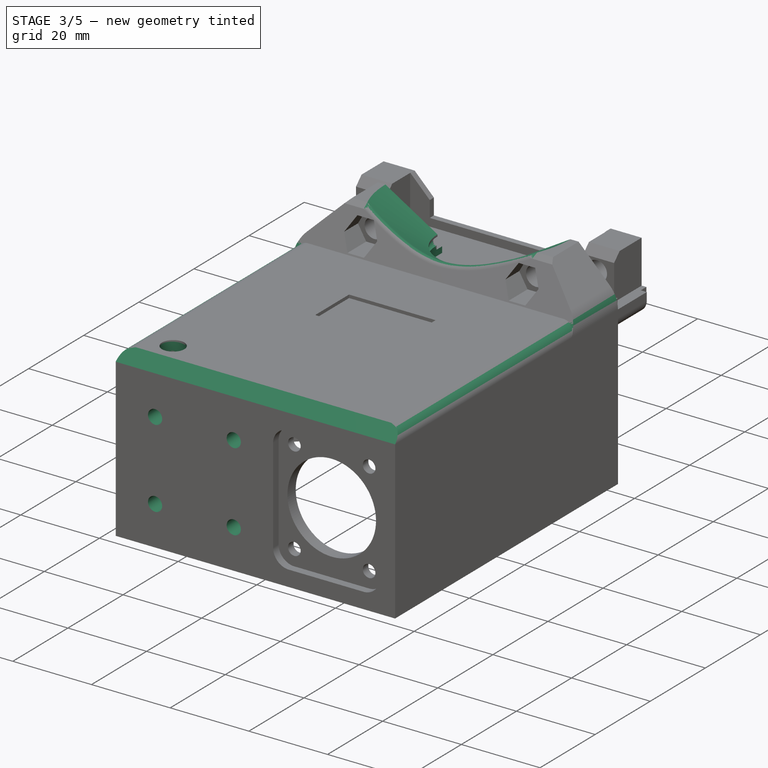
[diagram: stage 3 of 5 — iso view after this stage's code; geometry added in this stage tinted green]
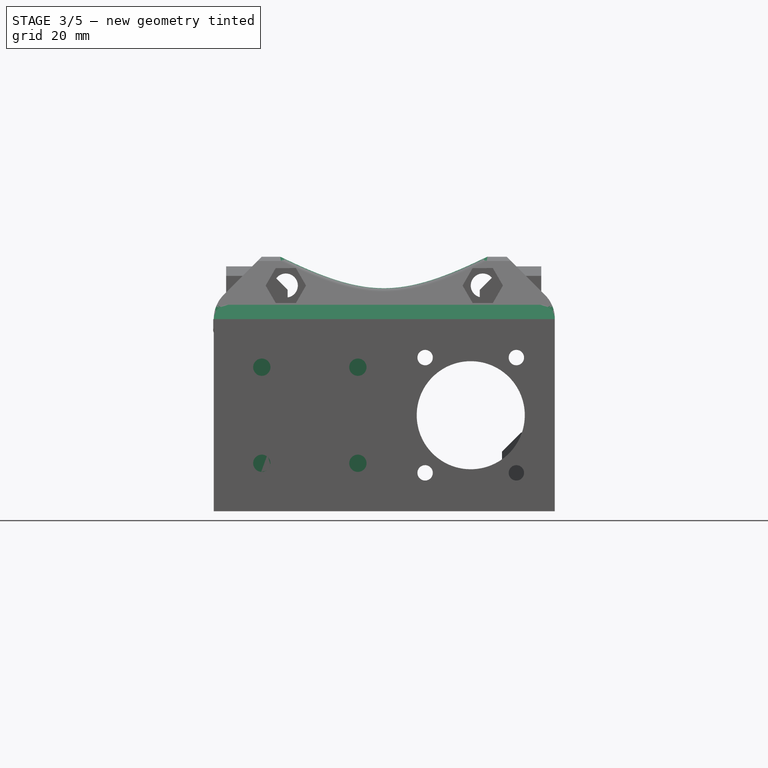
[diagram: stage 3 of 5 — front view after this stage's code; geometry added in this stage tinted green]
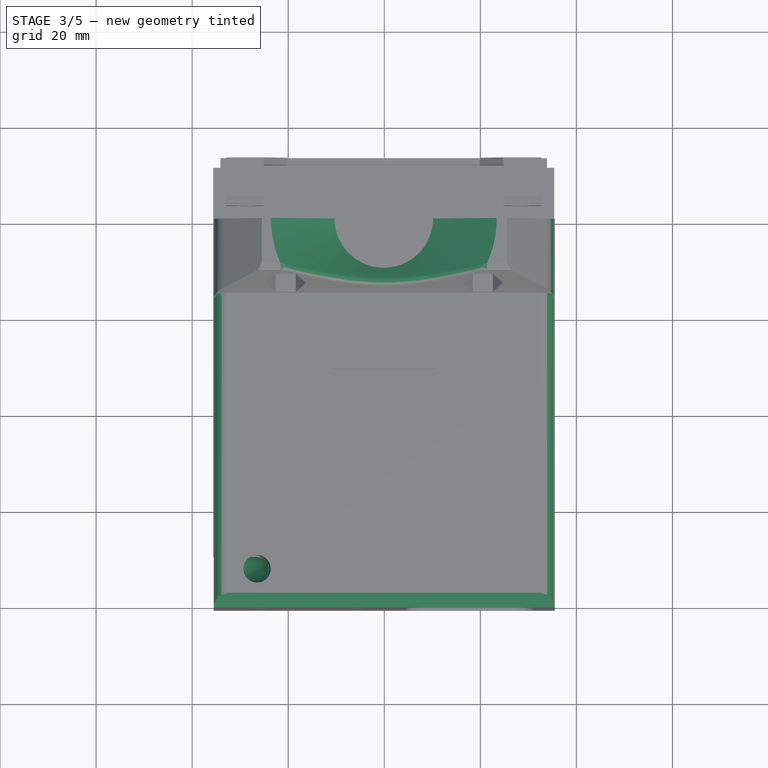
[diagram: stage 3 of 5 — top view after this stage's code; geometry added in this stage tinted green]
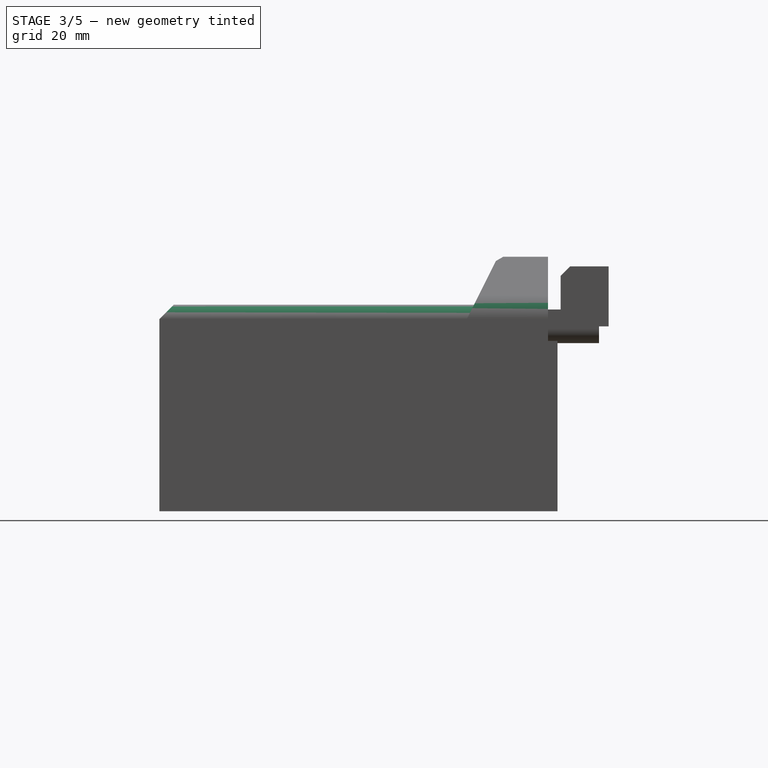
[diagram: stage 3 of 5 — right view after this stage's code; geometry added in this stage tinted green]
FEATURE [PartDesign::Chamfer] Chamfer013
  Base = -> Pocket042 [Edge201]
  BaseFeature = -> Pocket042
  Size = 3
FEATURE [Part::Feature] Part__Feature108  label="Button"
  Placement = pos=(-14.96,-22.94,-14.01) rot=(0,-1,0;1.5708rad)
  shape: bbox 24 x 14 x 14 mm, 9 faces (baked)
FEATURE [Sketcher::SketchObject] Sketch052
  ExternalGeometry = -> [Chamfer013]
  MapMode = 5
  Placement = pos=(-35.5,0,0) rot=(0.57735,-0.57735,-0.57735;2.0944rad)
  Support = -> [Chamfer013]
  sketch-geometry (1):
    g0: Circle CenterX=24.6 CenterY=-20 CenterZ=0 NormalX=0 NormalY=0 NormalZ=1 AngleXU=0 Radius=6.25
  constraints (3):
    c: Diameter(g0) = 12.5
    c: Distance(g0,g-5) = 45
    c: Distance(g0,g-3) = 23
FEATURE [PartDesign::Pocket] Pocket047
  BaseFeature = -> Chamfer013
  Length = 5
  Length2 = 100
  Profile = -> Sketch052
  Type = 0
FEATURE [Sketcher::SketchObject] Sketch053
  ExternalGeometry = -> [Pocket047]
  MapMode = 5
  Placement = pos=(-35.5,0,0) rot=(0.57735,-0.57735,-0.57735;2.0944rad)
  Support = -> [Pocket047]
  sketch-geometry (1):
    g0: Circle CenterX=24.6 CenterY=-20 CenterZ=0 NormalX=0 NormalY=0 NormalZ=1 AngleXU=0 Radius=7.25
  constraints (2):
    c: Coincident(g0,g-3)
    c: Diameter(g0) = 14.5
FEATURE [PartDesign::Pocket] Pocket048
  BaseFeature = -> Pocket047
  Length = 0.5
  Length2 = 100
  Profile = -> Sketch053
  Type = 0
FEATURE [Sketcher::SketchObject] Sketch054
  ExternalGeometry = -> [Pocket048]
  MapMode = 5
  Placement = pos=(0,0,-1e-16) rot=(1,0,0;3.14159rad)
  Support = -> [Pocket048]
  sketch-geometry (8):
    g0: LineSegment StartX=-32.5 StartY=16.5 StartZ=0 EndX=-25.5 EndY=16.5 EndZ=0
    g1: LineSegment StartX=-25.5 StartY=16.5 StartZ=0 EndX=-25.5 EndY=6.5 EndZ=0
    g2: LineSegment StartX=-25.5 StartY=6.5 StartZ=0 EndX=-32.5 EndY=6.5 EndZ=0
    g3: LineSegment StartX=-32.5 StartY=6.5 StartZ=0 EndX=-32.5 EndY=16.5 EndZ=0
    g4: LineSegment StartX=25.5 StartY=16.5 StartZ=0 EndX=32.5 EndY=16.5 EndZ=0
    g5: LineSegment StartX=32.5 StartY=16.5 StartZ=0 EndX=32.5 EndY=6.5 EndZ=0
    g6: LineSegment StartX=32.5 StartY=6.5 StartZ=0 EndX=25.5 EndY=6.5 EndZ=0
    g7: LineSegment StartX=25.5 StartY=6.5 StartZ=0 EndX=25.5 EndY=16.5 EndZ=0
  constraints (24):
    c: Coincident(g0,g1)
    c: Coincident(g1,g2)
    c: Coincident(g2,g3)
    c: Coincident(g3,g0)
    c: Horizontal(g0)
    c: Horizontal(g2)
    c: Vertical(g1)
    c: Vertical(g3)
    c: Distance(g0) = 7
    c: Distance(g0,g-3) = 7
    c: Distance(g1) = 10
    c: Distance(g0,g-4) = 39
    c: Coincident(g4,g5)
    c: Coincident(g5,g6)
    c: Coincident(g6,g7)
    c: Coincident(g7,g4)
    c: Horizontal(g4)
    c: Horizontal(g6)
    c: Vertical(g5)
    c: Vertical(g7)
    c: Distance(g4) = 7
    c: Distance(g7) = 10
    c: Distance(g4,g-5) = 7
    c: Distance(g4,g-4) = 39
FEATURE [PartDesign::Pad] Pad036
  BaseFeature = -> Pocket048
  Length = 5
  Length2 = 100
  Profile = -> Sketch054
  Type = 0
FEATURE [PartDesign::Chamfer] Chamfer015
  Base = -> Pad036 [Edge282,Edge278,Edge314,Edge310]
  BaseFeature = -> Pad036
  Size = 4
FEATURE [PartDesign::Chamfer] Chamfer016
  Base = -> Chamfer015 [Edge97]
  BaseFeature = -> Chamfer015
  Size = 2.999
FEATURE [PartDesign::Chamfer] Chamfer017
  Base = -> Chamfer016 [Edge75]
  BaseFeature = -> Chamfer016
  Size = 2.999
FEATURE [Sketcher::SketchObject] Sketch055
  ExternalGeometry = -> [Chamfer017]
  MapMode = 5
  Placement = pos=(0,0,-5) rot=(1,0,0;3.14159rad)
  Support = -> [Chamfer017]
  sketch-geometry (2):
    g0: Circle CenterX=-28.5 CenterY=11.65 CenterZ=0 NormalX=0 NormalY=0 NormalZ=1 AngleXU=0 Radius=1.4
    g1: Circle CenterX=28.5 CenterY=11.65 CenterZ=0 NormalX=0 NormalY=0 NormalZ=1 AngleXU=0 Radius=1.4
  constraints (6):
    c: Diameter(g1) = 2.8
    c: Diameter(g0) = 2.8
    c: Distance(g0,g-4) = 4
    c: Distance(g0,g-6) = 5.15
    c: Distance(g1,g-9) = 4
    c: Distance(g1,g-8) = 5.15
FEATURE [PartDesign::Pocket] Pocket049
  BaseFeature = -> Chamfer017
  Length = 5
  Length2 = 100
  Profile = -> Sketch055
  Type = 0
FEATURE [PartDesign::Pocket] Pocket050
  BaseFeature = -> Pocket049
  Length = 1
  Length2 = 100
  Profile = -> Pocket049 [Face67]
  Type = 0
FEATURE [PartDesign::Pocket] Pocket051
  BaseFeature = -> Pocket050
  Length = 1
  Length2 = 100
  Profile = -> Pocket050 [Face30]
  Type = 0
FEATURE [Sketcher::SketchObject] Sketch060
  ExternalGeometry = -> [Pocket051]
  MapMode = 5
  Placement = pos=(-2.8e-15,-55.5,1.39e-14) rot=(0,0.707107,0.707107;3.14159rad)
  Support = -> [Pocket051]
  sketch-geometry (4):
    g0: LineSegment StartX=32.5 StartY=-37.6 StartZ=0 EndX=-0.5 EndY=-37.6 EndZ=0
    g1: LineSegment StartX=-0.5 StartY=-37.6 StartZ=0 EndX=-0.5 EndY=-1.42e-14 EndZ=0
    g2: LineSegment StartX=-0.5 StartY=-1.42e-14 StartZ=0 EndX=32.5 EndY=-1.42e-14 EndZ=0
    g3: LineSegment StartX=32.5 StartY=-1.42e-14 StartZ=0 EndX=32.5 EndY=-37.6 EndZ=0
  constraints (12):
    c: Coincident(g0,g1)
    c: Coincident(g1,g2)
    c: Coincident(g2,g3)
    c: Coincident(g3,g0)
    c: Horizontal(g0)
    c: Horizontal(g2)
    c: Vertical(g1)
    c: Vertical(g3)
    c: Distance(g1) = 37.6
    c: Distance(g0) = 33
    c: Distance(g0,g-5) = 2.4
    c: Distance(g0,g-4) = 33
FEATURE [PartDesign::Pad] Pad038
  BaseFeature = -> Pocket051
  Length = 8
  Length2 = 100
  Profile = -> Sketch060
  Refine = true
  Type = 0
FEATURE [Sketcher::SketchObject] Sketch061
  ExternalGeometry = -> [Pad038]
  MapMode = 5
  Placement = pos=(-3e-15,-60.5,1.51e-14) rot=(1,0,0;1.5708rad)
  Support = -> [Pad038]
  sketch-geometry (4):
    g0: Circle CenterX=-25.5 CenterY=-10 CenterZ=0 NormalX=0 NormalY=0 NormalZ=1 AngleXU=0 Radius=1.8
    g1: Circle CenterX=-5.5 CenterY=-10 CenterZ=0 NormalX=0 NormalY=0 NormalZ=1 AngleXU=0 Radius=1.8
    g2: Circle CenterX=-25.5 CenterY=-30 CenterZ=0 NormalX=0 NormalY=0 NormalZ=1 AngleXU=0 Radius=1.8
    g3: Circle CenterX=-5.5 CenterY=-30 CenterZ=0 NormalX=0 NormalY=0 NormalZ=1 AngleXU=0 Radius=1.8
  constraints (13):
    c: Diameter(g1) = 3.6
    c: Diameter(g3) = 3.6
    c: Diameter(g0) = 3.6
    c: Diameter(g2) = 3.6
    c: Distance(g0,g1) = 20
    c: Distance(g2,g0) = 20
    c: Distance(g-3) = 40
    c: Distance(g0,g-1) = 10
    c: Distance(g0,g-3) = 10
    c: Distance(g2,g-3) = 10
    c: Distance(g3,g2) = 20
    c: Distance(g3,g1) = 20
    c: Distance(g1,g-1) = 10
FEATURE [PartDesign::Pocket] Pocket055
  BaseFeature = -> Pad038
  Length = 11
  Length2 = 100
  Profile = -> Sketch061
  Type = 0
FEATURE [Part::Feature] Part__Feature109  label="M4_20mm"
  Placement = pos=(-5.46,-50.42,-3.98) rot=(1,0,0;1.5708rad)
  shape: bbox 7.577 x 22.5 x 7.577 mm, 28 faces (baked)
FEATURE [PartDesign::Chamfer] Chamfer019
  Base = -> Pocket055 [Edge33]
  BaseFeature = -> Pocket055
  Size = 4
FEATURE [Part::Feature] Part__Feature110  label="M4_20mm001"
  Placement = pos=(-25.5,-50.42,-3.98) rot=(1,0,0;1.5708rad)
  shape: bbox 7.577 x 22.5 x 7.577 mm, 28 faces (baked)
FEATURE [Part::Feature] Part__Feature111  label="M4_20mm002"
  Placement = pos=(-5.46,-50.42,-23.98) rot=(1,0,0;1.5708rad)
  shape: bbox 7.577 x 22.5 x 7.577 mm, 28 faces (baked)
FEATURE [Part::Feature] Part__Feature112  label="M4_20mm003"
  Placement = pos=(-25.48,-50.42,-23.98) rot=(1,0,0;1.5708rad)
  shape: bbox 7.577 x 22.5 x 7.577 mm, 28 faces (baked)
FEATURE [Sketcher::SketchObject] Sketch062
  ExternalGeometry = -> [Chamfer019]
  MapMode = 5
  Placement = pos=(0,0,-1e-16) rot=(1,0,0;3.14159rad)
  Support = -> [Chamfer019]
  sketch-geometry (8):
    g0: LineSegment StartX=-32.5 StartY=-5.4 StartZ=0 EndX=-30.5 EndY=-5.4 EndZ=0
    g1: LineSegment StartX=-30.5 StartY=-5.4 StartZ=0 EndX=-30.5 EndY=-13.4 EndZ=0
    g2: LineSegment StartX=-30.5 StartY=-13.4 StartZ=0 EndX=-32.5 EndY=-13.4 EndZ=0
    g3: LineSegment StartX=-32.5 StartY=-13.4 StartZ=0 EndX=-32.5 EndY=-5.4 EndZ=0
    g4: LineSegment StartX=30.5 StartY=-5.4 StartZ=0 EndX=32.5 EndY=-5.4 EndZ=0
    g5: LineSegment StartX=32.5 StartY=-5.4 StartZ=0 EndX=32.5 EndY=-13.4 EndZ=0
    g6: LineSegment StartX=32.5 StartY=-13.4 StartZ=0 EndX=30.5 EndY=-13.4 EndZ=0
    g7: LineSegment StartX=30.5 StartY=-13.4 StartZ=0 EndX=30.5 EndY=-5.4 EndZ=0
  constraints (24):
    c: Coincident(g0,g1)
    c: Coincident(g1,g2)
    c: Coincident(g2,g3)
    c: Coincident(g3,g0)
    c: Horizontal(g0)
    c: Horizontal(g2)
    c: Vertical(g1)
    c: Vertical(g3)
    c: Coincident(g4,g5)
    c: Coincident(g5,g6)
    c: Coincident(g6,g7)
    c: Coincident(g7,g4)
    c: Horizontal(g4)
    c: Horizontal(g6)
    c: Vertical(g5)
    c: Vertical(g7)
    c: Distance(g7) = 8
    c: Distance(g1) = 8
    c: Distance(g4) = 2
    c: Distance(g2) = 2
    c: Distance(g0,g-3) = 2
    c: Distance(g4,g-4) = 2
    c: Distance(g1,g-5) = 9
    c: Distance(g6,g-6) = 9
FEATURE [PartDesign::Pad] Pad039
  BaseFeature = -> Chamfer019
  Length = 5
  Length2 = 100
  Profile = -> Sketch062
  Type = 0
FEATURE [PartDesign::Chamfer] Chamfer020
  Base = -> Pad039 [Edge97,Edge99,Edge132,Edge134]
  BaseFeature = -> Pad039
  Size = 1.99
FEATURE [PartDesign::Pocket] Pocket060
  BaseFeature = -> Chamfer020
  Length = 0.5
  Length2 = 100
  Profile = -> Chamfer020 [Face4]
  Type = 0
FEATURE [PartDesign::Pocket] Pocket061
  BaseFeature = -> Pocket060
  Length = 0.5
  Length2 = 100
  Profile = -> Pocket060 [Face23]
  Refine = true
  Type = 0
FEATURE [PartDesign::Pocket] Pocket065
  BaseFeature = -> Pocket061
  Length = 0.2
  Length2 = 100
  Profile = -> Pocket061 [Face83]
  Type = 0
FEATURE [PartDesign::Pocket] Pocket066
  BaseFeature = -> Pocket065
  Length = 0.2
  Length2 = 100
  Profile = -> Pocket065 [Face153]
  Refine = true
  Type = 0
FEATURE [Sketcher::SketchObject] Sketch067
  ExternalGeometry = -> [Pocket066]
  MapMode = 5
  Placement = pos=(0,0,3) rot=(0,0,1;0rad)
  Support = -> [Pocket066]
  sketch-geometry (4):
    g0: LineSegment StartX=-11 StartY=-9.8 StartZ=0 EndX=11 EndY=-9.8 EndZ=0
    g1: LineSegment StartX=11 StartY=-9.8 StartZ=0 EndX=11 EndY=-10.8 EndZ=0
    g2: LineSegment StartX=11 StartY=-10.8 StartZ=0 EndX=-11 EndY=-10.8 EndZ=0
    g3: LineSegment StartX=-11 StartY=-10.8 StartZ=0 EndX=-11 EndY=-9.8 EndZ=0
  constraints (11):
    c: Coincident(g0,g1)
    c: Coincident(g1,g2)
    c: Coincident(g2,g3)
    c: Coincident(g3,g0)
    c: Horizontal(g0)
    c: Horizontal(g2)
    c: Vertical(g1)
    c: Vertical(g3)
    c: Coincident(g1,g-3)
    c: Distance(g1) = 1
    c: Distance(g0) = 22
FEATURE [PartDesign::Pad] Pad044
  BaseFeature = -> Pocket066
  Length = 0.8
  Length2 = 100
  Profile = -> Sketch067
  Refine = true
  Reversed = true
  Type = 0
FEATURE [Sketcher::SketchObject] Sketch068
  ExternalGeometry = -> [Pad044]
  MapMode = 5
  Placement = pos=(0,0,3) rot=(0,0,1;0rad)
  Support = -> [Pad044]
  sketch-geometry (4):
    g0: LineSegment StartX=-11 StartY=-22.1 StartZ=0 EndX=11 EndY=-22.1 EndZ=0
    g1: LineSegment StartX=11 StartY=-22.1 StartZ=0 EndX=11 EndY=-23.1 EndZ=0
    g2: LineSegment StartX=11 StartY=-23.1 StartZ=0 EndX=-11 EndY=-23.1 EndZ=0
    g3: LineSegment StartX=-11 StartY=-23.1 StartZ=0 EndX=-11 EndY=-22.1 EndZ=0
  constraints (11):
    c: Coincident(g0,g1)
    c: Coincident(g1,g2)
    c: Coincident(g2,g3)
    c: Coincident(g3,g0)
    c: Horizontal(g0)
    c: Horizontal(g2)
    c: Vertical(g1)
    c: Vertical(g3)
    c: Coincident(g0,g-3)
    c: Distance(g0) = 22
    c: Distance(g1) = 1
FEATURE [PartDesign::Pocket] Pocket067
  BaseFeature = -> Pad044
  Length = 5
  Length2 = 100
  Profile = -> Sketch068
  Refine = true
  Type = 0
FEATURE [Sketcher::SketchObject] Sketch069
  ExternalGeometry = -> [Pocket067]
  MapMode = 5
  Placement = pos=(-3e-15,-60.5,1.51e-14) rot=(1,0,0;1.5708rad)
  Support = -> [Pocket067]
  sketch-geometry (4):
    g0: LineSegment StartX=11.5 StartY=-3 StartZ=0 EndX=24.5 EndY=-3 EndZ=0
    g1: LineSegment StartX=24.5 StartY=-3 StartZ=0 EndX=24.5 EndY=-4 EndZ=0
    g2: LineSegment StartX=24.5 StartY=-4 StartZ=0 EndX=11.5 EndY=-4 EndZ=0
    g3: LineSegment StartX=11.5 StartY=-4 StartZ=0 EndX=11.5 EndY=-3 EndZ=0
  constraints (11):
    c: Coincident(g0,g1)
    c: Coincident(g1,g2)
    c: Coincident(g2,g3)
    c: Coincident(g3,g0)
    c: Horizontal(g0)
    c: Horizontal(g2)
    c: Vertical(g1)
    c: Vertical(g3)
    c: Coincident(g2,g-3)
    c: Distance(g0) = 13
    c: Distance(g3) = 1
FEATURE [PartDesign::Pad] Pad045
  BaseFeature = -> Pocket067
  Length = 3
  Length2 = 100
  Profile = -> Sketch069
  Refine = true
  Reversed = true
  Type = 0
FEATURE [PartDesign::Body] Body006  label="160DegreeLense"
  Group = -> [Sketch070,Pad046,Sketch071,Pad047,Sketch072,Pad048,Sketch073,Pocket068,Pad049,Sketch074,Groove]
  Origin = -> Origin093
  Placement = pos=(-0.09,20.45,-3.6) rot=(0,0,1;0rad)
  Tip = -> Groove
FEATURE [Sketcher::SketchObject] Sketch075
  AttachmentOffset = pos=(0,0,-20.65) rot=(0,0,1;0rad)
  ExternalGeometry = -> [Chamfer021]
  MapMode = 5
  Placement = pos=(0,20.65,4.6e-15) rot=(1,0,0;1.5708rad)
  Support = -> [XZ_Plane089]
  sketch-geometry (4):
    g0: LineSegment StartX=10.05 StartY=5 StartZ=0 EndX=23.4 EndY=13 EndZ=0
    g1: LineSegment StartX=23.4 StartY=13 StartZ=0 EndX=6.9 EndY=13 EndZ=0
    g2: LineSegment StartX=6.9 StartY=13 StartZ=0 EndX=6.9 EndY=5 EndZ=0
    g3: LineSegment StartX=6.9 StartY=5 StartZ=0 EndX=10.05 EndY=5 EndZ=0
  constraints (12):
    c: Coincident(g0,g1)
    c: Coincident(g1,g2)
    c: Coincident(g2,g3)
    c: Coincident(g3,g0)
    c: Perpendicular(g2,g1)
    c: Perpendicular(g3,g2)
    c: Distance(g2,g-2) = 6.9
    c: Distance(g1,g-2) = 6.9
    c: Distance(g2) = 8
    c: Distance(g2,g-1) = 5
    c: Distance(g3) = 3.15
    c: Distance(g1) = 16.5
FEATURE [Sketcher::SketchObject] Sketch077
  ExternalGeometry = -> [Chamfer021]
  MapMode = 5
  Placement = pos=(0,20.6527,-6e-16) rot=(1,0,0;1.5708rad)
  Support = -> [Chamfer021]
  sketch-geometry (1):
    g0: LineSegment StartX=-0.1 StartY=14 StartZ=0 EndX=-0.1 EndY=1 EndZ=0
  constraints (4):
    c: Parallel(g0,g-2)
    c: Distance(g0,g-5) = 10.25
    c: Distance(g0,g-1) = 1
    c: Distance(g0) = 13
FEATURE [Sketcher::SketchObject] Sketch079
  ExternalGeometry = -> [Pad045]
  MapMode = 5
  Placement = pos=(3.1e-15,20.4,-1.6e-15) rot=(0,0.707107,0.707107;3.14159rad)
  Support = -> [Pad045]
  sketch-geometry (1):
    g0: LineSegment StartX=0.1 StartY=14 StartZ=0 EndX=0.1 EndY=1 EndZ=0
  constraints (4):
    c: Parallel(g0,g-2)
    c: Distance(g0) = 13
    c: Distance(g0,g-1) = 1
    c: Distance(g-3,g0) = 10.25
FEATURE [Sketcher::SketchObject] Sketch076
  AttachmentOffset = pos=(0,0,-20.4) rot=(0,0,1;0rad)
  ExternalGeometry = -> [Sketch079]
  MapMode = 5
  Placement = pos=(0,20.4,4.5e-15) rot=(1,0,0;1.5708rad)
  Support = -> [XZ_Plane087]
  sketch-geometry (4):
    g0: LineSegment StartX=10.05 StartY=5 StartZ=0 EndX=23.4 EndY=13 EndZ=0
    g1: LineSegment StartX=23.4 StartY=13 StartZ=0 EndX=6.9 EndY=13 EndZ=0
    g2: LineSegment StartX=6.9 StartY=13 StartZ=0 EndX=6.9 EndY=5 EndZ=0
    g3: LineSegment StartX=6.9 StartY=5 StartZ=0 EndX=10.05 EndY=5 EndZ=0
  constraints (12):
    c: Coincident(g0,g1)
    c: Coincident(g1,g2)
    c: Coincident(g2,g3)
    c: Coincident(g3,g0)
    c: Perpendicular(g2,g1)
    c: Perpendicular(g3,g2)
    c: Distance(g2) = 8
    c: Distance(g2,g-1) = 5
    c: Distance(g3) = 3.15
    c: Distance(g1) = 16.5
    c: Distance(g1,g-3) = 7
    c: Distance(g2,g-3) = 7
FEATURE [PartDesign::Groove] Groove005
  Angle = 360
  Axis = (0,-2e-16,-1)
  Base = (-0.1,20.4,14)
  BaseFeature = -> Pad045
  Profile = -> Sketch076
  ReferenceAxis = -> Sketch079 [Edge1]
FEATURE [PartDesign::Pocket] Pocket074
  BaseFeature = -> Groove005
  Length = 5
  Length2 = 100
  Profile = -> Groove005 [Face115]
  Type = 0
FEATURE [PartDesign::Pocket] Pocket075
  BaseFeature = -> Pocket074
  Length = 3
  Length2 = 100
  Profile = -> Pocket074 [Face41]
  Type = 0
FEATURE [PartDesign::Pocket] Pocket076
  BaseFeature = -> Pocket075
  Length = 3
  Length2 = 100
  Profile = -> Pocket075 [Face44]
  Refine = true
  Type = 0
FEATURE [Sketcher::SketchObject] Sketch080
  ExternalGeometry = -> [Pocket076]
  MapMode = 5
  Placement = pos=(0,20.4,0) rot=(0,0.707107,0.707107;3.14159rad)
  Support = -> [Pocket076]
  sketch-geometry (2):
    g0: ArcOfCircle CenterX=10.35 CenterY=3.5 CenterZ=0 NormalX=0 NormalY=0 NormalZ=1 AngleXU=0 Radius=1.1 StartAngle=4.71239 EndAngle=7.85398
    g1: LineSegment StartX=10.35 StartY=4.6 StartZ=0 EndX=10.35 EndY=2.4 EndZ=0
  constraints (8):
    c: Coincident(g1,g0)
    c: Coincident(g0,g1)
    c: Diameter(g0) = 2.2
    c: Distance(g-3) = 3.55993
    c: Distance(g0,g-4) = 2
    c: PointOnObject(g0,g1)
    c: PointOnObject(g0,g-3)
    c: Tangent(g1,g-3,g0) = -1.5708
FEATURE [PartDesign::Groove] Groove006
  Angle = 360
  Axis = (0,-2e-16,-1)
  Base = (-0.1,20.4,14)
  BaseFeature = -> Pocket076
  Profile = -> Sketch080
  ReferenceAxis = -> Sketch079 [Edge1]
FEATURE [Sketcher::SketchObject] Sketch082
  ExternalGeometry = -> [Sketch079,Groove006]
  MapMode = 5
  Placement = pos=(0,0,8e-16) rot=(1,0,0;3.14159rad)
  Support = -> [Groove006]
  sketch-geometry (4):
    g0: ArcOfCircle CenterX=-0.1 CenterY=-20.4 CenterZ=0 NormalX=0 NormalY=0 NormalZ=1 AngleXU=0 Radius=10.5 StartAngle=0 EndAngle=3.14159
    g1: LineSegment StartX=-10.6 StartY=-20.4 StartZ=0 EndX=-10.6 EndY=-22.4 EndZ=0
    g2: LineSegment StartX=-10.6 StartY=-22.4 StartZ=0 EndX=10.4 EndY=-22.4 EndZ=0
    g3: LineSegment StartX=10.4 StartY=-22.4 StartZ=0 EndX=10.4 EndY=-20.4 EndZ=0
  constraints (12):
    c: Coincident(g1,g2)
    c: Coincident(g2,g3)
    c: Coincident(g3,g0)
    c: Coincident(g1,g0)
    c: Coincident(g0,g-4)
    c: Diameter(g0) = 21
    c: PointOnObject(g2,g-6)
    c: Tangent(g-6,g2,g2) = -1.5708
    c: Perpendicular(g2,g1)
    c: Equal(g-7,g1)
    c: Equal(g3,g-5)
    c: Distance(g2) = 21
FEATURE [PartDesign::Pocket] Pocket078
  BaseFeature = -> Groove006
  Length = 3
  Length2 = 100
  Profile = -> Sketch082
  Type = 0
FEATURE [Sketcher::SketchObject] Sketch085
  ExternalGeometry = -> [Pocket078]
  MapMode = 5
  Placement = pos=(0,0,3) rot=(0,0,1;0rad)
  Support = -> [Pocket078]
  sketch-geometry (4):
    g0: LineSegment StartX=-29.5 StartY=-50.5 StartZ=0 EndX=-25.5 EndY=-50.5 EndZ=0
    g1: LineSegment StartX=-25.5 StartY=-50.5 StartZ=0 EndX=-25.5 EndY=-54.5 EndZ=0
    g2: LineSegment StartX=-25.5 StartY=-54.5 StartZ=0 EndX=-29.5 EndY=-54.5 EndZ=0
    g3: LineSegment StartX=-29.5 StartY=-54.5 StartZ=0 EndX=-29.5 EndY=-50.5 EndZ=0
  constraints (12):
    c: Coincident(g0,g1)
    c: Coincident(g1,g2)
    c: Coincident(g2,g3)
    c: Coincident(g3,g0)
    c: Horizontal(g0)
    c: Horizontal(g2)
    c: Vertical(g1)
    c: Vertical(g3)
    c: Distance(g0) = 4
    c: Distance(g1) = 4
    c: Distance(g0,g-3) = 6
    c: Distance(g2,g-4) = 6
FEATURE [Sketcher::SketchObject] Sketch086
  ExternalGeometry = -> [Pocket078]
  MapMode = 5
  Placement = pos=(-35.5,0,0) rot=(0.57735,-0.57735,-0.57735;2.0944rad)
  Support = -> [Pocket078]
  sketch-geometry (4):
    g0: LineSegment StartX=50.5 StartY=-3 StartZ=0 EndX=54.5 EndY=-3 EndZ=0
    g1: LineSegment StartX=54.5 StartY=-3 StartZ=0 EndX=54.5 EndY=-7 EndZ=0
    g2: LineSegment StartX=54.5 StartY=-7 StartZ=0 EndX=50.5 EndY=-7 EndZ=0
    g3: LineSegment StartX=50.5 StartY=-7 StartZ=0 EndX=50.5 EndY=-3 EndZ=0
  constraints (12):
    c: Coincident(g0,g1)
    c: Coincident(g1,g2)
    c: Coincident(g2,g3)
    c: Coincident(g3,g0)
    c: Horizontal(g0)
    c: Horizontal(g2)
    c: Vertical(g1)
    c: Vertical(g3)
    c: Distance(g0) = 4
    c: Distance(g1) = 4
    c: Distance(g1,g-4) = 6
    c: Distance(g0,g-3) = 6
FEATURE [PartDesign::Pocket] Pocket080
  BaseFeature = -> Pocket078
  Length = 10
  Length2 = 100
  Profile = -> Sketch086
  Type = 0
FEATURE [PartDesign::Pocket] Pocket081
  BaseFeature = -> Pocket080
  Length = 6
  Length2 = 100
  Profile = -> Sketch085
  Refine = true
  Type = 0
FEATURE [PartDesign::Chamfer] Chamfer024
  Base = -> Pocket081 [Edge409,Edge407]
  BaseFeature = -> Pocket081
  Size = 4
FEATURE [PartDesign::Fillet] Fillet003
  Base = -> Chamfer024 [Edge81]
  BaseFeature = -> Chamfer024
  Radius = 1.25
FEATURE [Sketcher::SketchObject] Sketch087
  ExternalGeometry = -> [Fillet003]
  MapMode = 5
  Placement = pos=(-35.5,0,0) rot=(0.57735,-0.57735,-0.57735;2.0944rad)
  Support = -> [Fillet003]
  sketch-geometry (1):
    g0: Circle CenterX=23.1 CenterY=-20 CenterZ=0 NormalX=0 NormalY=0 NormalZ=1 AngleXU=0 Radius=6.25
  constraints (6):
    c: Diameter(g-3) = 12.5
    c: Diameter(g-4) = 14.5
    c: Diameter(g0) = 12.5
    c: Distance(g0,g-1) = 20
    c: Distance(g-5) = 12.3
    c: Distance(g0,g-4) = 1.5
FEATURE [Sketcher::SketchObject] Sketch088
  ExternalGeometry = -> [Fillet003]
  MapMode = 5
  Placement = pos=(-35.5,0,0) rot=(0.57735,-0.57735,-0.57735;2.0944rad)
  Support = -> [Fillet003]
  sketch-geometry (1):
    g0: Circle CenterX=24.6 CenterY=-20 CenterZ=0 NormalX=0 NormalY=0 NormalZ=1 AngleXU=0 Radius=7.25
  constraints (2):
    c: Coincident(g0,g-3)
    c: Diameter(g0) = 14.5
FEATURE [PartDesign::Pad] Pad051
  BaseFeature = -> Fillet003
  Length = 2.5
  Length2 = 100
  Profile = -> Sketch088
  Refine = true
  Reversed = true
  Type = 0
FEATURE [PartDesign::Pocket] Pocket082
  BaseFeature = -> Pad051
  Length = 5
  Length2 = 100
  Profile = -> Sketch087
  Type = 0
FEATURE [Sketcher::SketchObject] Sketch089
  ExternalGeometry = -> [Pocket082]
  MapMode = 5
  Placement = pos=(-35.5,0,0) rot=(0.57735,-0.57735,-0.57735;2.0944rad)
  Support = -> [Pocket082]
  sketch-geometry (1):
    g0: Circle CenterX=23.1 CenterY=-20 CenterZ=0 NormalX=0 NormalY=0 NormalZ=1 AngleXU=0 Radius=7.25
  constraints (2):
    c: Coincident(g0,g-3)
    c: Diameter(g0) = 14.5
FEATURE [PartDesign::Pocket] Pocket083
  BaseFeature = -> Pocket082
  Length = 0.5
  Length2 = 100
  Profile = -> Sketch089
  Type = 0
FEATURE [PartDesign::Fillet] Fillet005
  Base = -> Pocket083 [Edge32,Edge30]
  BaseFeature = -> Pocket083
  Radius = 3
FEATURE [PartDesign::Fillet] Fillet008
  Base = -> Fillet005 [Edge47,Edge38]
  BaseFeature = -> Fillet005
  Radius = 7
FEATURE [PartDesign::Body] Body002  label="Top"
  Group = -> [Sketch006,Pad002,Sketch007,Pocket004,Sketch008,Pad003,Sketch009,Pad004,Sketch014,Pad008,Sketch015,Pad009,Chamfer002,Sketch016,Pocket006,Sketch017,Pocket007,Sketch018,Pocket008,Chamfer003,Sketch029,Pad015,Sketch033,Pocket021,Pocket022,Pocket023,Pocket024,Pocket025,Pocket026,Pocket027,Sketch037,Pad019,Pocket029,Sketch038,Pocket030,Chamfer005,Chamfer014,Pocket057,Pocket058,Pocket059,Sketch065,+18 more]
  Origin = -> Origin089
  Placement = pos=(0,-0.1,6) rot=(0,0,1;0rad)
  Tip = -> Pocket084
FEATURE [Sketcher::SketchObject] Sketch091
  ExternalGeometry = -> [Fillet008]
  MapMode = 5
  Placement = pos=(35.5,0,0) rot=(0.57735,0.57735,0.57735;2.0944rad)
  Support = -> [Fillet008]
  sketch-geometry (3):
    g0: LineSegment StartX=9.55279 StartY=12.1056 StartZ=0 EndX=11.11 EndY=13 EndZ=0
    g1: LineSegment StartX=11.11 StartY=13 StartZ=0 EndX=10 EndY=13 EndZ=0
    g2: LineSegment StartX=10 StartY=13 StartZ=0 EndX=9.55279 EndY=12.1056 EndZ=0
  constraints (8):
    c: Coincident(g0,g1)
    c: Coincident(g1,g2)
    c: Coincident(g2,g0)
    c: Coincident(g1,g-4)
    c: PointOnObject(g0,g-4)
    c: Distance(g2) = 1
    c: PointOnObject(g0,g-3)
    c: Distance(g1) = 1.11
FEATURE [PartDesign::Pocket] Pocket085
  BaseFeature = -> Fillet008
  Length = 500
  Length2 = 100
  Profile = -> Sketch091
  Type = 0
FEATURE [Sketcher::SketchObject] Sketch092
  ExternalGeometry = -> [Pocket085]
  MapMode = 5
  Placement = pos=(0,0,3) rot=(0,0,1;0rad)
  Support = -> [Pocket085]
  sketch-geometry (1):
    g0: Circle CenterX=-26.5 CenterY=-52.5 CenterZ=0 NormalX=0 NormalY=0 NormalZ=1 AngleXU=0 Radius=2.85
  constraints (4):
    c: Distance(g-3) = 4
    c: Diameter(g0) = 5.7
    c: Distance(g0,g-3) = 2
    c: Distance(g0,g-4) = 3
FEATURE [Sketcher::SketchObject] Sketch093
  ExternalGeometry = -> [Pocket085]
  MapMode = 5
  Placement = pos=(0,0,3) rot=(0,0,1;0rad)
  Support = -> [Pocket085]
  sketch-geometry (1):
    g0: LineSegment StartX=-35.5 StartY=-40.4656 StartZ=0 EndX=-35.5 EndY=-60.4656 EndZ=0
  constraints (3):
    c: PointOnObject(g0,g-4)
    c: PointOnObject(g0,g-4)
    c: Distance(g0) = 20
FEATURE [PartDesign::Pad] Pad052
  BaseFeature = -> Pocket085
  Length = 4
  Length2 = 100
  Profile = -> Pocket085 [Face41]
  Type = 0
FEATURE [PartDesign::Groove] Groove009
  Angle = 360
  Axis = (0,-1,0)
  Base = (-35.5,-40.4656,3)
  BaseFeature = -> Pad052
  Profile = -> Sketch092
  ReferenceAxis = -> Sketch093 [Edge1]
  Refine = true
  Reversed = true
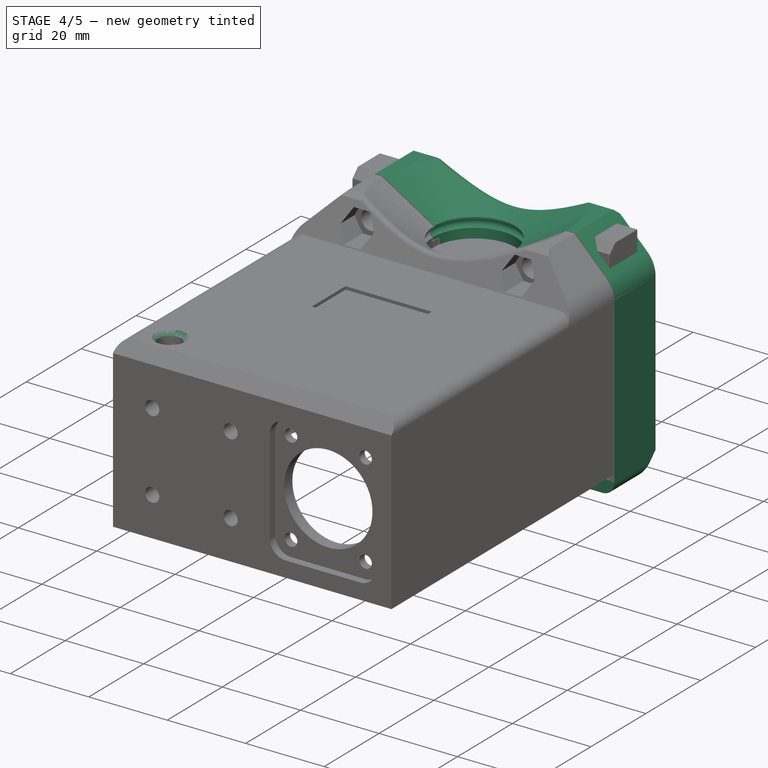
[diagram: stage 4 of 5 — iso view after this stage's code; geometry added in this stage tinted green]
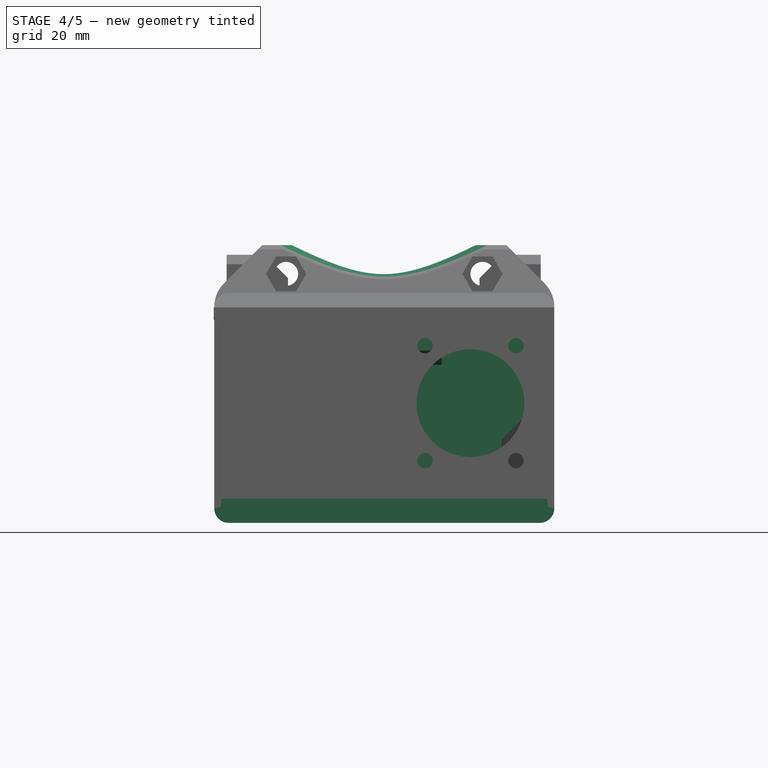
[diagram: stage 4 of 5 — front view after this stage's code; geometry added in this stage tinted green]
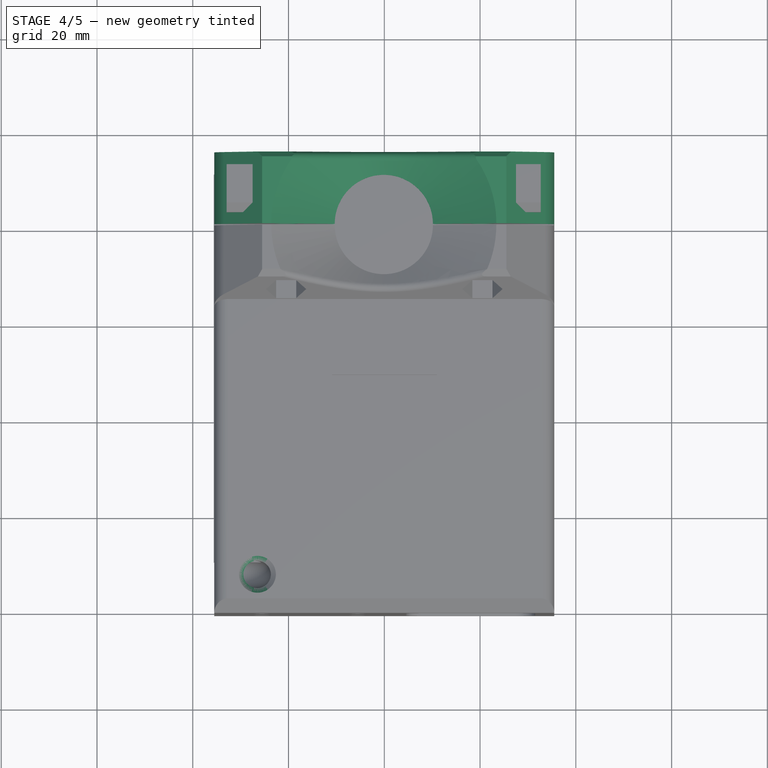
[diagram: stage 4 of 5 — top view after this stage's code; geometry added in this stage tinted green]
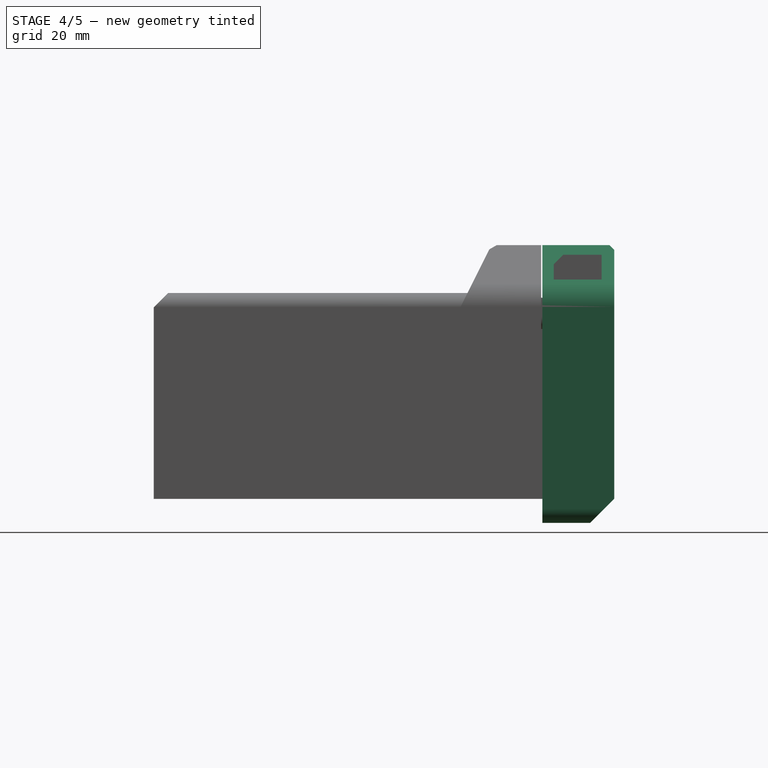
[diagram: stage 4 of 5 — right view after this stage's code; geometry added in this stage tinted green]
FEATURE [Sketcher::SketchObject] Sketch006
  MapMode = 5
  Support = -> [XY_Plane089]
  sketch-geometry (4):
    g0: LineSegment StartX=-35.5 StartY=20.6527 StartZ=0 EndX=35.5 EndY=20.6527 EndZ=0
    g1: LineSegment StartX=35.5 StartY=20.6527 StartZ=0 EndX=35.5 EndY=35.6527 EndZ=0
    g2: LineSegment StartX=35.5 StartY=35.6527 StartZ=0 EndX=-35.5 EndY=35.6527 EndZ=0
    g3: LineSegment StartX=-35.5 StartY=35.6527 StartZ=0 EndX=-35.5 EndY=20.6527 EndZ=0
  constraints (11):
    c: Coincident(g0,g1)
    c: Coincident(g1,g2)
    c: Coincident(g2,g3)
    c: Coincident(g3,g0)
    c: Horizontal(g0)
    c: Horizontal(g2)
    c: Vertical(g1)
    c: Vertical(g3)
    c: Distance(g1) = 15
    c: Distance(g2) = 71
    c: Distance(g0,g-2) = 35.5
FEATURE [PartDesign::Pad] Pad002
  Length = 3
  Length2 = 100
  Profile = -> Sketch006
  Type = 0
FEATURE [Sketcher::SketchObject] Sketch007
  ExternalGeometry = -> [Pad002]
  MapMode = 5
  Placement = pos=(0,0,3) rot=(0,0,1;0rad)
  Support = -> [Pad002]
  sketch-geometry (1):
    g0: Circle CenterX=-0.1 CenterY=20.6527 CenterZ=0 NormalX=0 NormalY=0 NormalZ=1 AngleXU=0 Radius=7.25
  constraints (3):
    c: Diameter(g0) = 14.5
    c: Distance(g0,g-3) = 35.6
    c: Distance(g0,g-4) = 15
FEATURE [PartDesign::Pocket] Pocket004
  BaseFeature = -> Pad002
  Length = 5
  Length2 = 100
  Profile = -> Sketch007
  Type = 0
FEATURE [Sketcher::SketchObject] Sketch008
  ExternalGeometry = -> [Pocket004]
  MapMode = 5
  Placement = pos=(0,0,0) rot=(1,0,0;3.14159rad)
  Support = -> [Pocket004]
  sketch-geometry (4):
    g0: LineSegment StartX=-35.5 StartY=-32.6527 StartZ=0 EndX=35.5 EndY=-32.6527 EndZ=0
    g1: LineSegment StartX=35.5 StartY=-32.6527 StartZ=0 EndX=35.5 EndY=-35.6527 EndZ=0
    g2: LineSegment StartX=35.5 StartY=-35.6527 StartZ=0 EndX=-35.5 EndY=-35.6527 EndZ=0
    g3: LineSegment StartX=-35.5 StartY=-35.6527 StartZ=0 EndX=-35.5 EndY=-32.6527 EndZ=0
  constraints (11):
    c: Coincident(g0,g1)
    c: Coincident(g1,g2)
    c: Coincident(g2,g3)
    c: Coincident(g3,g0)
    c: Horizontal(g0)
    c: Horizontal(g2)
    c: Vertical(g1)
    c: Vertical(g3)
    c: Coincident(g2,g-4)
    c: Distance(g2) = 71
    c: Distance(g3) = 3
FEATURE [PartDesign::Pad] Pad003
  BaseFeature = -> Pocket004
  Length = 40
  Length2 = 100
  Profile = -> Sketch008
  Type = 0
FEATURE [Sketcher::SketchObject] Sketch009
  ExternalGeometry = -> [Pad003]
  MapMode = 5
  Placement = pos=(0,0,0) rot=(1,0,0;3.14159rad)
  Support = -> [Pad003]
  sketch-geometry (8):
    g0: LineSegment StartX=-35.5 StartY=-20.6527 StartZ=0 EndX=-32.5 EndY=-20.6527 EndZ=0
    g1: LineSegment StartX=-32.5 StartY=-20.6527 StartZ=0 EndX=-32.5 EndY=-32.6527 EndZ=0
    g2: LineSegment StartX=-32.5 StartY=-32.6527 StartZ=0 EndX=-35.5 EndY=-32.6527 EndZ=0
    g3: LineSegment StartX=-35.5 StartY=-32.6527 StartZ=0 EndX=-35.5 EndY=-20.6527 EndZ=0
    g4: LineSegment StartX=32.5 StartY=-20.6527 StartZ=0 EndX=35.5 EndY=-20.6527 EndZ=0
    g5: LineSegment StartX=35.5 StartY=-20.6527 StartZ=0 EndX=35.5 EndY=-32.6527 EndZ=0
    g6: LineSegment StartX=35.5 StartY=-32.6527 StartZ=0 EndX=32.5 EndY=-32.6527 EndZ=0
    g7: LineSegment StartX=32.5 StartY=-32.6527 StartZ=0 EndX=32.5 EndY=-20.6527 EndZ=0
  constraints (22):
    c: Coincident(g0,g1)
    c: Coincident(g1,g2)
    c: Coincident(g2,g3)
    c: Coincident(g3,g0)
    c: Horizontal(g0)
    c: Horizontal(g2)
    c: Vertical(g1)
    c: Vertical(g3)
    c: Coincident(g4,g5)
    c: Coincident(g5,g6)
    c: Coincident(g6,g7)
    c: Coincident(g7,g4)
    c: Horizontal(g4)
    c: Horizontal(g6)
    c: Vertical(g5)
    c: Vertical(g7)
    c: Coincident(g4,g-4)
    c: Coincident(g0,g-6)
    c: Distance(g4) = 3
    c: Distance(g0) = 3
    c: Distance(g5) = 12
    c: Distance(g3) = 12
FEATURE [PartDesign::Pad] Pad004
  BaseFeature = -> Pad003
  Length = 40
  Length2 = 100
  Profile = -> Sketch009
  Refine = true
  Type = 0
FEATURE [Sketcher::SketchObject] Sketch014
  ExternalGeometry = -> [Pad004]
  MapMode = 5
  Placement = pos=(0,0,3) rot=(0,0,1;0rad)
  Support = -> [Pad004]
  sketch-geometry (5):
    g0: Circle CenterX=-0.1 CenterY=20.6527 CenterZ=0 NormalX=0 NormalY=0 NormalZ=1 AngleXU=0 Radius=10.25
    g1: LineSegment StartX=-35.5 StartY=35.6527 StartZ=0 EndX=35.5 EndY=35.6527 EndZ=0
    g2: LineSegment StartX=35.5 StartY=35.6527 StartZ=0 EndX=35.5 EndY=5.6527 EndZ=0
    g3: LineSegment StartX=35.5 StartY=5.6527 StartZ=0 EndX=-35.5 EndY=5.6527 EndZ=0
    g4: LineSegment StartX=-35.5 StartY=5.6527 StartZ=0 EndX=-35.5 EndY=35.6527 EndZ=0
  constraints (13):
    c: Coincident(g0,g-3)
    c: Diameter(g0) = 20.5
    c: Coincident(g1,g2)
    c: Coincident(g2,g3)
    c: Coincident(g3,g4)
    c: Coincident(g4,g1)
    c: Horizontal(g1)
    c: Horizontal(g3)
    c: Vertical(g2)
    c: Vertical(g4)
    c: Coincident(g1,g-4)
    c: Distance(g1) = 71
    c: Distance(g2) = 30
FEATURE [PartDesign::Pad] Pad008
  BaseFeature = -> Pad004
  Length = 10
  Length2 = 100
  Profile = -> Sketch014
  Type = 0
FEATURE [Sketcher::SketchObject] Sketch015
  ExternalGeometry = -> [Pad008]
  MapMode = 5
  Placement = pos=(0,0,13) rot=(0,0,1;0rad)
  Support = -> [Pad008]
  sketch-geometry (2):
    g0: Circle CenterX=-0.1 CenterY=20.6527 CenterZ=0 NormalX=0 NormalY=0 NormalZ=1 AngleXU=0 Radius=7.5
    g1: Circle CenterX=-0.1 CenterY=20.6527 CenterZ=0 NormalX=0 NormalY=0 NormalZ=1 AngleXU=0 Radius=13.8876
  constraints (3):
    c: Coincident(g0,g-3)
    c: Coincident(g1,g0)
    c: Diameter(g0) = 15
FEATURE [PartDesign::Pad] Pad009
  BaseFeature = -> Pad008
  Length = 3
  Length2 = 100
  Profile = -> Sketch015
  Refine = true
  Reversed = true
  Type = 0
FEATURE [PartDesign::Chamfer] Chamfer002
  Base = -> Pad009 [Edge40]
  BaseFeature = -> Pad009
  Size = 1
FEATURE [Sketcher::SketchObject] Sketch016
  ExternalGeometry = -> [Chamfer002]
  MapMode = 5
  Placement = pos=(0,0,13) rot=(0,0,1;0rad)
  Support = -> [Chamfer002]
  sketch-geometry (4):
    g0: LineSegment StartX=-35.5 StartY=20.6527 StartZ=0 EndX=35.5 EndY=20.6527 EndZ=0
    g1: LineSegment StartX=35.5 StartY=20.6527 StartZ=0 EndX=35.5 EndY=-6.0542 EndZ=0
    g2: LineSegment StartX=35.5 StartY=-6.0542 StartZ=0 EndX=-35.5 EndY=-6.0542 EndZ=0
    g3: LineSegment StartX=-35.5 StartY=-6.0542 StartZ=0 EndX=-35.5 EndY=20.6527 EndZ=0
  constraints (11):
    c: Coincident(g0,g1)
    c: Coincident(g1,g2)
    c: Coincident(g2,g3)
    c: Coincident(g3,g0)
    c: Horizontal(g0)
    c: Horizontal(g2)
    c: Vertical(g1)
    c: Vertical(g3)
    c: Distance(g0) = 71
    c: Distance(g0,g-5) = 71
    c: Distance(g0,g-4) = 15
FEATURE [PartDesign::Pocket] Pocket006
  BaseFeature = -> Chamfer002
  Length = 10
  Length2 = 100
  Profile = -> Sketch016
  Refine = true
  Type = 0
FEATURE [Sketcher::SketchObject] Sketch017
  ExternalGeometry = -> [Pocket006]
  MapMode = 5
  Placement = pos=(0,35.6527,0) rot=(0,0.707107,0.707107;3.14159rad)
  Support = -> [Pocket006]
  sketch-geometry (2):
    g0: Circle CenterX=-20.5 CenterY=7 CenterZ=0 NormalX=0 NormalY=0 NormalZ=1 AngleXU=0 Radius=2.5
    g1: Circle CenterX=20.5 CenterY=7 CenterZ=0 NormalX=0 NormalY=0 NormalZ=1 AngleXU=0 Radius=2.5
  constraints (6):
    c: Diameter(g1) = 5
    c: Diameter(g0) = 5
    c: Distance(g0,g-4) = 6
    c: Distance(g1,g-4) = 6
    c: Distance(g1,g-3) = 15
    c: Distance(g0,g-5) = 15
FEATURE [PartDesign::Pocket] Pocket007
  BaseFeature = -> Pocket006
  Length = 23
  Length2 = 100
  Profile = -> Sketch017
  Type = 0
FEATURE [Sketcher::SketchObject] Sketch018
  ExternalGeometry = -> [Pocket007]
  MapMode = 5
  Placement = pos=(0,35.6527,0) rot=(0,0.707107,0.707107;3.14159rad)
  Support = -> [Pocket007]
  sketch-geometry (2):
    g0: Circle CenterX=-20.5 CenterY=7 CenterZ=0 NormalX=0 NormalY=0 NormalZ=1 AngleXU=0 Radius=3.75
    g1: Circle CenterX=20.5 CenterY=7 CenterZ=0 NormalX=0 NormalY=0 NormalZ=1 AngleXU=0 Radius=3.75
  constraints (4):
    c: Coincident(g1,g-4)
    c: Coincident(g-3,g0)
    c: Diameter(g1) = 7.5
    c: Diameter(g0) = 7.5
FEATURE [PartDesign::Pocket] Pocket008
  BaseFeature = -> Pocket007
  Length = 3
  Length2 = 100
  Profile = -> Sketch018
  Type = 0
FEATURE [PartDesign::Chamfer] Chamfer003
  Base = -> Pocket008 [Edge29,Edge31]
  BaseFeature = -> Pocket008
  Size = 10
FEATURE [Sketcher::SketchObject] Sketch029
  ExternalGeometry = -> [Chamfer003]
  MapMode = 5
  Placement = pos=(0,0,-40) rot=(1,0,0;3.14159rad)
  Support = -> [Chamfer003]
  sketch-geometry (4):
    g0: LineSegment StartX=-35.5 StartY=-35.6527 StartZ=0 EndX=35.5 EndY=-35.6527 EndZ=0
    g1: LineSegment StartX=35.5 StartY=-35.6527 StartZ=0 EndX=35.5 EndY=-20.6527 EndZ=0
    g2: LineSegment StartX=35.5 StartY=-20.6527 StartZ=0 EndX=-35.5 EndY=-20.6527 EndZ=0
    g3: LineSegment StartX=-35.5 StartY=-20.6527 StartZ=0 EndX=-35.5 EndY=-35.6527 EndZ=0
  constraints (11):
    c: Coincident(g0,g1)
    c: Coincident(g1,g2)
    c: Coincident(g2,g3)
    c: Coincident(g3,g0)
    c: Horizontal(g0)
    c: Horizontal(g2)
    c: Vertical(g1)
    c: Vertical(g3)
    c: Coincident(g0,g-4)
    c: Distance(g0) = 71
    c: Distance(g3) = 15
FEATURE [PartDesign::Pad] Pad015
  BaseFeature = -> Chamfer003
  Length = 5
  Length2 = 100
  Profile = -> Sketch029
  Refine = true
  Type = 0
FEATURE [Sketcher::SketchObject] Sketch033
  ExternalGeometry = -> [Pad015]
  MapMode = 5
  Placement = pos=(0,20.6527,-6e-16) rot=(1,0,0;1.5708rad)
  Support = -> [Pad015]
  sketch-geometry (20):
    g0: LineSegment StartX=-32.5 StartY=-40 StartZ=0 EndX=-34 EndY=-40 EndZ=0
    g1: LineSegment StartX=-34 StartY=-40 StartZ=0 EndX=-34 EndY=1.5 EndZ=0
    g2: LineSegment StartX=-34 StartY=1.5 StartZ=0 EndX=-32.5 EndY=1.5 EndZ=0
    g3: LineSegment StartX=-32.5 StartY=1.5 StartZ=0 EndX=-32.5 EndY=-40 EndZ=0
    g4: LineSegment StartX=32.5 StartY=1.5 StartZ=0 EndX=34 EndY=1.5 EndZ=0
    g5: LineSegment StartX=34 StartY=1.5 StartZ=0 EndX=34 EndY=-40 EndZ=0
    g6: LineSegment StartX=34 StartY=-40 StartZ=0 EndX=32.5 EndY=-40 EndZ=0
    g7: LineSegment StartX=32.5 StartY=-40 StartZ=0 EndX=32.5 EndY=1.5 EndZ=0
    g8: LineSegment StartX=-32.5 StartY=1.5 StartZ=0 EndX=-7.35 EndY=1.5 EndZ=0
    g9: LineSegment StartX=-7.35 StartY=1.5 StartZ=0 EndX=-7.35 EndY=4e-16 EndZ=0
    g10: LineSegment StartX=-7.35 StartY=4e-16 StartZ=0 EndX=-32.5 EndY=4e-16 EndZ=0
    g11: LineSegment StartX=-32.5 StartY=4e-16 StartZ=0 EndX=-32.5 EndY=1.5 EndZ=0
    g12: LineSegment StartX=7.15 StartY=1.5 StartZ=0 EndX=32.5 EndY=1.5 EndZ=0
    g13: LineSegment StartX=32.5 StartY=1.5 StartZ=0 EndX=32.5 EndY=4e-16 EndZ=0
    g14: LineSegment StartX=32.5 StartY=5e-16 StartZ=0 EndX=7.15 EndY=5e-16 EndZ=0
    g15: LineSegment StartX=7.15 StartY=5e-16 StartZ=0 EndX=7.15 EndY=1.5 EndZ=0
    g16: LineSegment StartX=-34 StartY=-40 StartZ=0 EndX=34 EndY=-40 EndZ=0
    g17: LineSegment StartX=34 StartY=-40 StartZ=0 EndX=34 EndY=-41.5 EndZ=0
    g18: LineSegment StartX=34 StartY=-41.5 StartZ=0 EndX=-34 EndY=-41.5 EndZ=0
    g19: LineSegment StartX=-34 StartY=-41.5 StartZ=0 EndX=-34 EndY=-40 EndZ=0
  constraints (55):
    c: Coincident(g0,g1)
    c: Coincident(g1,g2)
    c: Coincident(g2,g3)
    c: Coincident(g3,g0)
    c: Horizontal(g0)
    c: Horizontal(g2)
    c: Vertical(g1)
    c: Vertical(g3)
    c: Coincident(g4,g5)
    c: Coincident(g5,g6)
    c: Coincident(g6,g7)
    c: Coincident(g7,g4)
    c: Horizontal(g4)
    c: Horizontal(g6)
    c: Vertical(g5)
    c: Vertical(g7)
    c: Coincident(g8,g9)
    c: Coincident(g9,g10)
    c: Coincident(g10,g11)
    c: Coincident(g11,g8)
    c: Horizontal(g8)
    c: Horizontal(g10)
    c: Vertical(g9)
    c: Vertical(g11)
    c: Coincident(g12,g13)
    c: Coincident(g13,g14)
    c: Coincident(g14,g15)
    c: Coincident(g15,g12)
    c: Horizontal(g12)
    c: Horizontal(g14)
    c: Vertical(g13)
    c: Vertical(g15)
    c: Coincident(g16,g17)
    c: Coincident(g17,g18)
    c: Coincident(g18,g19)
    c: Coincident(g19,g16)
    c: Horizontal(g16)
    c: Horizontal(g18)
    c: Vertical(g17)
    c: Vertical(g19)
    c: Coincident(g0,g-5)
    c: Coincident(g6,g-8)
    c: Coincident(g16,g5)
    c: Distance(g6) = 1.5
    c: Distance(g17) = 1.5
    c: Distance(g0) = 1.5
    c: Distance(g18) = 68
    c: Coincident(g10,g-3)
    c: Coincident(g13,g-8)
    c: Distance(g15) = 1.5
    c: Distance(g9) = 1.5
    c: Distance(g5) = 41.5
    c: Distance(g1) = 41.5
    c: Distance(g8) = 25.15
    c: Distance(g12) = 25.35
FEATURE [PartDesign::Pocket] Pocket021
  BaseFeature = -> Pad015
  Length = 2
  Length2 = 100
  Profile = -> Sketch033
  Type = 0
FEATURE [PartDesign::Pocket] Pocket022
  BaseFeature = -> Pocket021
  Length = 15
  Length2 = 100
  Profile = -> Pocket021 [Face28]
  Refine = true
  Type = 0
FEATURE [PartDesign::Pocket] Pocket023
  BaseFeature = -> Pocket022
  Length = 0.2
  Length2 = 100
  Profile = -> Pocket022 [Face12]
  Type = 0
FEATURE [PartDesign::Pocket] Pocket024
  BaseFeature = -> Pocket023
  Length = 0.2
  Length2 = 100
  Profile = -> Pocket023 [Face12]
  Type = 0
FEATURE [PartDesign::Pocket] Pocket025
  BaseFeature = -> Pocket024
  Length = 0.2
  Length2 = 100
  Profile = -> Pocket024 [Face19]
  Refine = true
  Type = 0
FEATURE [PartDesign::Pocket] Pocket026
  BaseFeature = -> Pocket025
  Length = 0.2
  Length2 = 100
  Profile = -> Pocket025 [Face30]
  Type = 0
FEATURE [PartDesign::Pocket] Pocket027
  BaseFeature = -> Pocket026
  Length = 0.2
  Length2 = 100
  Profile = -> Pocket026 [Face13]
  Refine = true
  Type = 0
FEATURE [Sketcher::SketchObject] Sketch037
  ExternalGeometry = -> [Pocket027]
  MapMode = 5
  Placement = pos=(-4e-16,35.6527,7e-16) rot=(0,0.707107,0.707107;3.14159rad)
  Support = -> [Pocket027]
  sketch-geometry (2):
    g0: Circle CenterX=-28.5 CenterY=-34 CenterZ=0 NormalX=0 NormalY=0 NormalZ=1 AngleXU=0 Radius=2.5
    g1: Circle CenterX=28.5 CenterY=-34 CenterZ=0 NormalX=0 NormalY=0 NormalZ=1 AngleXU=0 Radius=2.5
  constraints (6):
    c: Diameter(g0) = 5
    c: Distance(g0,g-3) = 7
    c: Distance(g0,g-4) = 11
    c: Distance(g1,g-5) = 7
    c: Distance(g1,g-4) = 11
    c: Diameter(g1) = 5
FEATURE [PartDesign::Pad] Pad019
  BaseFeature = -> Pocket027
  Length = 11
  Length2 = 100
  Profile = -> Pocket027 [Face25]
  Type = 0
FEATURE [PartDesign::Pocket] Pocket029
  BaseFeature = -> Pad019
  Length = 14
  Length2 = 100
  Profile = -> Sketch037
  Refine = true
  Type = 0
FEATURE [Sketcher::SketchObject] Sketch038
  ExternalGeometry = -> [Pocket029]
  MapMode = 5
  Placement = pos=(-4e-16,35.6527,7e-16) rot=(0,0.707107,0.707107;3.14159rad)
  Support = -> [Pocket029]
  sketch-geometry (2):
    g0: Circle CenterX=-28.5 CenterY=-34 CenterZ=0 NormalX=0 NormalY=0 NormalZ=1 AngleXU=0 Radius=3.75
    g1: Circle CenterX=28.5 CenterY=-34 CenterZ=0 NormalX=0 NormalY=0 NormalZ=1 AngleXU=0 Radius=3.75
  constraints (5):
    c: Coincident(g1,g-4)
    c: Coincident(g0,g-3)
    c: Diameter(g1) = 7.5
    c: Diameter(g0) = 7.5
    c: Diameter(g-5) = 7.5
FEATURE [PartDesign::Pocket] Pocket030
  BaseFeature = -> Pocket029
  Length = 3
  Length2 = 100
  Profile = -> Sketch038
  Type = 0
FEATURE [PartDesign::Chamfer] Chamfer005
  Base = -> Pocket030 [Edge35]
  BaseFeature = -> Pocket030
  Size = 5
FEATURE [PartDesign::Chamfer] Chamfer014
  Base = -> Chamfer005 [Edge5]
  BaseFeature = -> Chamfer005
  Size = 1
FEATURE [PartDesign::Pocket] Pocket057
  BaseFeature = -> Chamfer014
  Length = 0.5
  Length2 = 100
  Profile = -> Chamfer014 [Face36]
  Type = 0
FEATURE [PartDesign::Pocket] Pocket058
  BaseFeature = -> Pocket057
  Length = 0.5
  Length2 = 100
  Profile = -> Pocket057 [Face36]
  Refine = true
  Type = 0
FEATURE [PartDesign::Pocket] Pocket059
  BaseFeature = -> Pocket058
  Length = 0.5
  Length2 = 100
  Profile = -> Pocket058 [Face37]
  Refine = true
  Type = 0
FEATURE [PartDesign::Body] Body005  label="ClampBracket"
  Group = -> [Sketch056,Pad037,Sketch057,Pocket052,Sketch058,Pocket053,Sketch059,Pocket054,Fillet002,Pad041,Sketch064,Pocket062]
  Origin = -> Origin092
  Placement = pos=(-0.46,-60.38,1.02) rot=(0,0,1;0rad)
  Tip = -> Pocket062
FEATURE [Sketcher::SketchObject] Sketch065
  ExternalGeometry = -> [Pocket059]
  MapMode = 5
  Placement = pos=(-2e-16,22.6527,-5.9e-15) rot=(1,0,0;1.5708rad)
  Support = -> [Pocket059]
  sketch-geometry (4):
    g0: LineSegment StartX=-19.95 StartY=-29 StartZ=0 EndX=19.95 EndY=-29 EndZ=0
    g1: LineSegment StartX=19.95 StartY=-29 StartZ=0 EndX=19.95 EndY=-38 EndZ=0
    g2: LineSegment StartX=19.95 StartY=-38 StartZ=0 EndX=-19.95 EndY=-38 EndZ=0
    g3: LineSegment StartX=-19.95 StartY=-38 StartZ=0 EndX=-19.95 EndY=-29 EndZ=0
  constraints (12):
    c: Coincident(g0,g1)
    c: Coincident(g1,g2)
    c: Coincident(g2,g3)
    c: Coincident(g3,g0)
    c: Horizontal(g0)
    c: Horizontal(g2)
    c: Vertical(g1)
    c: Vertical(g3)
    c: Distance(g2,g-4) = 3.7
    c: Distance(g3) = 9
    c: Distance(g0,g-6) = 14.25
    c: Distance(g0,g-5) = 14.25
FEATURE [PartDesign::Pocket] Pocket063
  BaseFeature = -> Pocket059
  Length = 10.5
  Length2 = 100
  Profile = -> Sketch065
  Refine = true
  Type = 0
FEATURE [PartDesign::Chamfer] Chamfer021
  Base = -> Pocket063 [Edge102,Edge107]
  BaseFeature = -> Pocket063
  Size = 5
FEATURE [PartDesign::Groove] Groove007
  Angle = 360
  Axis = (0,-2e-16,-1)
  Base = (-0.1,20.6527,14)
  BaseFeature = -> Chamfer021
  Profile = -> Sketch075
  ReferenceAxis = -> Sketch077 [Edge1]
FEATURE [PartDesign::Pocket] Pocket077
  BaseFeature = -> Groove007
  Length = 5
  Length2 = 100
  Profile = -> Groove007 [Face21]
  Type = 0
FEATURE [Sketcher::SketchObject] Sketch081
  ExternalGeometry = -> [Pocket077]
  MapMode = 5
  Placement = pos=(0,20.6527,-6e-16) rot=(1,0,0;1.5708rad)
  Support = -> [Pocket077]
  sketch-geometry (2):
    g0: ArcOfCircle CenterX=10.15 CenterY=3.5 CenterZ=0 NormalX=0 NormalY=0 NormalZ=1 AngleXU=0 Radius=1.1 StartAngle=4.71239 EndAngle=7.85398
    g1: LineSegment StartX=10.15 StartY=4.6 StartZ=0 EndX=10.15 EndY=2.4 EndZ=0
  constraints (9):
    c: Diameter(g0) = 2.2
    c: Coincident(g1,g0)
    c: Coincident(g1,g0)
    c: Distance(g-3) = 2.05992
    c: Distance(g-4) = 1.3
    c: Distance(g0,g-5) = 1.8
    c: PointOnObject(g0,g1)
    c: PointOnObject(g0,g-3)
    c: Tangent(g1,g-3,g0) = 1.5708
FEATURE [PartDesign::Groove] Groove008
  Angle = 360
  Axis = (0,-2e-16,-1)
  Base = (-0.1,20.6527,14)
  BaseFeature = -> Pocket077
  Profile = -> Sketch081
  ReferenceAxis = -> Sketch077 [Edge1]
FEATURE [Sketcher::SketchObject] Sketch083
  ExternalGeometry = -> [Groove008]
  MapMode = 5
  Placement = pos=(0,0,-6e-16) rot=(1,0,0;3.14159rad)
  Support = -> [Groove008]
  sketch-geometry (2):
    g0: ArcOfCircle CenterX=-0.1 CenterY=-20.6527 CenterZ=0 NormalX=0 NormalY=0 NormalZ=1 AngleXU=0 Radius=10.5 StartAngle=3.14159 EndAngle=6.28319
    g1: LineSegment StartX=-10.6 StartY=-20.6527 StartZ=0 EndX=10.4 EndY=-20.6527 EndZ=0
  constraints (6):
    c: Diameter(g0) = 21
    c: PointOnObject(g0,g-5)
    c: PointOnObject(g0,g-4)
    c: Coincident(g0,g-8)
    c: Coincident(g1,g0)
    c: Coincident(g1,g0)
FEATURE [PartDesign::Pocket] Pocket079
  BaseFeature = -> Groove008
  Length = 3
  Length2 = 100
  Profile = -> Sketch083
  Type = 0
FEATURE [Sketcher::SketchObject] Sketch084
  MapMode = 5
  Placement = pos=(0,33.1527,-9e-15) rot=(1,0,0;1.5708rad)
  Support = -> [Pocket079]
  sketch-geometry (4):
    g0: LineSegment StartX=-12 StartY=-7 StartZ=0 EndX=12 EndY=-7 EndZ=0
    g1: LineSegment StartX=12 StartY=-7 StartZ=0 EndX=12 EndY=-12 EndZ=0
    g2: LineSegment StartX=12 StartY=-12 StartZ=0 EndX=-12 EndY=-12 EndZ=0
    g3: LineSegment StartX=-12 StartY=-12 StartZ=0 EndX=-12 EndY=-7 EndZ=0
  constraints (12):
    c: Coincident(g0,g1)
    c: Coincident(g1,g2)
    c: Coincident(g2,g3)
    c: Coincident(g3,g0)
    c: Horizontal(g0)
    c: Horizontal(g2)
    c: Vertical(g1)
    c: Vertical(g3)
    c: Distance(g1) = 5
    c: Distance(g0,g-1) = 7
    c: Distance(g0) = 24
    c: Distance(g1,g-2) = 12
FEATURE [PartDesign::Pad] Pad050
  BaseFeature = -> Pocket079
  Length = 3
  Length2 = 100
  Profile = -> Sketch084
  Refine = true
  Type = 0
FEATURE [PartDesign::Chamfer] Chamfer023
  Base = -> Pad050 [Edge86]
  BaseFeature = -> Pad050
  Size = 2.99
FEATURE [PartDesign::Fillet] Fillet004
  Base = -> Chamfer023 [Edge97]
  BaseFeature = -> Chamfer023
  Radius = 1.25
FEATURE [PartDesign::Body] Body004  label="Back"
  Group = -> [Sketch028,Pad014,Sketch034,Pad017,Sketch035,Pad018,Sketch036,Pocket028,Sketch039,Pad020,Sketch040,Pad021,Chamfer006,Sketch041,Pocket031,Sketch047,Pocket043,Sketch051,Pocket044,Pocket045,Pad035,Pocket046,Chamfer012,Chamfer018,Sketch063,Pad040,Pocket056,Pad042,Pad043,Sketch066,Pocket064,Chamfer022,Fillet006]
  Origin = -> Origin091
  Placement = pos=(0.1,-10.49,-34) rot=(0,0,1;0rad)
  Tip = -> Fillet006
FEATURE [PartDesign::Fillet] Fillet007
  Base = -> Fillet004 [Edge51,Edge70]
  BaseFeature = -> Fillet004
  Radius = 3
FEATURE [PartDesign::Fillet] Fillet009
  Base = -> Fillet007 [Edge28,Edge46]
  BaseFeature = -> Fillet007
  Radius = 7
FEATURE [PartDesign::Chamfer] Chamfer025
  Base = -> Groove009 [Edge477,Edge481]
  BaseFeature = -> Groove009
  Size = 1
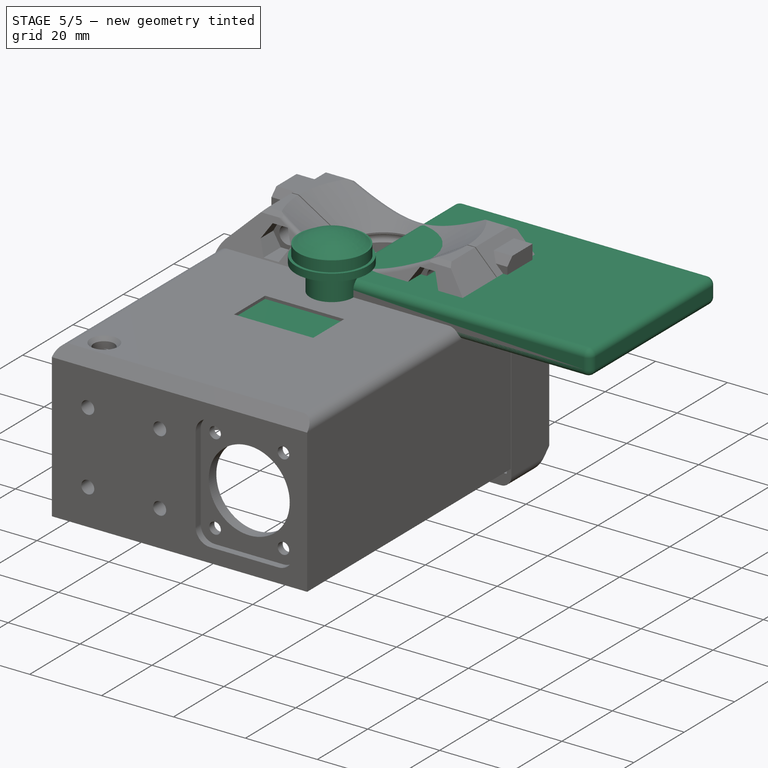
[diagram: stage 5 of 5 — iso view after this stage's code; geometry added in this stage tinted green]
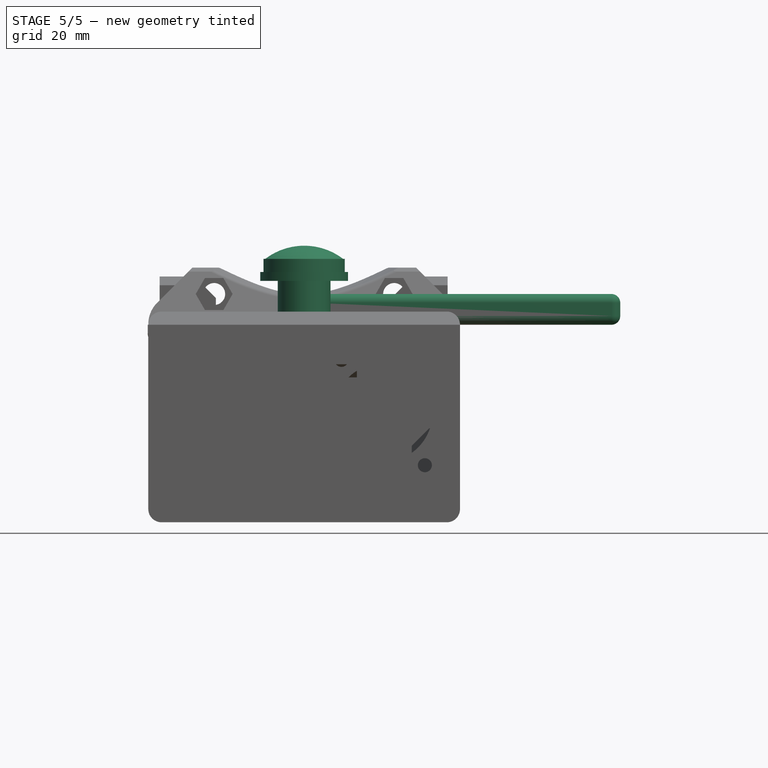
[diagram: stage 5 of 5 — front view after this stage's code; geometry added in this stage tinted green]
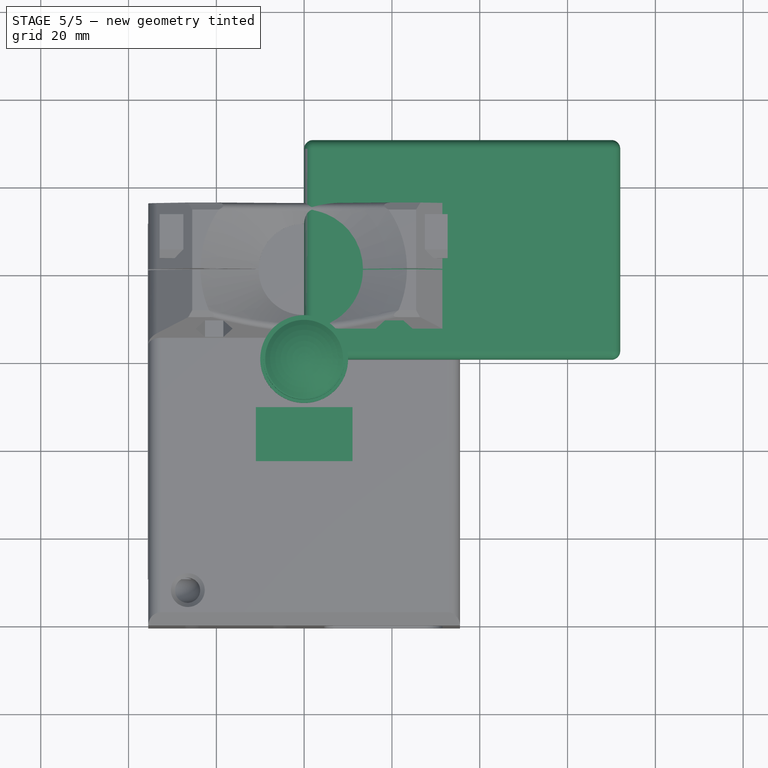
[diagram: stage 5 of 5 — top view after this stage's code; geometry added in this stage tinted green]
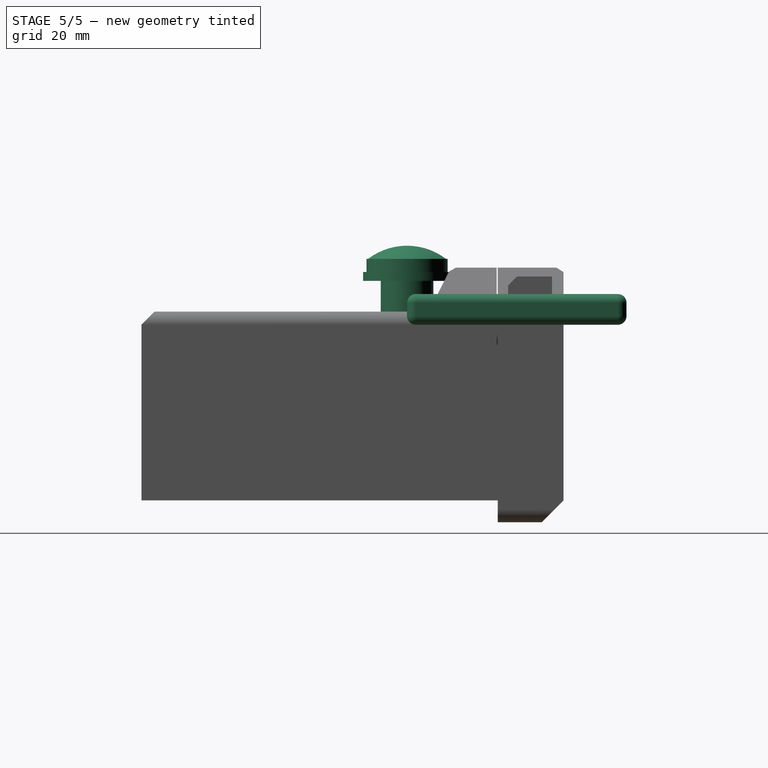
[diagram: stage 5 of 5 — right view after this stage's code; geometry added in this stage tinted green]
FEATURE [Sketcher::SketchObject] Sketch004
  MapMode = 5
  Support = -> [XY_Plane088]
  sketch-geometry (4):
    g0: LineSegment StartX=-15 StartY=-6.4 StartZ=0 EndX=15 EndY=-6.4 EndZ=0
    g1: LineSegment StartX=15 StartY=-6.4 StartZ=0 EndX=15 EndY=-26.4 EndZ=0
    g2: LineSegment StartX=15 StartY=-26.4 StartZ=0 EndX=-15 EndY=-26.4 EndZ=0
    g3: LineSegment StartX=-15 StartY=-26.4 StartZ=0 EndX=-15 EndY=-6.4 EndZ=0
  constraints (12):
    c: Coincident(g0,g1)
    c: Coincident(g1,g2)
    c: Coincident(g2,g3)
    c: Coincident(g3,g0)
    c: Horizontal(g0)
    c: Horizontal(g2)
    c: Vertical(g1)
    c: Vertical(g3)
    c: Distance(g1) = 20
    c: Distance(g0) = 30
    c: Distance(g0,g-2) = 15
    c: Distance(g0,g-1) = 6.4
FEATURE [PartDesign::Pad] Pad001
  Length = 2
  Length2 = 100
  Profile = -> Sketch004
  Type = 0
FEATURE [Sketcher::SketchObject] Sketch010
  MapMode = 5
  Support = -> [XY_Plane090]
  sketch-geometry (4):
    g0: LineSegment StartX=0 StartY=0 StartZ=0 EndX=72 EndY=0 EndZ=0
    g1: LineSegment StartX=72 StartY=0 StartZ=0 EndX=72 EndY=50 EndZ=0
    g2: LineSegment StartX=72 StartY=50 StartZ=0 EndX=0 EndY=50 EndZ=0
    g3: LineSegment StartX=0 StartY=50 StartZ=0 EndX=0 EndY=0 EndZ=0
  constraints (11):
    c: Coincident(g0,g1)
    c: Coincident(g1,g2)
    c: Coincident(g2,g3)
    c: Coincident(g3,g0)
    c: Horizontal(g0)
    c: Horizontal(g2)
    c: Vertical(g1)
    c: Vertical(g3)
    c: Coincident(g0,g-1)
    c: Distance(g2) = 72
    c: Distance(g1) = 50
FEATURE [PartDesign::Pad] Pad005
  Length = 7
  Length2 = 100
  Profile = -> Sketch010
  Type = 0
FEATURE [PartDesign::Fillet] Fillet
  Base = -> Pad005 [Edge2,Edge1,Edge3,Edge4,Edge11,Edge6,Edge7,Edge5,Edge10,Edge12,Edge9,Edge8]
  BaseFeature = -> Pad005
  Radius = 2
FEATURE [Sketcher::SketchObject] Sketch028
  MapMode = 5
  Support = -> [XY_Plane091]
  sketch-geometry (4):
    g0: LineSegment StartX=-35.6212 StartY=31.0333 StartZ=0 EndX=35.3788 EndY=31.0333 EndZ=0
    g1: LineSegment StartX=35.3788 StartY=31.0333 StartZ=0 EndX=35.3788 EndY=-49.9667 EndZ=0
    g2: LineSegment StartX=35.3788 StartY=-49.9667 StartZ=0 EndX=-35.6212 EndY=-49.9667 EndZ=0
    g3: LineSegment StartX=-35.6212 StartY=-49.9667 StartZ=0 EndX=-35.6212 EndY=31.0333 EndZ=0
  constraints (10):
    c: Coincident(g0,g1)
    c: Coincident(g1,g2)
    c: Coincident(g2,g3)
    c: Coincident(g3,g0)
    c: Horizontal(g0)
    c: Horizontal(g2)
    c: Vertical(g1)
    c: Vertical(g3)
    c: Distance(g0) = 71
    c: Distance(g1) = 81
FEATURE [PartDesign::Pad] Pad014
  Length = 5
  Length2 = 100
  Profile = -> Sketch028
  Reversed = true
  Type = 0
FEATURE [Sketcher::SketchObject] Sketch034
  ExternalGeometry = -> [Pad014]
  MapMode = 5
  Placement = pos=(0,31.0333,0) rot=(0,0.707107,0.707107;3.14159rad)
  Support = -> [Pad014]
  sketch-geometry (4):
    g0: LineSegment StartX=-33.8788 StartY=2e-16 StartZ=0 EndX=34.1212 EndY=2e-16 EndZ=0
    g1: LineSegment StartX=34.1212 StartY=2e-16 StartZ=0 EndX=34.1212 EndY=-1.5 EndZ=0
    g2: LineSegment StartX=34.1212 StartY=-1.5 StartZ=0 EndX=-33.8788 EndY=-1.5 EndZ=0
    g3: LineSegment StartX=-33.8788 StartY=-1.5 StartZ=0 EndX=-33.8788 EndY=2e-16 EndZ=0
  constraints (14):
    c: Coincident(g0,g1)
    c: Coincident(g1,g2)
    c: Coincident(g2,g3)
    c: Coincident(g3,g0)
    c: Horizontal(g0)
    c: Horizontal(g2)
    c: Vertical(g1)
    c: Vertical(g3)
    c: Distance(g1) = 1.5
    c: Distance(g0) = 68
    c: Distance(g-3) = 71
    c: Distance(g-4) = 5
    c: Distance(g0,g-4) = 1.5
    c: Distance(g0,g-3) = 5
FEATURE [PartDesign::Pad] Pad017
  BaseFeature = -> Pad014
  Length = 2
  Length2 = 100
  Profile = -> Sketch034
  Refine = true
  Type = 0
FEATURE [Sketcher::SketchObject] Sketch035
  ExternalGeometry = -> [Pad017]
  MapMode = 5
  Support = -> [Pad017]
  sketch-geometry (4):
    g0: LineSegment StartX=-32.4212 StartY=33.0333 StartZ=0 EndX=32.1788 EndY=33.0333 EndZ=0
    g1: LineSegment StartX=32.1788 StartY=33.0333 StartZ=0 EndX=32.1788 EndY=-44.5667 EndZ=0
    g2: LineSegment StartX=32.1788 StartY=-44.5667 StartZ=0 EndX=-32.4212 EndY=-44.5667 EndZ=0
    g3: LineSegment StartX=-32.4212 StartY=-44.5667 StartZ=0 EndX=-32.4212 EndY=33.0333 EndZ=0
  constraints (12):
    c: Coincident(g0,g1)
    c: Coincident(g1,g2)
    c: Coincident(g2,g3)
    c: Coincident(g3,g0)
    c: Horizontal(g0)
    c: Horizontal(g2)
    c: Vertical(g1)
    c: Vertical(g3)
    c: Distance(g0,g-4) = 3.2
    c: Distance(g0,g-5) = 3.2
    c: Distance(g1,g-3) = 5.4
    c: Distance(g3) = 77.6
FEATURE [PartDesign::Pad] Pad018
  BaseFeature = -> Pad017
  Length = 2
  Length2 = 100
  Profile = -> Sketch035
  Refine = true
  Type = 0
FEATURE [Sketcher::SketchObject] Sketch036
  ExternalGeometry = -> [Pad018]
  MapMode = 5
  Placement = pos=(0,0,2) rot=(0,0,1;0rad)
  Support = -> [Pad018]
  sketch-geometry (4):
    g0: LineSegment StartX=-25.1212 StartY=29.5333 StartZ=0 EndX=24.8788 EndY=29.5333 EndZ=0
    g1: LineSegment StartX=24.8788 StartY=29.5333 StartZ=0 EndX=24.8788 EndY=-42.4667 EndZ=0
    g2: LineSegment StartX=24.8788 StartY=-42.4667 StartZ=0 EndX=-25.1212 EndY=-42.4667 EndZ=0
    g3: LineSegment StartX=-25.1212 StartY=-42.4667 StartZ=0 EndX=-25.1212 EndY=29.5333 EndZ=0
  constraints (13):
    c: Coincident(g0,g1)
    c: Coincident(g1,g2)
    c: Coincident(g2,g3)
    c: Coincident(g3,g0)
    c: Horizontal(g0)
    c: Horizontal(g2)
    c: Vertical(g1)
    c: Vertical(g3)
    c: Distance(g1) = 72
    c: Distance(g2) = 50
    c: Distance(g-4) = 71
    c: Distance(g1,g-3) = 10.5
    c: Distance(g1,g-4) = 7.5
FEATURE [PartDesign::Pocket] Pocket028
  BaseFeature = -> Pad018
  Length = 4
  Length2 = 100
  Profile = -> Sketch036
  Type = 0
FEATURE [Sketcher::SketchObject] Sketch039
  ExternalGeometry = -> [Pocket028]
  MapMode = 5
  Placement = pos=(0,0,2) rot=(0,0,1;0rad)
  Support = -> [Pocket028]
  sketch-geometry (8):
    g0: LineSegment StartX=24.8788 StartY=33.0333 StartZ=0 EndX=32.1788 EndY=33.0333 EndZ=0
    g1: LineSegment StartX=32.1788 StartY=33.0333 StartZ=0 EndX=32.1788 EndY=23.0333 EndZ=0
    g2: LineSegment StartX=32.1788 StartY=23.0333 StartZ=0 EndX=24.8788 EndY=23.0333 EndZ=0
    g3: LineSegment StartX=24.8788 StartY=23.0333 StartZ=0 EndX=24.8788 EndY=33.0333 EndZ=0
    g4: LineSegment StartX=-32.4212 StartY=33.0333 StartZ=0 EndX=-25.1212 EndY=33.0333 EndZ=0
    g5: LineSegment StartX=-25.1212 StartY=33.0333 StartZ=0 EndX=-25.1212 EndY=23.0333 EndZ=0
    g6: LineSegment StartX=-25.1212 StartY=23.0333 StartZ=0 EndX=-32.4212 EndY=23.0333 EndZ=0
    g7: LineSegment StartX=-32.4212 StartY=23.0333 StartZ=0 EndX=-32.4212 EndY=33.0333 EndZ=0
  constraints (23):
    c: Coincident(g0,g1)
    c: Coincident(g1,g2)
    c: Coincident(g2,g3)
    c: Coincident(g3,g0)
    c: Horizontal(g0)
    c: Horizontal(g2)
    c: Vertical(g1)
    c: Vertical(g3)
    c: Coincident(g4,g5)
    c: Coincident(g5,g6)
    c: Coincident(g6,g7)
    c: Coincident(g7,g4)
    c: Horizontal(g4)
    c: Horizontal(g6)
    c: Vertical(g5)
    c: Vertical(g7)
    c: Distance(g0) = 7.3
    c: Distance(g1) = 10
    c: Coincident(g0,g-4)
    c: Distance(g4) = 7.3
    c: Distance(g-7) = 77.6
    c: Distance(g5) = 10
    c: Coincident(g4,g-7)
FEATURE [PartDesign::Pad] Pad020
  BaseFeature = -> Pocket028
  Length = 9
  Length2 = 100
  Profile = -> Sketch039
  Refine = true
  Type = 0
FEATURE [Sketcher::SketchObject] Sketch040
  ExternalGeometry = -> [Pad020]
  MapMode = 5
  Placement = pos=(0,0,2) rot=(0,0,1;0rad)
  Support = -> [Pad020]
  sketch-geometry (8):
    g0: LineSegment StartX=-25.1212 StartY=33.0333 StartZ=0 EndX=-20.1212 EndY=33.0333 EndZ=0
    g1: LineSegment StartX=-20.1212 StartY=33.0333 StartZ=0 EndX=-20.1212 EndY=29.5333 EndZ=0
    g2: LineSegment StartX=-20.1212 StartY=29.5333 StartZ=0 EndX=-25.1212 EndY=29.5333 EndZ=0
    g3: LineSegment StartX=-25.1212 StartY=29.5333 StartZ=0 EndX=-25.1212 EndY=33.0333 EndZ=0
    g4: LineSegment StartX=19.8788 StartY=33.0333 StartZ=0 EndX=24.8788 EndY=33.0333 EndZ=0
    g5: LineSegment StartX=24.8788 StartY=33.0333 StartZ=0 EndX=24.8788 EndY=29.5333 EndZ=0
    g6: LineSegment StartX=24.8788 StartY=29.5333 StartZ=0 EndX=19.8788 EndY=29.5333 EndZ=0
    g7: LineSegment StartX=19.8788 StartY=29.5333 StartZ=0 EndX=19.8788 EndY=33.0333 EndZ=0
  constraints (22):
    c: Coincident(g0,g1)
    c: Coincident(g1,g2)
    c: Coincident(g2,g3)
    c: Coincident(g3,g0)
    c: Horizontal(g0)
    c: Horizontal(g2)
    c: Vertical(g1)
    c: Vertical(g3)
    c: Coincident(g4,g5)
    c: Coincident(g5,g6)
    c: Coincident(g6,g7)
    c: Coincident(g7,g4)
    c: Horizontal(g4)
    c: Horizontal(g6)
    c: Vertical(g5)
    c: Vertical(g7)
    c: Distance(g1) = 3.5
    c: Distance(g7) = 3.5
    c: Coincident(g4,g-6)
    c: Coincident(g0,g-5)
    c: Distance(g4) = 5
    c: Distance(g0) = 5
FEATURE [PartDesign::Pad] Pad021
  BaseFeature = -> Pad020
  Length = 9
  Length2 = 100
  Profile = -> Sketch040
  Refine = true
  Type = 0
FEATURE [PartDesign::Chamfer] Chamfer006
  Base = -> Pad021 [Edge68,Edge70]
  BaseFeature = -> Pad021
  Size = 4.9
FEATURE [Sketcher::SketchObject] Sketch041
  ExternalGeometry = -> [Chamfer006]
  MapMode = 5
  Placement = pos=(0,33.0333,1.62e-14) rot=(0,0.707107,0.707107;3.14159rad)
  Support = -> [Chamfer006]
  sketch-geometry (2):
    g0: Circle CenterX=-28.3788 CenterY=6 CenterZ=0 NormalX=0 NormalY=0 NormalZ=1 AngleXU=0 Radius=2.5
    g1: Circle CenterX=28.6212 CenterY=6 CenterZ=0 NormalX=0 NormalY=0 NormalZ=1 AngleXU=0 Radius=2.5
  constraints (6):
    c: Diameter(g1) = 5
    c: Diameter(g0) = 5
    c: Distance(g1,g-3) = 3.8
    c: Distance(g1,g-1) = 6
    c: Distance(g0,g-1) = 6
    c: Distance(g0,g-5) = 3.8
FEATURE [PartDesign::Pocket] Pocket031
  BaseFeature = -> Chamfer006
  Length = 10
  Length2 = 100
  Profile = -> Sketch041
  Type = 0
FEATURE [PartDesign::Pocket] Pocket043
  BaseFeature = -> Pocket031
  Length = 10
  Length2 = 100
  Profile = -> Sketch047
  Type = 0
FEATURE [Sketcher::SketchObject] Sketch051
  ExternalGeometry = -> [Pocket043]
  MapMode = 5
  Placement = pos=(0,0,-5) rot=(1,0,0;3.14159rad)
  Support = -> [Pocket043]
  sketch-geometry (2):
    g0: Circle CenterX=-28.6212 CenterY=30.9667 CenterZ=0 NormalX=0 NormalY=0 NormalZ=1 AngleXU=0 Radius=4.5
    g1: Circle CenterX=28.3788 CenterY=30.9667 CenterZ=0 NormalX=0 NormalY=0 NormalZ=1 AngleXU=0 Radius=4.5
  constraints (4):
    c: Coincident(g1,g-4)
    c: Coincident(g-3,g0)
    c: Diameter(g0) = 9
    c: Diameter(g1) = 9
FEATURE [PartDesign::Pocket] Pocket044
  BaseFeature = -> Pocket043
  Length = 3
  Length2 = 100
  Profile = -> Sketch051
  Type = 0
FEATURE [PartDesign::Pocket] Pocket045
  BaseFeature = -> Pocket044
  Length = 2
  Length2 = 100
  Profile = -> Pocket044 [Face29]
  Type = 0
FEATURE [PartDesign::Pad] Pad035
  BaseFeature = -> Pocket045
  Length = 2
  Length2 = 100
  Profile = -> Pocket045 [Face16]
  Type = 0
FEATURE [PartDesign::Pocket] Pocket046
  BaseFeature = -> Pad035
  Length = 2
  Length2 = 100
  Profile = -> Pad035 [Face1]
  Refine = true
  Type = 0
FEATURE [PartDesign::Chamfer] Chamfer012
  Base = -> Pocket046 [Edge72]
  BaseFeature = -> Pocket046
  Size = 3
FEATURE [PartDesign::Chamfer] Chamfer018
  Base = -> Chamfer012 [Edge96,Edge103]
  BaseFeature = -> Chamfer012
  Size = 2
FEATURE [Sketcher::SketchObject] Sketch056
  MapMode = 5
  Placement = pos=(0,0,0) rot=(1,0,0;1.5708rad)
  Support = -> [XZ_Plane092]
  sketch-geometry (4):
    g0: LineSegment StartX=-30 StartY=0 StartZ=0 EndX=0 EndY=0 EndZ=0
    g1: LineSegment StartX=0 StartY=0 StartZ=0 EndX=0 EndY=-30 EndZ=0
    g2: LineSegment StartX=0 StartY=-30 StartZ=0 EndX=-30 EndY=-30 EndZ=0
    g3: LineSegment StartX=-30 StartY=-30 StartZ=0 EndX=-30 EndY=0 EndZ=0
  constraints (11):
    c: Coincident(g0,g1)
    c: Coincident(g1,g2)
    c: Coincident(g2,g3)
    c: Coincident(g3,g0)
    c: Horizontal(g0)
    c: Horizontal(g2)
    c: Vertical(g1)
    c: Vertical(g3)
    c: Distance(g0) = 30
    c: Distance(g1) = 30
    c: Coincident(g0,g-1)
FEATURE [PartDesign::Pad] Pad037
  Length = 15
  Length2 = 100
  Placement = pos=(0,0,0) rot=(1,0,0;1.5708rad)
  Profile = -> Sketch056
  Type = 0
FEATURE [Sketcher::SketchObject] Sketch057
  ExternalGeometry = -> [Pad037]
  MapMode = 5
  Placement = pos=(0,-15,6.6e-15) rot=(1,0,0;1.5708rad)
  Support = -> [Pad037]
  sketch-geometry (5):
    g0: Circle CenterX=-15 CenterY=-15 CenterZ=0 NormalX=0 NormalY=0 NormalZ=1 AngleXU=0 Radius=3.1
    g1: Circle CenterX=-25 CenterY=-5 CenterZ=0 NormalX=0 NormalY=0 NormalZ=1 AngleXU=0 Radius=2.5
    g2: Circle CenterX=-5 CenterY=-5 CenterZ=0 NormalX=0 NormalY=0 NormalZ=1 AngleXU=0 Radius=2.5
    g3: Circle CenterX=-5 CenterY=-25 CenterZ=0 NormalX=0 NormalY=0 NormalZ=1 AngleXU=0 Radius=2.5
    g4: Circle CenterX=-25 CenterY=-25 CenterZ=0 NormalX=0 NormalY=0 NormalZ=1 AngleXU=0 Radius=2.5
  constraints (16):
    c: Distance(g-3) = 30
    c: Distance(g0,g-3) = 15
    c: Distance(g0,g-1) = 15
    c: Diameter(g0) = 6.2
    c: Diameter(g2) = 5
    c: Diameter(g3) = 5
    c: Diameter(g1) = 5
    c: Diameter(g4) = 5
    c: Distance(g2,g-1) = 5
    c: Distance(g2,g-2) = 5
    c: Distance(g3,g-2) = 5
    c: Distance(g1,g-3) = 5
    c: Distance(g1,g-1) = 5
    c: Distance(g3,g-4) = 5
    c: Distance(g4,g-3) = 5
    c: Distance(g4,g-4) = 5
FEATURE [PartDesign::Pocket] Pocket052
  BaseFeature = -> Pad037
  Length = 15
  Length2 = 100
  Placement = pos=(0,0,0) rot=(1,0,0;1.5708rad)
  Profile = -> Sketch057
  Type = 0
FEATURE [Sketcher::SketchObject] Sketch058
  ExternalGeometry = -> [Pocket052]
  MapMode = 5
  Placement = pos=(0,0,0) rot=(-1,0,0;1.5708rad)
  Support = -> [Pocket052]
  sketch-geometry (7):
    g0: LineSegment StartX=-8.5 StartY=15 StartZ=0 EndX=-11.75 EndY=20.6291 EndZ=0
    g1: LineSegment StartX=-11.75 StartY=20.6291 StartZ=0 EndX=-18.25 EndY=20.6292 EndZ=0
    g2: LineSegment StartX=-18.25 StartY=20.6292 StartZ=0 EndX=-21.5 EndY=15 EndZ=0
    g3: LineSegment StartX=-21.5 StartY=15 StartZ=0 EndX=-18.25 EndY=9.37085 EndZ=0
    g4: LineSegment StartX=-18.25 StartY=9.37085 StartZ=0 EndX=-11.75 EndY=9.37082 EndZ=0
    g5: LineSegment StartX=-11.75 StartY=9.37082 StartZ=0 EndX=-8.5 EndY=15 EndZ=0
    g6: Circle [constr] CenterX=-15 CenterY=15 CenterZ=0 NormalX=0 NormalY=0 NormalZ=1 AngleXU=0 Radius=6.5
  constraints (16):
    c: Coincident(g0,g1)
    c: Coincident(g1,g2)
    c: Coincident(g2,g3)
    c: Coincident(g3,g4)
    c: Coincident(g4,g5)
    c: Coincident(g5,g0)
    c: Equal(g0, g1-g5) x5
    c: PointOnObject(g0,g6)
    c: PointOnObject(g1,g6)
    c: PointOnObject(g2,g6)
    c: PointOnObject(g3,g6)
    c: PointOnObject(g4,g6)
    c: PointOnObject(g5,g6)
    c: Coincident(g6,g-3)
    c: Distance(g1) = 6.5
    c: Distance(g0,g-2) = 8.5
FEATURE [PartDesign::Pocket] Pocket053
  BaseFeature = -> Pocket052
  Length = 9
  Length2 = 100
  Placement = pos=(0,0,0) rot=(1,0,0;1.5708rad)
  Profile = -> Sketch058
  Type = 0
FEATURE [Sketcher::SketchObject] Sketch059
  ExternalGeometry = -> [Pocket053]
  MapMode = 5
  Placement = pos=(0,-15,6.6e-15) rot=(1,0,0;1.5708rad)
  Support = -> [Pocket053]
  sketch-geometry (4):
    g0: Circle CenterX=-15 CenterY=-15 CenterZ=0 NormalX=0 NormalY=0 NormalZ=1 AngleXU=0 Radius=3.75
    g1: Circle CenterX=-5 CenterY=-5 CenterZ=0 NormalX=0 NormalY=0 NormalZ=1 AngleXU=0 Radius=3.75
    g2: Circle CenterX=-5 CenterY=-25 CenterZ=0 NormalX=0 NormalY=0 NormalZ=1 AngleXU=0 Radius=3.75
    g3: Circle CenterX=-25 CenterY=-5 CenterZ=0 NormalX=0 NormalY=0 NormalZ=1 AngleXU=0 Radius=3.75
  constraints (8):
    c: Coincident(g0,g-3)
    c: Coincident(g1,g-4)
    c: Coincident(g2,g-5)
    c: Coincident(g-6,g3)
    c: Diameter(g1) = 7.5
    c: Diameter(g2) = 7.5
    c: Diameter(g3) = 7.5
    c: Diameter(g0) = 7.5
FEATURE [PartDesign::Pocket] Pocket054
  BaseFeature = -> Pocket053
  Length = 5
  Length2 = 100
  Placement = pos=(0,0,0) rot=(1,0,0;1.5708rad)
  Profile = -> Sketch059
  Type = 0
FEATURE [PartDesign::Fillet] Fillet002
  Base = -> Pocket054 [Edge8,Edge2,Edge1,Edge5]
  BaseFeature = -> Pocket054
  Placement = pos=(0,0,0) rot=(1,0,0;1.5708rad)
  Radius = 5
FEATURE [Sketcher::SketchObject] Sketch063
  ExternalGeometry = -> [Chamfer018]
  MapMode = 5
  Placement = pos=(0,0,-2) rot=(0,0,1;0rad)
  Support = -> [Chamfer018]
  sketch-geometry (4):
    g0: LineSegment StartX=-25.1212 StartY=-40.4667 StartZ=0 EndX=24.8788 EndY=-40.4667 EndZ=0
    g1: LineSegment StartX=24.8788 StartY=-40.4667 StartZ=0 EndX=24.8788 EndY=31.5333 EndZ=0
    g2: LineSegment StartX=24.8788 StartY=31.5333 StartZ=0 EndX=-25.1212 EndY=31.5333 EndZ=0
    g3: LineSegment StartX=-25.1212 StartY=31.5333 StartZ=0 EndX=-25.1212 EndY=-40.4667 EndZ=0
  constraints (12):
    c: Coincident(g0,g1)
    c: Coincident(g1,g2)
    c: Coincident(g2,g3)
    c: Coincident(g3,g0)
    c: Horizontal(g0)
    c: Horizontal(g2)
    c: Vertical(g1)
    c: Vertical(g3)
    c: Coincident(g-4,g0)
    c: Distance(g-3) = 50
    c: Distance(g0) = 50
    c: Distance(g2,g0) = 72
FEATURE [PartDesign::Pad] Pad040
  BaseFeature = -> Chamfer018
  Length = 2
  Length2 = 100
  Profile = -> Sketch063
  Refine = true
  Type = 0
FEATURE [PartDesign::Pocket] Pocket056
  BaseFeature = -> Pad040
  Length = 0.5
  Length2 = 100
  Profile = -> Pad040 [Face37]
  Refine = true
  Type = 0
FEATURE [PartDesign::Pad] Pad041
  BaseFeature = -> Fillet002
  Length = 5
  Length2 = 100
  Placement = pos=(0,0,0) rot=(1,0,0;1.5708rad)
  Profile = -> Fillet002 [Face29]
  Refine = true
  Type = 0
FEATURE [PartDesign::Pad] Pad042
  BaseFeature = -> Pocket056
  Length = 0.5
  Length2 = 100
  Profile = -> Pocket056 [Face9]
  Type = 0
FEATURE [PartDesign::Pad] Pad043
  BaseFeature = -> Pad042
  Length = 0.5
  Length2 = 100
  Profile = -> Pad042 [Face19]
  Refine = true
  Type = 0
FEATURE [Sketcher::SketchObject] Sketch064
  ExternalGeometry = -> [Pad041]
  MapMode = 5
  Placement = pos=(0,-15,6.6e-15) rot=(1,0,0;1.5708rad)
  Support = -> [Pad041]
  sketch-geometry (1):
    g0: Circle CenterX=-25 CenterY=-25 CenterZ=0 NormalX=0 NormalY=0 NormalZ=1 AngleXU=0 Radius=3.8
  constraints (2):
    c: Diameter(g0) = 7.6
    c: Coincident(g0,g-3)
FEATURE [PartDesign::Pocket] Pocket062
  BaseFeature = -> Pad041
  Length = 5
  Length2 = 100
  Placement = pos=(0,0,0) rot=(1,0,0;1.5708rad)
  Profile = -> Sketch064
  Type = 0
FEATURE [Sketcher::SketchObject] Sketch066
  ExternalGeometry = -> [Pad043]
  MapMode = 5
  Placement = pos=(0,0,-5) rot=(1,0,0;3.14159rad)
  Support = -> [Pad043]
  sketch-geometry (2):
    g0: ArcOfCircle CenterX=-0.121221 CenterY=33.9998 CenterZ=0 NormalX=0 NormalY=0 NormalZ=1 AngleXU=0 Radius=5 StartAngle=3.14155 EndAngle=6.28323
    g1: LineSegment StartX=-5.12122 StartY=34 StartZ=0 EndX=4.87878 EndY=34 EndZ=0
  constraints (8):
    c: Distance(g-4) = 71
    c: Distance(g0,g-3) = 35.5
    c: Distance(g0,g-1) = 34
    c: Coincident(g1,g0)
    c: Coincident(g1,g0)
    c: Distance(g0,g-1) = 34
    c: Distance(g0,g-1) = 34
    c: Diameter(g0) = 10
FEATURE [PartDesign::Pocket] Pocket064
  BaseFeature = -> Pad043
  Length = 1
  Length2 = 100
  Profile = -> Sketch066
  Type = 0
FEATURE [PartDesign::Chamfer] Chamfer022
  Base = -> Pocket064 [Edge110]
  BaseFeature = -> Pocket064
  Size = 0.999
FEATURE [Sketcher::SketchObject] Sketch070
  MapMode = 5
  Support = -> [XY_Plane093]
  sketch-geometry (1):
    g0: Circle CenterX=0 CenterY=0 CenterZ=0 NormalX=0 NormalY=0 NormalZ=1 AngleXU=0 Radius=6
  constraints (2):
    c: Coincident(g0,g-1)
    c: Diameter(g0) = 12
FEATURE [PartDesign::Pad] Pad046
  Length = 10
  Length2 = 100
  Profile = -> Sketch070
  Type = 0
FEATURE [Sketcher::SketchObject] Sketch071
  MapMode = 5
  Placement = pos=(0,0,10) rot=(0,0,1;0rad)
  Support = -> [Pad046]
  sketch-geometry (1):
    g0: Circle CenterX=0 CenterY=0 CenterZ=0 NormalX=0 NormalY=0 NormalZ=1 AngleXU=0 Radius=10
  constraints (2):
    c: Coincident(g0,g-1)
    c: Diameter(g0) = 20
FEATURE [PartDesign::Pad] Pad047
  BaseFeature = -> Pad046
  Length = 2
  Length2 = 100
  Profile = -> Sketch071
  Type = 0
FEATURE [Sketcher::SketchObject] Sketch072
  MapMode = 5
  Placement = pos=(0,0,12) rot=(0,0,1;0rad)
  Support = -> [Pad047]
  sketch-geometry (1):
    g0: Circle CenterX=0 CenterY=0 CenterZ=0 NormalX=0 NormalY=0 NormalZ=1 AngleXU=0 Radius=9.25
  constraints (2):
    c: Coincident(g0,g-1)
    c: Diameter(g0) = 18.5
FEATURE [PartDesign::Pad] Pad048
  BaseFeature = -> Pad047
  Length = 3
  Length2 = 100
  Profile = -> Sketch072
  Type = 0
FEATURE [Sketcher::SketchObject] Sketch073
  MapMode = 5
  Placement = pos=(0,0,15) rot=(0,0,1;0rad)
  Support = -> [Pad048]
  sketch-geometry (1):
    g0: Circle CenterX=0 CenterY=0 CenterZ=0 NormalX=0 NormalY=0 NormalZ=1 AngleXU=0 Radius=8.875
  constraints (2):
    c: Coincident(g0,g-1)
    c: Diameter(g0) = 17.75
FEATURE [PartDesign::Pocket] Pocket068
  BaseFeature = -> Pad048
  Length = 0.2
  Length2 = 100
  Profile = -> Sketch073
  Type = 0
FEATURE [PartDesign::Pad] Pad049
  BaseFeature = -> Pocket068
  Length = 3.2
  Length2 = 100
  Profile = -> Pocket068 [Face9]
  Type = 0
FEATURE [Sketcher::SketchObject] Sketch074
  MapMode = 5
  Placement = pos=(0,0,0) rot=(1,0,0;1.5708rad)
  Support = -> [XZ_Plane093]
  sketch-geometry (4):
    g0: ArcOfCircle CenterX=0.00932666 CenterY=3.39999 CenterZ=0 NormalX=0 NormalY=0 NormalZ=1 AngleXU=0 Radius=14.6 StartAngle=0.918218 EndAngle=1.57144
    g1: LineSegment StartX=-8e-16 StartY=19 StartZ=0 EndX=8.875 EndY=19 EndZ=0
    g2: LineSegment StartX=8.875 StartY=19 StartZ=0 EndX=8.875 EndY=15 EndZ=0
    g3: LineSegment StartX=-8e-16 StartY=19 StartZ=0 EndX=9e-16 EndY=18 EndZ=0
  constraints (13):
    c: Distance(g0,g-2) = 8.875
    c: Distance(g0,g-1) = 15
    c: Distance(g0,g-1) = 3.4
    c: Coincident(g1,g2)
    c: Coincident(g2,g0)
    c: Distance(g1) = 8.875
    c: Distance(g2) = 4
    c: Distance(g1,g-2) = 8.875
    c: Coincident(g3,g1)
    c: Coincident(g3,g0)
    c: Distance(g0,g-1) = 18
    c: Distance(g0,g2) = 8.875
    c: Distance(g3) = 1
FEATURE [PartDesign::Groove] Groove
  Angle = 360
  Axis = (-3e-16,3e-16,1)
  Base = (0,0,0)
  BaseFeature = -> Pad049
  Profile = -> Sketch074
  ReferenceAxis = -> Z_Axis093
FEATURE [PartDesign::Fillet] Fillet006
  Base = -> Chamfer022 [Edge5,Edge8]
  BaseFeature = -> Chamfer022
  Radius = 3
FEATURE [Sketcher::SketchObject] Sketch090
  ExternalGeometry = -> [Fillet009]
  MapMode = 5
  Placement = pos=(-35.5,0,0) rot=(0.57735,-0.57735,-0.57735;2.0944rad)
  Support = -> [Fillet009]
  sketch-geometry (3):
    g0: LineSegment StartX=-35.6527 StartY=12 StartZ=0 EndX=-34.0367 EndY=13 EndZ=0
    g1: LineSegment StartX=-34.0367 StartY=13 StartZ=0 EndX=-34.6527 EndY=13 EndZ=0
    g2: LineSegment StartX=-34.6527 StartY=13 StartZ=0 EndX=-35.6527 EndY=12 EndZ=0
  constraints (6):
    c: Coincident(g0,g1)
    c: Coincident(g1,g2)
    c: Coincident(g2,g0)
    c: Coincident(g-5,g0)
    c: Coincident(g0,g-3)
    c: Coincident(g1,g-4)
FEATURE [PartDesign::Pocket] Pocket084
  BaseFeature = -> Fillet009
  Length = 500
  Length2 = 100
  Profile = -> Sketch090
  Type = 0
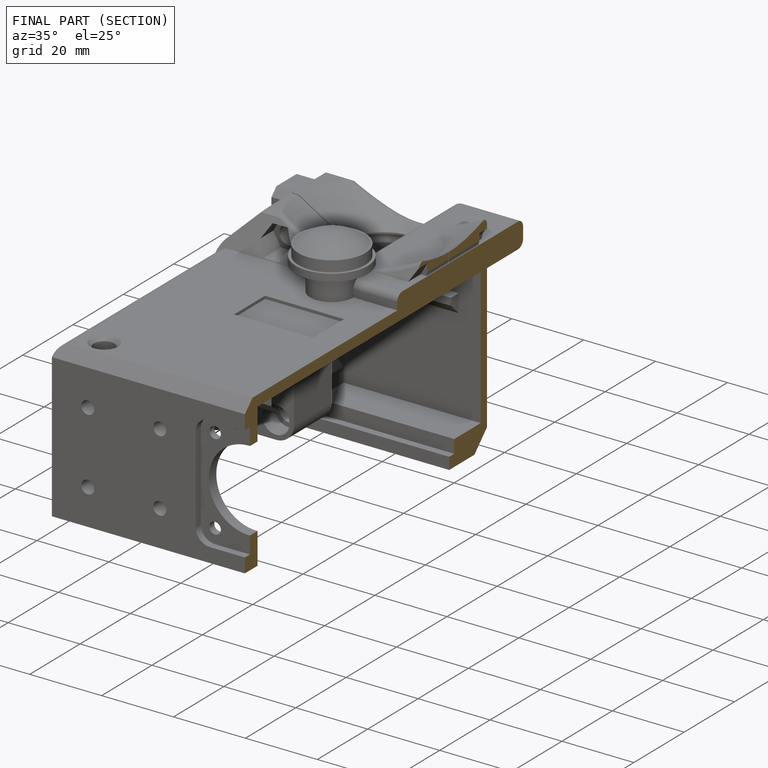
[diagram: finished part — half-section view (interior)]
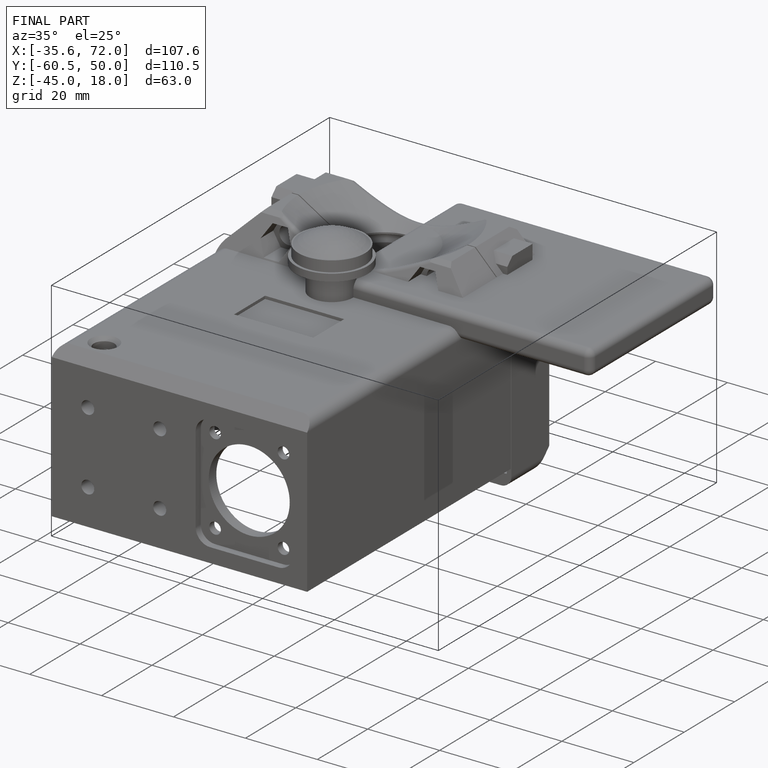
[diagram: finished part — iso view with bounding-box wireframe]
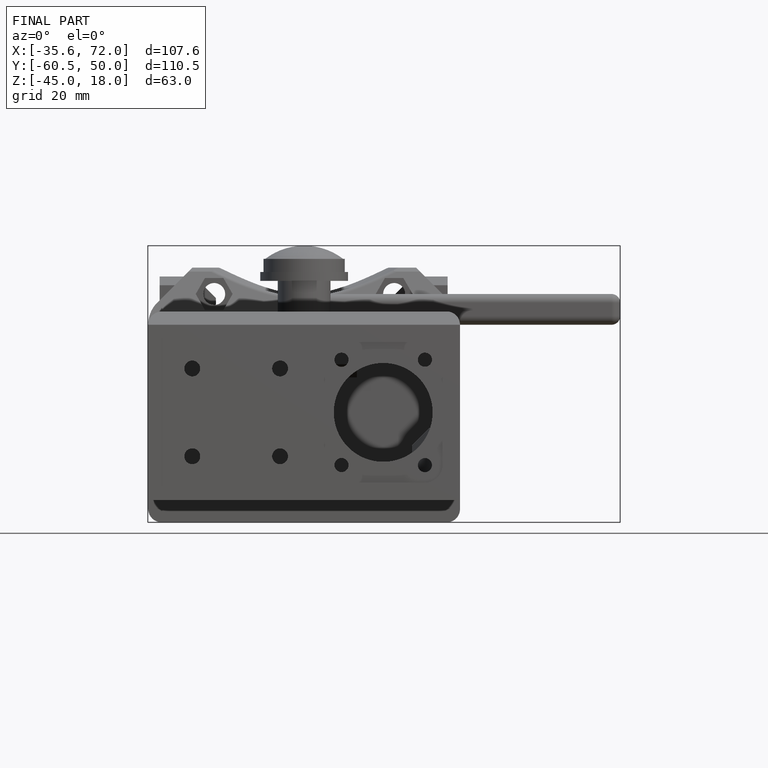
[diagram: finished part — front view with bounding-box wireframe]
